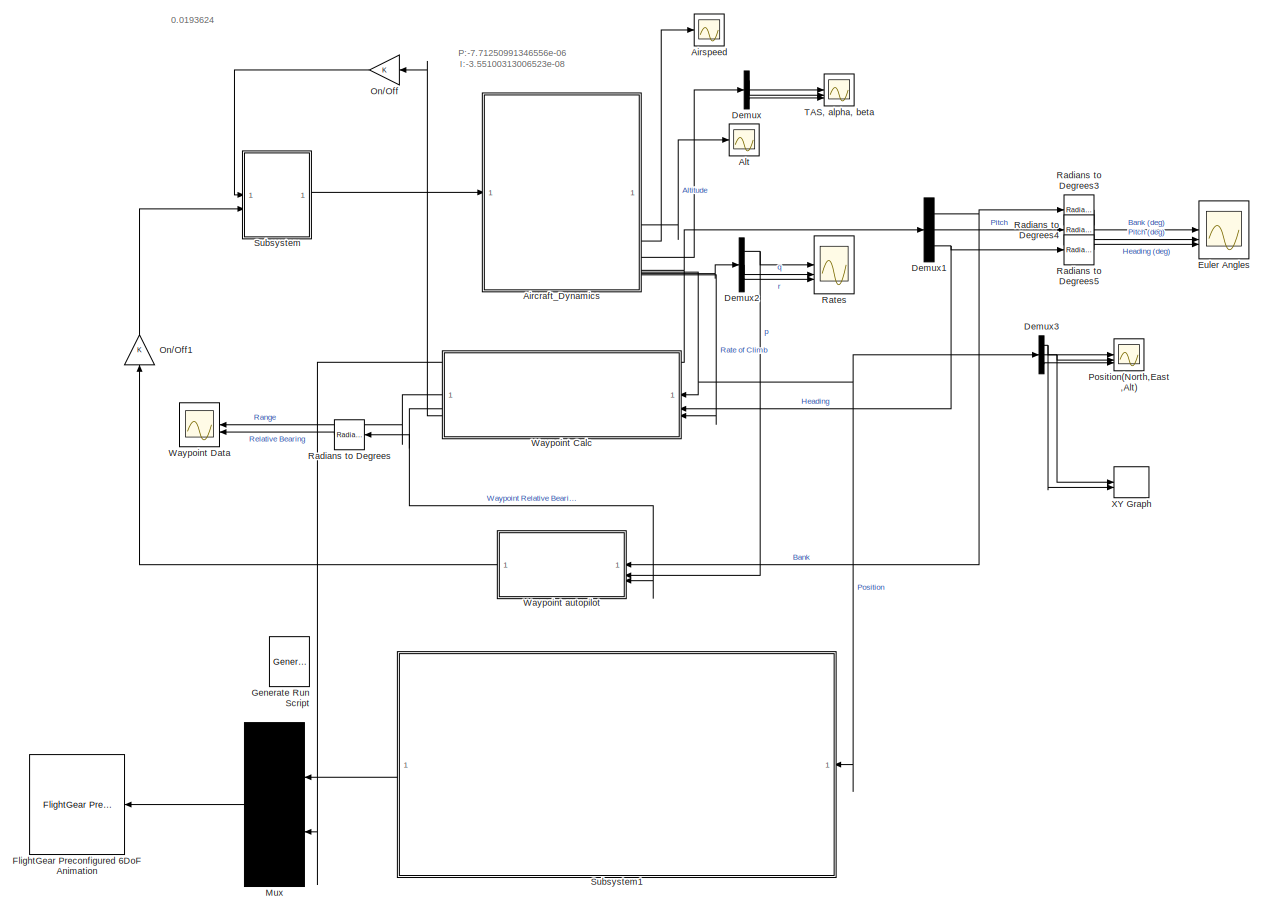
[diagram: root canvas - part 1/1, most of the canvas]
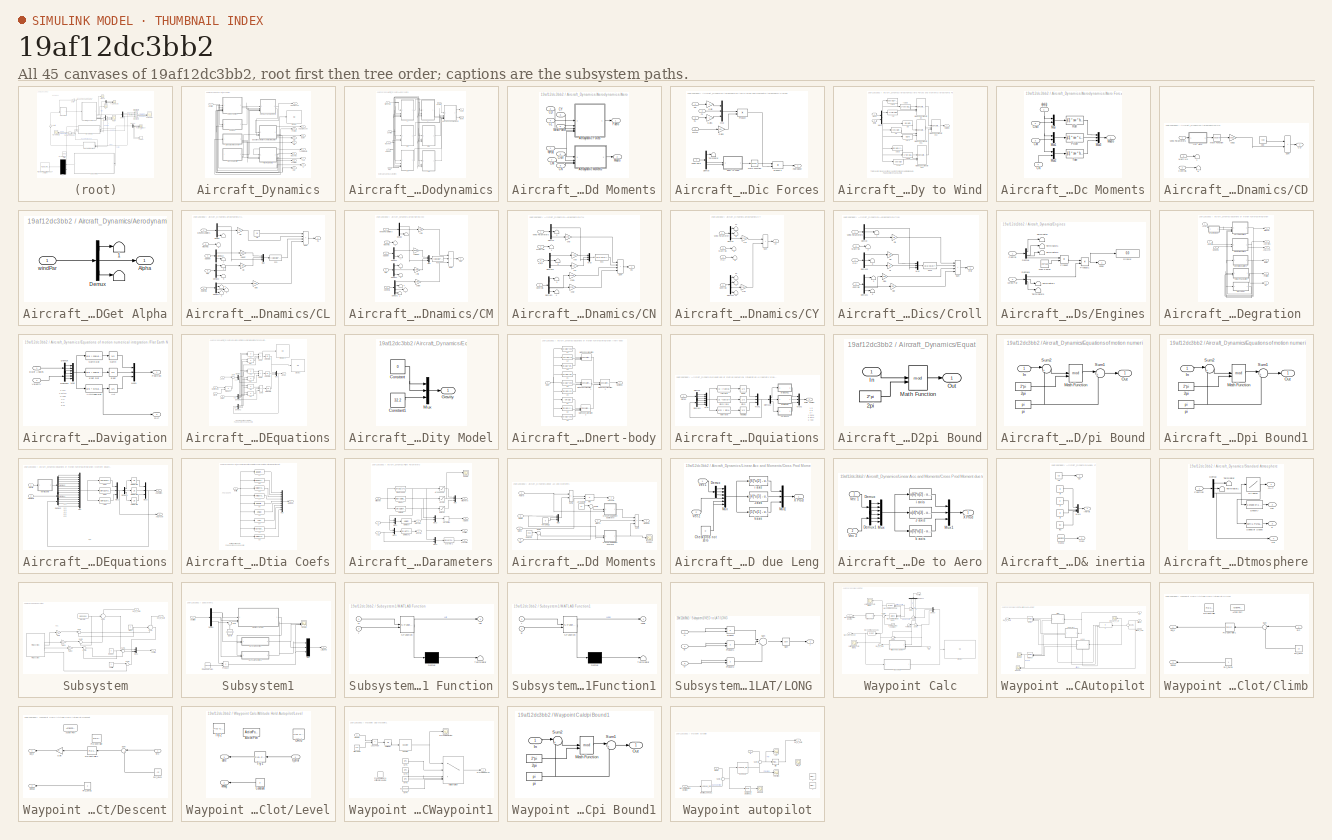
[diagram: thumbnail index - all 45 canvases of the model, root first then tree order]
MODEL slx_19af12dc3bb2
KIND model
CONFIG AbsTol = auto
CONFIG EnableMultiTasking = on
CONFIG FixedStep = .01
CONFIG MaxStep = .004
CONFIG MinStep = auto
CONFIG RelTol = 1e-5
CONFIG SampleTimeConstraint = Unconstrained
CONFIG SolverName = ode45
CONFIG StartTime = 0.0
CONFIG StopTime = 500
BLOCK [SubSystem] Aircraft_Dynamics
BLOCK [SubSystem] Aircraft_Dynamics/Aerodynamics
BLOCK [SubSystem] Aircraft_Dynamics/Aerodynamics/Aero Forces and Moments
BLOCK [SubSystem] Aircraft_Dynamics/Aerodynamics/Aero Forces and Moments/Aerodynamic Forces
BLOCK [SubSystem] Aircraft_Dynamics/Aerodynamics/Aero Forces and Moments/Aerodynamic Forces/Body to Wind
BLOCK [Fcn] Aircraft_Dynamics/Aerodynamics/Aero Forces and Moments/Aerodynamic Forces/Body to Wind/-ca sb
  Expr = -1 * cos(u[1]) * sin(u[2])
BLOCK [Fcn] Aircraft_Dynamics/Aerodynamics/Aero Forces and Moments/Aerodynamic Forces/Body to Wind/-sa
  Expr = -1 * sin(u[1])
BLOCK [Fcn] Aircraft_Dynamics/Aerodynamics/Aero Forces and Moments/Aerodynamic Forces/Body to Wind/-sa sb
  Expr = -1 * sin(u[1])  * sin(u[2])
BLOCK [Inport] Aircraft_Dynamics/Aerodynamics/Aero Forces and Moments/Aerodynamic Forces/Body to Wind/Alpha
BLOCK [Inport] Aircraft_Dynamics/Aerodynamics/Aero Forces and Moments/Aerodynamic Forces/Body to Wind/Beta
  Port = 2
BLOCK [Fcn] Aircraft_Dynamics/Aerodynamics/Aero Forces and Moments/Aerodynamic Forces/Body to Wind/Fcn8
  Expr = cos(u[1])
BLOCK [Concatenate] Aircraft_Dynamics/Aerodynamics/Aero Forces and Moments/Aerodynamic Forces/Body to Wind/Matrix Concatenation
  Mode = Multidimensional array
  NumInputs = 3
BLOCK [Concatenate] Aircraft_Dynamics/Aerodynamics/Aero Forces and Moments/Aerodynamic Forces/Body to Wind/Matrix Concatenation1
  Mode = Multidimensional array
  NumInputs = 3
BLOCK [Concatenate] Aircraft_Dynamics/Aerodynamics/Aero Forces and Moments/Aerodynamic Forces/Body to Wind/Matrix Concatenation2
  ConcatenateDimension = 2
  Mode = Multidimensional array
  NumInputs = 3
BLOCK [Concatenate] Aircraft_Dynamics/Aerodynamics/Aero Forces and Moments/Aerodynamic Forces/Body to Wind/Matrix Concatenation3
  Mode = Multidimensional array
  NumInputs = 3
BLOCK [Mux] Aircraft_Dynamics/Aerodynamics/Aero Forces and Moments/Aerodynamic Forces/Body to Wind/Mux1
  DisplayOption = bar
  Inputs = 2
BLOCK [Outport] Aircraft_Dynamics/Aerodynamics/Aero Forces and Moments/Aerodynamic Forces/Body to Wind/Smatrix
BLOCK [Fcn] Aircraft_Dynamics/Aerodynamics/Aero Forces and Moments/Aerodynamic Forces/Body to Wind/ca cb
  Expr = cos(u[1]) *  cos(u[2])
BLOCK [Fcn] Aircraft_Dynamics/Aerodynamics/Aero Forces and Moments/Aerodynamic Forces/Body to Wind/cb
  Expr = cos(u[2])
BLOCK [Fcn] Aircraft_Dynamics/Aerodynamics/Aero Forces and Moments/Aerodynamic Forces/Body to Wind/sa cb
  Expr = sin(u[1]) * cos(u[2])
BLOCK [Fcn] Aircraft_Dynamics/Aerodynamics/Aero Forces and Moments/Aerodynamic Forces/Body to Wind/sb
  Expr = sin(u[2])
BLOCK [Fcn] Aircraft_Dynamics/Aerodynamics/Aero Forces and Moments/Aerodynamic Forces/Body to Wind/zero
  Expr = u[1] * 0
BLOCK [Inport] Aircraft_Dynamics/Aerodynamics/Aero Forces and Moments/Aerodynamic Forces/CD
BLOCK [Inport] Aircraft_Dynamics/Aerodynamics/Aero Forces and Moments/Aerodynamic Forces/CL
  Port = 3
BLOCK [Inport] Aircraft_Dynamics/Aerodynamics/Aero Forces and Moments/Aerodynamic Forces/CY
  Port = 2
BLOCK [Demux] Aircraft_Dynamics/Aerodynamics/Aero Forces and Moments/Aerodynamic Forces/Demux
  DisplayOption = none
  Outputs = 3
BLOCK [Outport] Aircraft_Dynamics/Aerodynamics/Aero Forces and Moments/Aerodynamic Forces/FaeroBody
BLOCK [Gain] Aircraft_Dynamics/Aerodynamics/Aero Forces and Moments/Aerodynamic Forces/Gain
  Gain = -1
  OutDataTypeStr = Inherit: Same as input
  ParamDataTypeStr = Inherit: Same as input
  SaturateOnIntegerOverflow = on
BLOCK [Gain] Aircraft_Dynamics/Aerodynamics/Aero Forces and Moments/Aerodynamic Forces/Gain1
  Gain = -1
  OutDataTypeStr = Inherit: Same as input
  ParamDataTypeStr = Inherit: Same as input
  SaturateOnIntegerOverflow = on
BLOCK [Gain] Aircraft_Dynamics/Aerodynamics/Aero Forces and Moments/Aerodynamic Forces/Gain2
  Gain = sw
  OutDataTypeStr = Inherit: Same as input
  ParamDataTypeStr = Inherit: Same as input
  SaturateOnIntegerOverflow = on
BLOCK [Math] Aircraft_Dynamics/Aerodynamics/Aero Forces and Moments/Aerodynamic Forces/Math Function
  Operator = transpose
  SignedPower = on
BLOCK [Mux] Aircraft_Dynamics/Aerodynamics/Aero Forces and Moments/Aerodynamic Forces/Mux
  DisplayOption = bar
  Inputs = 3
BLOCK [Product] Aircraft_Dynamics/Aerodynamics/Aero Forces and Moments/Aerodynamic Forces/Product
  OutDataTypeStr = Inherit: Same as first input
  SaturateOnIntegerOverflow = on
BLOCK [Product] Aircraft_Dynamics/Aerodynamics/Aero Forces and Moments/Aerodynamic Forces/Product1
  Multiplication = Matrix(*)
  OutDataTypeStr = Inherit: Same as first input
  SaturateOnIntegerOverflow = on
BLOCK [Terminator] Aircraft_Dynamics/Aerodynamics/Aero Forces and Moments/Aerodynamic Forces/Terminator
BLOCK [Inport] Aircraft_Dynamics/Aerodynamics/Aero Forces and Moments/Aerodynamic Forces/Wind Para
  Port = 4
BLOCK [Inport] Aircraft_Dynamics/Aerodynamics/Aero Forces and Moments/Aerodynamic Forces/dyn(q)
  Port = 5
BLOCK [SubSystem] Aircraft_Dynamics/Aerodynamics/Aero Forces and Moments/Aerodynamic Moments
BLOCK [Inport] Aircraft_Dynamics/Aerodynamics/Aero Forces and Moments/Aerodynamic Moments/CM
  Port = 3
BLOCK [Inport] Aircraft_Dynamics/Aerodynamics/Aero Forces and Moments/Aerodynamic Moments/CN
  NameLocation = right
  Port = 4
BLOCK [Inport] Aircraft_Dynamics/Aerodynamics/Aero Forces and Moments/Aerodynamic Moments/Croll
  Port = 2
BLOCK [Outport] Aircraft_Dynamics/Aerodynamics/Aero Forces and Moments/Aerodynamic Moments/Maero
BLOCK [Mux] Aircraft_Dynamics/Aerodynamics/Aero Forces and Moments/Aerodynamic Moments/Mux
  DisplayOption = bar
  Inputs = 2
BLOCK [Mux] Aircraft_Dynamics/Aerodynamics/Aero Forces and Moments/Aerodynamic Moments/Mux1
  DisplayOption = bar
  Inputs = 2
BLOCK [Mux] Aircraft_Dynamics/Aerodynamics/Aero Forces and Moments/Aerodynamic Moments/Mux2
  DisplayOption = bar
  Inputs = 2
BLOCK [Mux] Aircraft_Dynamics/Aerodynamics/Aero Forces and Moments/Aerodynamic Moments/Mux3
  DisplayOption = bar
  Inputs = 3
BLOCK [Fcn] Aircraft_Dynamics/Aerodynamics/Aero Forces and Moments/Aerodynamic Moments/Pitch
  Expr = u[1] * sw * cbar * u[2]
BLOCK [Fcn] Aircraft_Dynamics/Aerodynamics/Aero Forces and Moments/Aerodynamic Moments/Roll
  Expr = u[1] * sw * b * u[2]
BLOCK [Fcn] Aircraft_Dynamics/Aerodynamics/Aero Forces and Moments/Aerodynamic Moments/Yaw
  Expr = u[1] * sw * b * u[2]
BLOCK [Inport] Aircraft_Dynamics/Aerodynamics/Aero Forces and Moments/Aerodynamic Moments/dyn(q)
  NameLocation = right
BLOCK [Inport] Aircraft_Dynamics/Aerodynamics/Aero Forces and Moments/CD
  Port = 2
BLOCK [Inport] Aircraft_Dynamics/Aerodynamics/Aero Forces and Moments/CL
  Port = 4
BLOCK [Inport] Aircraft_Dynamics/Aerodynamics/Aero Forces and Moments/CM
  Port = 7
BLOCK [Inport] Aircraft_Dynamics/Aerodynamics/Aero Forces and Moments/CN
  Port = 8
BLOCK [Inport] Aircraft_Dynamics/Aerodynamics/Aero Forces and Moments/CY
  Port = 3
BLOCK [Inport] Aircraft_Dynamics/Aerodynamics/Aero Forces and Moments/Croll
  Port = 6
BLOCK [Outport] Aircraft_Dynamics/Aerodynamics/Aero Forces and Moments/Faero
BLOCK [Outport] Aircraft_Dynamics/Aerodynamics/Aero Forces and Moments/Maero
  Port = 2
BLOCK [Inport] Aircraft_Dynamics/Aerodynamics/Aero Forces and Moments/Wind Para
  Port = 5
BLOCK [Inport] Aircraft_Dynamics/Aerodynamics/Aero Forces and Moments/dyn(q)
BLOCK [SubSystem] Aircraft_Dynamics/Aerodynamics/CD
BLOCK [Terminator] Aircraft_Dynamics/Aerodynamics/CD/   1
BLOCK [Terminator] Aircraft_Dynamics/Aerodynamics/CD/   6
BLOCK [Outport] Aircraft_Dynamics/Aerodynamics/CD/CD
BLOCK [Inport] Aircraft_Dynamics/Aerodynamics/CD/Controls
  Port = 2
BLOCK [SubSystem] Aircraft_Dynamics/Aerodynamics/CD/Get Alpha
BLOCK [Terminator] Aircraft_Dynamics/Aerodynamics/CD/Get Alpha/   
BLOCK [Terminator] Aircraft_Dynamics/Aerodynamics/CD/Get Alpha/   1
BLOCK [Outport] Aircraft_Dynamics/Aerodynamics/CD/Get Alpha/Alpha
BLOCK [Demux] Aircraft_Dynamics/Aerodynamics/CD/Get Alpha/Demux
  DisplayOption = none
  Outputs = 3
BLOCK [Inport] Aircraft_Dynamics/Aerodynamics/CD/Get Alpha/windPar
BLOCK [Inport] Aircraft_Dynamics/Aerodynamics/CD/Mach No.
  Port = 3
BLOCK [Math] Aircraft_Dynamics/Aerodynamics/CD/Math Function
  Operator = square
  SignedPower = on
BLOCK [Sum] Aircraft_Dynamics/Aerodynamics/CD/Sum
  IconShape = rectangular
  SaturateOnIntegerOverflow = on
BLOCK [Inport] Aircraft_Dynamics/Aerodynamics/CD/Wind Parameters
BLOCK [Gain] Aircraft_Dynamics/Aerodynamics/CD/cda2
  Gain = cda2
  OutDataTypeStr = Inherit: Same as input
  ParamDataTypeStr = Inherit: Same as input
  SaturateOnIntegerOverflow = on
BLOCK [Constant] Aircraft_Dynamics/Aerodynamics/CD/cdo
  Value = cdo
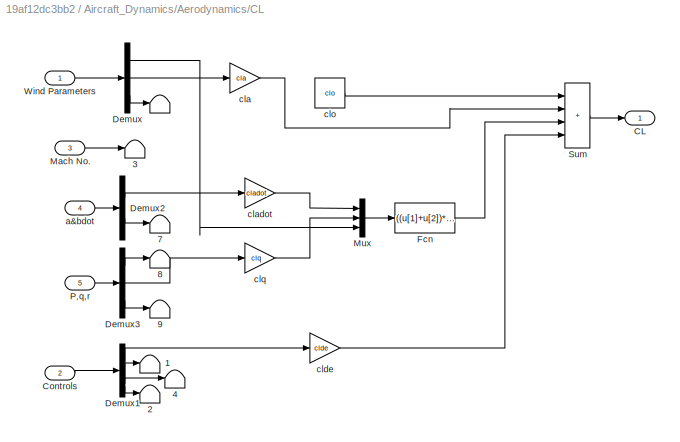
BLOCK [SubSystem] Aircraft_Dynamics/Aerodynamics/CL
BLOCK [Terminator] Aircraft_Dynamics/Aerodynamics/CL/   
BLOCK [Terminator] Aircraft_Dynamics/Aerodynamics/CL/   1
BLOCK [Terminator] Aircraft_Dynamics/Aerodynamics/CL/   2
BLOCK [Terminator] Aircraft_Dynamics/Aerodynamics/CL/   3
BLOCK [Terminator] Aircraft_Dynamics/Aerodynamics/CL/   4
BLOCK [Terminator] Aircraft_Dynamics/Aerodynamics/CL/   7
BLOCK [Terminator] Aircraft_Dynamics/Aerodynamics/CL/   8
BLOCK [Terminator] Aircraft_Dynamics/Aerodynamics/CL/   9
BLOCK [Outport] Aircraft_Dynamics/Aerodynamics/CL/CL
BLOCK [Inport] Aircraft_Dynamics/Aerodynamics/CL/Controls
  Port = 2
BLOCK [Demux] Aircraft_Dynamics/Aerodynamics/CL/Demux
  DisplayOption = none
  Outputs = 3
BLOCK [Demux] Aircraft_Dynamics/Aerodynamics/CL/Demux1
  DisplayOption = none
BLOCK [Demux] Aircraft_Dynamics/Aerodynamics/CL/Demux2
  DisplayOption = none
  Outputs = 2
BLOCK [Demux] Aircraft_Dynamics/Aerodynamics/CL/Demux3
  DisplayOption = none
  Outputs = 3
BLOCK [Fcn] Aircraft_Dynamics/Aerodynamics/CL/Fcn
  Expr = ((u[1]+u[2])*cbar)/(2*u[3])
BLOCK [Inport] Aircraft_Dynamics/Aerodynamics/CL/Mach No.
  Port = 3
BLOCK [Mux] Aircraft_Dynamics/Aerodynamics/CL/Mux
  DisplayOption = bar
  Inputs = 3
BLOCK [Inport] Aircraft_Dynamics/Aerodynamics/CL/P,q,r
  Port = 5
BLOCK [Sum] Aircraft_Dynamics/Aerodynamics/CL/Sum
  IconShape = rectangular
  Inputs = ++++
  SaturateOnIntegerOverflow = on
BLOCK [Inport] Aircraft_Dynamics/Aerodynamics/CL/Wind Parameters
BLOCK [Inport] Aircraft_Dynamics/Aerodynamics/CL/a&bdot
  Port = 4
BLOCK [Gain] Aircraft_Dynamics/Aerodynamics/CL/cla
  Gain = cla
  OutDataTypeStr = Inherit: Same as input
  ParamDataTypeStr = Inherit: Same as input
  SaturateOnIntegerOverflow = on
BLOCK [Gain] Aircraft_Dynamics/Aerodynamics/CL/cladot
  Gain = cladot
  OutDataTypeStr = Inherit: Same as input
  ParamDataTypeStr = Inherit: Same as input
  SaturateOnIntegerOverflow = on
BLOCK [Gain] Aircraft_Dynamics/Aerodynamics/CL/clde
  Gain = clde
  OutDataTypeStr = Inherit: Same as input
  ParamDataTypeStr = Inherit: Same as input
  SaturateOnIntegerOverflow = on
BLOCK [Constant] Aircraft_Dynamics/Aerodynamics/CL/clo
  Value = clo
BLOCK [Gain] Aircraft_Dynamics/Aerodynamics/CL/clq
  Gain = clq
  OutDataTypeStr = Inherit: Same as input
  ParamDataTypeStr = Inherit: Same as input
  SaturateOnIntegerOverflow = on
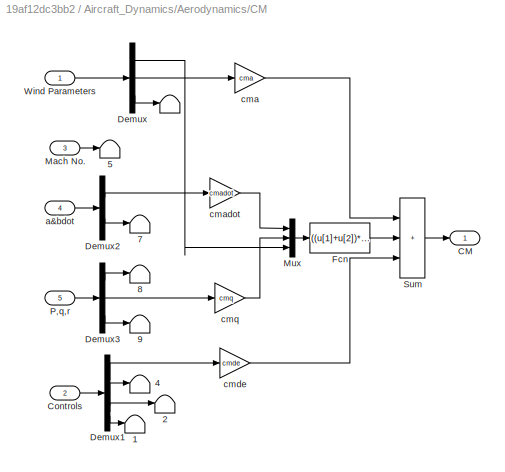
BLOCK [SubSystem] Aircraft_Dynamics/Aerodynamics/CM
BLOCK [Terminator] Aircraft_Dynamics/Aerodynamics/CM/   
BLOCK [Terminator] Aircraft_Dynamics/Aerodynamics/CM/   1
BLOCK [Terminator] Aircraft_Dynamics/Aerodynamics/CM/   2
BLOCK [Terminator] Aircraft_Dynamics/Aerodynamics/CM/   4
BLOCK [Terminator] Aircraft_Dynamics/Aerodynamics/CM/   5
BLOCK [Terminator] Aircraft_Dynamics/Aerodynamics/CM/   7
BLOCK [Terminator] Aircraft_Dynamics/Aerodynamics/CM/   8
BLOCK [Terminator] Aircraft_Dynamics/Aerodynamics/CM/   9
BLOCK [Outport] Aircraft_Dynamics/Aerodynamics/CM/CM
BLOCK [Inport] Aircraft_Dynamics/Aerodynamics/CM/Controls
  Port = 2
BLOCK [Demux] Aircraft_Dynamics/Aerodynamics/CM/Demux
  DisplayOption = none
  Outputs = 3
BLOCK [Demux] Aircraft_Dynamics/Aerodynamics/CM/Demux1
  DisplayOption = none
BLOCK [Demux] Aircraft_Dynamics/Aerodynamics/CM/Demux2
  DisplayOption = none
  Outputs = 2
BLOCK [Demux] Aircraft_Dynamics/Aerodynamics/CM/Demux3
  DisplayOption = none
  Outputs = 3
BLOCK [Fcn] Aircraft_Dynamics/Aerodynamics/CM/Fcn
  Expr = ((u[1]+u[2])*cbar)/(2*u[3])
BLOCK [Inport] Aircraft_Dynamics/Aerodynamics/CM/Mach No.
  Port = 3
BLOCK [Mux] Aircraft_Dynamics/Aerodynamics/CM/Mux
  DisplayOption = bar
  Inputs = 3
BLOCK [Inport] Aircraft_Dynamics/Aerodynamics/CM/P,q,r
  Port = 5
BLOCK [Sum] Aircraft_Dynamics/Aerodynamics/CM/Sum
  IconShape = rectangular
  Inputs = +++
  SaturateOnIntegerOverflow = on
BLOCK [Inport] Aircraft_Dynamics/Aerodynamics/CM/Wind Parameters
BLOCK [Inport] Aircraft_Dynamics/Aerodynamics/CM/a&bdot
  Port = 4
BLOCK [Gain] Aircraft_Dynamics/Aerodynamics/CM/cma
  Gain = cma
  OutDataTypeStr = Inherit: Same as input
  ParamDataTypeStr = Inherit: Same as input
  SaturateOnIntegerOverflow = on
BLOCK [Gain] Aircraft_Dynamics/Aerodynamics/CM/cmadot
  Gain = cmadot
  OutDataTypeStr = Inherit: Same as input
  ParamDataTypeStr = Inherit: Same as input
  SaturateOnIntegerOverflow = on
BLOCK [Gain] Aircraft_Dynamics/Aerodynamics/CM/cmde
  Gain = cmde
  OutDataTypeStr = Inherit: Same as input
  ParamDataTypeStr = Inherit: Same as input
  SaturateOnIntegerOverflow = on
BLOCK [Gain] Aircraft_Dynamics/Aerodynamics/CM/cmq
  Gain = cmq
  OutDataTypeStr = Inherit: Same as input
  ParamDataTypeStr = Inherit: Same as input
  SaturateOnIntegerOverflow = on
BLOCK [SubSystem] Aircraft_Dynamics/Aerodynamics/CN
BLOCK [Terminator] Aircraft_Dynamics/Aerodynamics/CN/   1
BLOCK [Terminator] Aircraft_Dynamics/Aerodynamics/CN/   2
BLOCK [Terminator] Aircraft_Dynamics/Aerodynamics/CN/   3
BLOCK [Terminator] Aircraft_Dynamics/Aerodynamics/CN/   4
BLOCK [Terminator] Aircraft_Dynamics/Aerodynamics/CN/   8
BLOCK [Outport] Aircraft_Dynamics/Aerodynamics/CN/CN
BLOCK [Inport] Aircraft_Dynamics/Aerodynamics/CN/Controls
  Port = 2
BLOCK [Demux] Aircraft_Dynamics/Aerodynamics/CN/Demux
  DisplayOption = none
  Outputs = 3
BLOCK [Demux] Aircraft_Dynamics/Aerodynamics/CN/Demux1
  DisplayOption = none
BLOCK [Demux] Aircraft_Dynamics/Aerodynamics/CN/Demux3
  DisplayOption = none
  Outputs = 3
BLOCK [Fcn] Aircraft_Dynamics/Aerodynamics/CN/Fcn
  Expr = ((u[1]+u[2])*b)/(2*u[3])
BLOCK [Inport] Aircraft_Dynamics/Aerodynamics/CN/Mach No.
  Port = 3
BLOCK [Mux] Aircraft_Dynamics/Aerodynamics/CN/Mux
  DisplayOption = bar
  Inputs = 3
BLOCK [Inport] Aircraft_Dynamics/Aerodynamics/CN/P,q,r
  Port = 4
BLOCK [Sum] Aircraft_Dynamics/Aerodynamics/CN/Sum
  IconShape = rectangular
  Inputs = ++++
  SaturateOnIntegerOverflow = on
BLOCK [Inport] Aircraft_Dynamics/Aerodynamics/CN/Wind Parameters
BLOCK [Gain] Aircraft_Dynamics/Aerodynamics/CN/cnb
  Gain = cnb
  OutDataTypeStr = Inherit: Same as input
  ParamDataTypeStr = Inherit: Same as input
  SaturateOnIntegerOverflow = on
BLOCK [Gain] Aircraft_Dynamics/Aerodynamics/CN/cnda
  Gain = cnda
  OutDataTypeStr = Inherit: Same as input
  ParamDataTypeStr = Inherit: Same as input
  SaturateOnIntegerOverflow = on
BLOCK [Gain] Aircraft_Dynamics/Aerodynamics/CN/cndr
  Gain = cndr
  OutDataTypeStr = Inherit: Same as input
  ParamDataTypeStr = Inherit: Same as input
  SaturateOnIntegerOverflow = on
BLOCK [Gain] Aircraft_Dynamics/Aerodynamics/CN/cnp
  Gain = cnp
  OutDataTypeStr = Inherit: Same as input
  ParamDataTypeStr = Inherit: Same as input
  SaturateOnIntegerOverflow = on
BLOCK [Gain] Aircraft_Dynamics/Aerodynamics/CN/cnr
  Gain = cnr
  OutDataTypeStr = Inherit: Same as input
  ParamDataTypeStr = Inherit: Same as input
  SaturateOnIntegerOverflow = on
BLOCK [SubSystem] Aircraft_Dynamics/Aerodynamics/CY
BLOCK [Terminator] Aircraft_Dynamics/Aerodynamics/CY/   10
BLOCK [Terminator] Aircraft_Dynamics/Aerodynamics/CY/   11
BLOCK [Terminator] Aircraft_Dynamics/Aerodynamics/CY/   12
BLOCK [Terminator] Aircraft_Dynamics/Aerodynamics/CY/   2
BLOCK [Terminator] Aircraft_Dynamics/Aerodynamics/CY/   7
BLOCK [Terminator] Aircraft_Dynamics/Aerodynamics/CY/   8
BLOCK [Terminator] Aircraft_Dynamics/Aerodynamics/CY/   9
BLOCK [Outport] Aircraft_Dynamics/Aerodynamics/CY/CY
BLOCK [Inport] Aircraft_Dynamics/Aerodynamics/CY/Controls
  Port = 2
BLOCK [Demux] Aircraft_Dynamics/Aerodynamics/CY/Demux
  DisplayOption = none
  Outputs = 3
BLOCK [Demux] Aircraft_Dynamics/Aerodynamics/CY/Demux1
  DisplayOption = none
BLOCK [Inport] Aircraft_Dynamics/Aerodynamics/CY/Mach No.
  Port = 3
BLOCK [Inport] Aircraft_Dynamics/Aerodynamics/CY/P,q,r
  Port = 4
BLOCK [Sum] Aircraft_Dynamics/Aerodynamics/CY/Sum
  IconShape = rectangular
  SaturateOnIntegerOverflow = on
BLOCK [Inport] Aircraft_Dynamics/Aerodynamics/CY/Wind Parameters
BLOCK [Gain] Aircraft_Dynamics/Aerodynamics/CY/cyb
  Gain = cyb
  OutDataTypeStr = Inherit: Same as input
  ParamDataTypeStr = Inherit: Same as input
  SaturateOnIntegerOverflow = on
BLOCK [Gain] Aircraft_Dynamics/Aerodynamics/CY/cydr
  Gain = cydr
  OutDataTypeStr = Inherit: Same as input
  ParamDataTypeStr = Inherit: Same as input
  SaturateOnIntegerOverflow = on
BLOCK [Inport] Aircraft_Dynamics/Aerodynamics/Controls
  NameLocation = top
  Port = 3
BLOCK [SubSystem] Aircraft_Dynamics/Aerodynamics/Croll
BLOCK [Terminator] Aircraft_Dynamics/Aerodynamics/Croll/   1
BLOCK [Terminator] Aircraft_Dynamics/Aerodynamics/Croll/   2
BLOCK [Terminator] Aircraft_Dynamics/Aerodynamics/Croll/   3
BLOCK [Terminator] Aircraft_Dynamics/Aerodynamics/Croll/   6
BLOCK [Terminator] Aircraft_Dynamics/Aerodynamics/Croll/   8
BLOCK [Inport] Aircraft_Dynamics/Aerodynamics/Croll/Controls
  Port = 2
BLOCK [Outport] Aircraft_Dynamics/Aerodynamics/Croll/Croll
BLOCK [Demux] Aircraft_Dynamics/Aerodynamics/Croll/Demux
  DisplayOption = none
  Outputs = 3
BLOCK [Demux] Aircraft_Dynamics/Aerodynamics/Croll/Demux1
  DisplayOption = none
BLOCK [Demux] Aircraft_Dynamics/Aerodynamics/Croll/Demux3
  DisplayOption = none
  Outputs = 3
BLOCK [Fcn] Aircraft_Dynamics/Aerodynamics/Croll/Fcn1
  Expr = ((u[1]+u[2])*b)/(2*u[3])
BLOCK [Inport] Aircraft_Dynamics/Aerodynamics/Croll/Mach No.
  Port = 3
BLOCK [Mux] Aircraft_Dynamics/Aerodynamics/Croll/Mux
  DisplayOption = bar
  Inputs = 3
BLOCK [Inport] Aircraft_Dynamics/Aerodynamics/Croll/P,q,r
  Port = 4
BLOCK [Sum] Aircraft_Dynamics/Aerodynamics/Croll/Sum
  IconShape = rectangular
  Inputs = ++++
  SaturateOnIntegerOverflow = on
BLOCK [Inport] Aircraft_Dynamics/Aerodynamics/Croll/Wind Parameters
BLOCK [Gain] Aircraft_Dynamics/Aerodynamics/Croll/clb
  Gain = clb
  OutDataTypeStr = Inherit: Same as input
  ParamDataTypeStr = Inherit: Same as input
  SaturateOnIntegerOverflow = on
BLOCK [Gain] Aircraft_Dynamics/Aerodynamics/Croll/clda
  Gain = clda
  OutDataTypeStr = Inherit: Same as input
  ParamDataTypeStr = Inherit: Same as input
  SaturateOnIntegerOverflow = on
BLOCK [Gain] Aircraft_Dynamics/Aerodynamics/Croll/cldr
  Gain = cldr
  OutDataTypeStr = Inherit: Same as input
  ParamDataTypeStr = Inherit: Same as input
  SaturateOnIntegerOverflow = on
BLOCK [Gain] Aircraft_Dynamics/Aerodynamics/Croll/clp
  Gain = clp
  OutDataTypeStr = Inherit: Same as input
  ParamDataTypeStr = Inherit: Same as input
  SaturateOnIntegerOverflow = on
BLOCK [Gain] Aircraft_Dynamics/Aerodynamics/Croll/clr
  Gain = clr
  OutDataTypeStr = Inherit: Same as input
  ParamDataTypeStr = Inherit: Same as input
  SaturateOnIntegerOverflow = on
BLOCK [Outport] Aircraft_Dynamics/Aerodynamics/Faero
BLOCK [Inport] Aircraft_Dynamics/Aerodynamics/Mach No.
  Port = 4
BLOCK [Outport] Aircraft_Dynamics/Aerodynamics/Maero
  Port = 2
BLOCK [Inport] Aircraft_Dynamics/Aerodynamics/Wind Para
BLOCK [Inport] Aircraft_Dynamics/Aerodynamics/a&bdot
  Port = 5
BLOCK [Inport] Aircraft_Dynamics/Aerodynamics/dyn(q)
  Port = 2
BLOCK [Inport] Aircraft_Dynamics/Aerodynamics/p,q,r
  Port = 6
BLOCK [Outport] Aircraft_Dynamics/Angular Accel
BLOCK [Outport] Aircraft_Dynamics/CAS (Kts)
  Port = 8
BLOCK [Inport] Aircraft_Dynamics/Control
BLOCK [Display] Aircraft_Dynamics/Display
  Decimation = 1
BLOCK [SubSystem] Aircraft_Dynamics/Engines
BLOCK [Inport] Aircraft_Dynamics/Engines/Control
BLOCK [Demux] Aircraft_Dynamics/Engines/Demux
BLOCK [Demux] Aircraft_Dynamics/Engines/Demux1
  Outputs = 3
BLOCK [Display] Aircraft_Dynamics/Engines/Display
  Decimation = 1
BLOCK [Outport] Aircraft_Dynamics/Engines/Feng
BLOCK [Constant] Aircraft_Dynamics/Engines/Max Power
  Value = 200*550
BLOCK [Product] Aircraft_Dynamics/Engines/Product
  RndMeth = Zero
BLOCK [Product] Aircraft_Dynamics/Engines/Product1
  Inputs = */
  RndMeth = Zero
BLOCK [Terminator] Aircraft_Dynamics/Engines/Terminator
BLOCK [Terminator] Aircraft_Dynamics/Engines/Terminator1
BLOCK [Terminator] Aircraft_Dynamics/Engines/Terminator2
BLOCK [Terminator] Aircraft_Dynamics/Engines/Terminator3
BLOCK [Terminator] Aircraft_Dynamics/Engines/Terminator4
BLOCK [Inport] Aircraft_Dynamics/Engines/Wind Par
  Port = 2
BLOCK [SubSystem] Aircraft_Dynamics/Equations of motion numerical integration 
BLOCK [Inport] Aircraft_Dynamics/Equations of motion numerical integration /Accel
BLOCK [Outport] Aircraft_Dynamics/Equations of motion numerical integration /Ang Accel
BLOCK [Outport] Aircraft_Dynamics/Equations of motion numerical integration /Ang rates
  Port = 3
BLOCK [Outport] Aircraft_Dynamics/Equations of motion numerical integration /Euler
  Port = 5
BLOCK [SubSystem] Aircraft_Dynamics/Equations of motion numerical integration /Flat Earth Navigation
BLOCK [Integrator] Aircraft_Dynamics/Equations of motion numerical integration /Flat Earth Navigation/Alt
  InitialCondition = initalt
BLOCK [Fcn] Aircraft_Dynamics/Equations of motion numerical integration /Flat Earth Navigation/Alttitude Dot
  Expr = u[4] * sin(u[2]) - u[5] * sin(u[1]) * cos(u[2]) - u[6] * cos(u[1]) * cos(u[2])
BLOCK [Demux] Aircraft_Dynamics/Equations of motion numerical integration /Flat Earth Navigation/Demux
  DisplayOption = none
  Outputs = 3
BLOCK [Demux] Aircraft_Dynamics/Equations of motion numerical integration /Flat Earth Navigation/Demux1
  DisplayOption = none
  Outputs = 3
BLOCK [Integrator] Aircraft_Dynamics/Equations of motion numerical integration /Flat Earth Navigation/East
  InitialCondition = initeast
BLOCK [Fcn] Aircraft_Dynamics/Equations of motion numerical integration /Flat Earth Navigation/East Dot
  Expr = u[4] * cos(u[2])* sin(u[3]) + u[5] * (cos(u[1])*cos(u[3]) + sin(u[1])*sin(u[2])*sin(u[3])) + u[6] * (-sin(u[1])*cos(u[3])+cos(u[1])*sin(u[2])*sin(u[3]))
BLOCK [Inport] Aircraft_Dynamics/Equations of motion numerical integration /Flat Earth Navigation/Euler Angles
BLOCK [Mux] Aircraft_Dynamics/Equations of motion numerical integration /Flat Earth Navigation/Mux
  DisplayOption = bar
  Inputs = 6
BLOCK [Mux] Aircraft_Dynamics/Equations of motion numerical integration /Flat Earth Navigation/Mux1
  DisplayOption = bar
  Inputs = 3
BLOCK [Integrator] Aircraft_Dynamics/Equations of motion numerical integration /Flat Earth Navigation/North
  InitialCondition = initnorth
BLOCK [Fcn] Aircraft_Dynamics/Equations of motion numerical integration /Flat Earth Navigation/North Dot
  Expr = u[4] * cos(u[2]) * cos(u[3]) + u[5]*(-cos(u[1])*sin(u[3])+sin(u[1])*sin(u[2])*sin(u[3]))+u[6]*(sin(u[1])*sin(u[3])+cos(u[1])*sin(u[2])*cos(u[3]))
BLOCK [Outport] Aircraft_Dynamics/Equations of motion numerical integration /Flat Earth Navigation/Position
BLOCK [Outport] Aircraft_Dynamics/Equations of motion numerical integration /Flat Earth Navigation/R//C
  Port = 2
BLOCK [Inport] Aircraft_Dynamics/Equations of motion numerical integration /Flat Earth Navigation/Velocity
  Port = 2
BLOCK [SubSystem] Aircraft_Dynamics/Equations of motion numerical integration /Force Equations
BLOCK [Inport] Aircraft_Dynamics/Equations of motion numerical integration /Force Equations/Accel
BLOCK [Demux] Aircraft_Dynamics/Equations of motion numerical integration /Force Equations/Demux
  DisplayOption = none
  Outputs = 3
BLOCK [Demux] Aircraft_Dynamics/Equations of motion numerical integration /Force Equations/Demux1
  DisplayOption = none
  Outputs = 3
BLOCK [Demux] Aircraft_Dynamics/Equations of motion numerical integration /Force Equations/Demux2
  DisplayOption = none
  Outputs = 3
BLOCK [Display] Aircraft_Dynamics/Equations of motion numerical integration /Force Equations/Display
  Decimation = 1
BLOCK [Display] Aircraft_Dynamics/Equations of motion numerical integration /Force Equations/Display1
  Decimation = 1
BLOCK [Inport] Aircraft_Dynamics/Equations of motion numerical integration /Force Equations/Gravity
  Port = 2
BLOCK [Outport] Aircraft_Dynamics/Equations of motion numerical integration /Force Equations/Lin Vel
BLOCK [Mux] Aircraft_Dynamics/Equations of motion numerical integration /Force Equations/Mux
  DisplayOption = bar
  Inputs = 3
BLOCK [Inport] Aircraft_Dynamics/Equations of motion numerical integration /Force Equations/NEDtoABC
  Port = 4
BLOCK [Product] Aircraft_Dynamics/Equations of motion numerical integration /Force Equations/PV
  OutDataTypeStr = Inherit: Same as first input
  SaturateOnIntegerOverflow = on
BLOCK [Product] Aircraft_Dynamics/Equations of motion numerical integration /Force Equations/PW
  OutDataTypeStr = Inherit: Same as first input
  SaturateOnIntegerOverflow = on
BLOCK [Product] Aircraft_Dynamics/Equations of motion numerical integration /Force Equations/Product
  Multiplication = Matrix(*)
  OutDataTypeStr = Inherit: Same as first input
  SaturateOnIntegerOverflow = on
BLOCK [Product] Aircraft_Dynamics/Equations of motion numerical integration /Force Equations/QU
  OutDataTypeStr = Inherit: Same as first input
  SaturateOnIntegerOverflow = on
BLOCK [Product] Aircraft_Dynamics/Equations of motion numerical integration /Force Equations/QW
  OutDataTypeStr = Inherit: Same as first input
  SaturateOnIntegerOverflow = on
BLOCK [Product] Aircraft_Dynamics/Equations of motion numerical integration /Force Equations/RU
  OutDataTypeStr = Inherit: Same as first input
  SaturateOnIntegerOverflow = on
BLOCK [Product] Aircraft_Dynamics/Equations of motion numerical integration /Force Equations/RV
  OutDataTypeStr = Inherit: Same as first input
  SaturateOnIntegerOverflow = on
BLOCK [Inport] Aircraft_Dynamics/Equations of motion numerical integration /Force Equations/Rates
  Port = 3
BLOCK [Sum] Aircraft_Dynamics/Equations of motion numerical integration /Force Equations/Sum
  Inputs = |++
  SaturateOnIntegerOverflow = on
BLOCK [Sum] Aircraft_Dynamics/Equations of motion numerical integration /Force Equations/Sum1
  IconShape = rectangular
  Inputs = +-+
  SaturateOnIntegerOverflow = on
BLOCK [Sum] Aircraft_Dynamics/Equations of motion numerical integration /Force Equations/Sum2
  IconShape = rectangular
  Inputs = -++
  SaturateOnIntegerOverflow = on
BLOCK [Sum] Aircraft_Dynamics/Equations of motion numerical integration /Force Equations/Sum3
  IconShape = rectangular
  Inputs = +-+
  SaturateOnIntegerOverflow = on
BLOCK [Integrator] Aircraft_Dynamics/Equations of motion numerical integration /Force Equations/u integrate
  InitialCondition = initu
BLOCK [Integrator] Aircraft_Dynamics/Equations of motion numerical integration /Force Equations/v integrate
  InitialCondition = initv
BLOCK [Integrator] Aircraft_Dynamics/Equations of motion numerical integration /Force Equations/w integrate
  InitialCondition = initw
BLOCK [SubSystem] Aircraft_Dynamics/Equations of motion numerical integration /Gravity Model
BLOCK [Constant] Aircraft_Dynamics/Equations of motion numerical integration /Gravity Model/Constant
  Value = 0
BLOCK [Constant] Aircraft_Dynamics/Equations of motion numerical integration /Gravity Model/Constant1
  Value = 32.2
BLOCK [Outport] Aircraft_Dynamics/Equations of motion numerical integration /Gravity Model/Gravity
BLOCK [Mux] Aircraft_Dynamics/Equations of motion numerical integration /Gravity Model/Mux
  DisplayOption = bar
  Inputs = 3
BLOCK [SubSystem] Aircraft_Dynamics/Equations of motion numerical integration /Inert-body
BLOCK [Fcn] Aircraft_Dynamics/Equations of motion numerical integration /Inert-body/11
  Expr = cos(u[2])*cos(u[3])
BLOCK [Fcn] Aircraft_Dynamics/Equations of motion numerical integration /Inert-body/12
  Expr = -cos(u[1])*sin(u[3])+sin(u[1])*sin(u[2])*cos(u[3])
BLOCK [Fcn] Aircraft_Dynamics/Equations of motion numerical integration /Inert-body/13
  Expr = sin(u[1])*sin(u[3])+cos(u[1])*sin(u[2])*cos(u[3])
BLOCK [Fcn] Aircraft_Dynamics/Equations of motion numerical integration /Inert-body/21
  Expr = cos(u[2])*sin(u[3])
BLOCK [Fcn] Aircraft_Dynamics/Equations of motion numerical integration /Inert-body/22
  Expr = cos(u[1])*cos(u[3]) + sin(u[1])*sin(u[2])*sin(u[3])
BLOCK [Fcn] Aircraft_Dynamics/Equations of motion numerical integration /Inert-body/23
  Expr = -sin(u[1])*cos(u[3])+cos(u[1])*sin(u[2])*sin(u[3])
BLOCK [Fcn] Aircraft_Dynamics/Equations of motion numerical integration /Inert-body/31
  Expr = -sin(u[2])
BLOCK [Fcn] Aircraft_Dynamics/Equations of motion numerical integration /Inert-body/32
  Expr = sin(u[1]) * cos(u[2])
BLOCK [Fcn] Aircraft_Dynamics/Equations of motion numerical integration /Inert-body/33
  Expr = cos(u[1])*cos(u[2])
BLOCK [Inport] Aircraft_Dynamics/Equations of motion numerical integration /Inert-body/Euler
BLOCK [Concatenate] Aircraft_Dynamics/Equations of motion numerical integration /Inert-body/Matrix Concatenation
  Mode = Multidimensional array
  NumInputs = 3
BLOCK [Concatenate] Aircraft_Dynamics/Equations of motion numerical integration /Inert-body/Matrix Concatenation1
  Mode = Multidimensional array
  NumInputs = 3
BLOCK [Concatenate] Aircraft_Dynamics/Equations of motion numerical integration /Inert-body/Matrix Concatenation2
  Mode = Multidimensional array
  NumInputs = 3
BLOCK [Concatenate] Aircraft_Dynamics/Equations of motion numerical integration /Inert-body/Matrix Concatenation3
  ConcatenateDimension = 2
  Mode = Multidimensional array
  NumInputs = 3
BLOCK [Outport] Aircraft_Dynamics/Equations of motion numerical integration /Inert-body/NEDtoBC
BLOCK [Inport] Aircraft_Dynamics/Equations of motion numerical integration /Inertia
  Port = 2
BLOCK [SubSystem] Aircraft_Dynamics/Equations of motion numerical integration /Kinematic Equiations
BLOCK [SubSystem] Aircraft_Dynamics/Equations of motion numerical integration /Kinematic Equiations/2pi Bound
BLOCK [Constant] Aircraft_Dynamics/Equations of motion numerical integration /Kinematic Equiations/2pi Bound/2pi
  Value = 2*pi
BLOCK [Inport] Aircraft_Dynamics/Equations of motion numerical integration /Kinematic Equiations/2pi Bound/In
BLOCK [Math] Aircraft_Dynamics/Equations of motion numerical integration /Kinematic Equiations/2pi Bound/Math Function
  Operator = mod
  SignedPower = on
BLOCK [Outport] Aircraft_Dynamics/Equations of motion numerical integration /Kinematic Equiations/2pi Bound/Out
BLOCK [Demux] Aircraft_Dynamics/Equations of motion numerical integration /Kinematic Equiations/Demux
  DisplayOption = none
  Outputs = 3
BLOCK [Demux] Aircraft_Dynamics/Equations of motion numerical integration /Kinematic Equiations/Demux1
  DisplayOption = none
  Outputs = 3
BLOCK [Demux] Aircraft_Dynamics/Equations of motion numerical integration /Kinematic Equiations/Demux2
  DisplayOption = none
  Outputs = 3
BLOCK [Outport] Aircraft_Dynamics/Equations of motion numerical integration /Kinematic Equiations/Euler angles
BLOCK [Mux] Aircraft_Dynamics/Equations of motion numerical integration /Kinematic Equiations/Mux
  DisplayOption = bar
  Inputs = 6
BLOCK [Mux] Aircraft_Dynamics/Equations of motion numerical integration /Kinematic Equiations/Mux1
  DisplayOption = bar
  Inputs = 3
BLOCK [Mux] Aircraft_Dynamics/Equations of motion numerical integration /Kinematic Equiations/Mux2
  DisplayOption = bar
  Inputs = 3
BLOCK [Inport] Aircraft_Dynamics/Equations of motion numerical integration /Kinematic Equiations/Rates
BLOCK [Fcn] Aircraft_Dynamics/Equations of motion numerical integration /Kinematic Equiations/Yaw rate
  Expr = (u[2] * sin(u[4]) + u[3] * cos(u[4]))/cos(u[5])
BLOCK [Integrator] Aircraft_Dynamics/Equations of motion numerical integration /Kinematic Equiations/bank
  InitialCondition = initbank
BLOCK [Integrator] Aircraft_Dynamics/Equations of motion numerical integration /Kinematic Equiations/heading
  InitialCondition = inithead
BLOCK [SubSystem] Aircraft_Dynamics/Equations of motion numerical integration /Kinematic Equiations/pi Bound
BLOCK [Constant] Aircraft_Dynamics/Equations of motion numerical integration /Kinematic Equiations/pi Bound/2pi
  Value = 2*pi
BLOCK [Inport] Aircraft_Dynamics/Equations of motion numerical integration /Kinematic Equiations/pi Bound/In
BLOCK [Math] Aircraft_Dynamics/Equations of motion numerical integration /Kinematic Equiations/pi Bound/Math Function
  Operator = mod
  SignedPower = on
BLOCK [Outport] Aircraft_Dynamics/Equations of motion numerical integration /Kinematic Equiations/pi Bound/Out
BLOCK [Sum] Aircraft_Dynamics/Equations of motion numerical integration /Kinematic Equiations/pi Bound/Sum1
  InputSameDT = on
  Inputs = |+-
  OutDataTypeStr = Inherit: Same as first input
  SaturateOnIntegerOverflow = on
BLOCK [Sum] Aircraft_Dynamics/Equations of motion numerical integration /Kinematic Equiations/pi Bound/Sum2
  InputSameDT = on
  Inputs = |++
  OutDataTypeStr = Inherit: Same as first input
  SaturateOnIntegerOverflow = on
BLOCK [Constant] Aircraft_Dynamics/Equations of motion numerical integration /Kinematic Equiations/pi Bound/pi
  Value = pi
BLOCK [SubSystem] Aircraft_Dynamics/Equations of motion numerical integration /Kinematic Equiations/pi Bound1
BLOCK [Constant] Aircraft_Dynamics/Equations of motion numerical integration /Kinematic Equiations/pi Bound1/2pi
  Value = 2*pi
BLOCK [Inport] Aircraft_Dynamics/Equations of motion numerical integration /Kinematic Equiations/pi Bound1/In
BLOCK [Math] Aircraft_Dynamics/Equations of motion numerical integration /Kinematic Equiations/pi Bound1/Math Function
  Operator = mod
  SignedPower = on
BLOCK [Outport] Aircraft_Dynamics/Equations of motion numerical integration /Kinematic Equiations/pi Bound1/Out
BLOCK [Sum] Aircraft_Dynamics/Equations of motion numerical integration /Kinematic Equiations/pi Bound1/Sum1
  InputSameDT = on
  Inputs = |+-
  OutDataTypeStr = Inherit: Same as first input
  SaturateOnIntegerOverflow = on
BLOCK [Sum] Aircraft_Dynamics/Equations of motion numerical integration /Kinematic Equiations/pi Bound1/Sum2
  InputSameDT = on
  Inputs = |++
  OutDataTypeStr = Inherit: Same as first input
  SaturateOnIntegerOverflow = on
BLOCK [Constant] Aircraft_Dynamics/Equations of motion numerical integration /Kinematic Equiations/pi Bound1/pi
  Value = pi
BLOCK [Integrator] Aircraft_Dynamics/Equations of motion numerical integration /Kinematic Equiations/pitch
  InitialCondition = initpitch
BLOCK [Fcn] Aircraft_Dynamics/Equations of motion numerical integration /Kinematic Equiations/pitch rate
  Expr = u[2] *cos(u[4]) - u[3] * sin(u[4])
BLOCK [Fcn] Aircraft_Dynamics/Equations of motion numerical integration /Kinematic Equiations/roll rate
  Expr = u[1] + tan(u[5])*(u[2]*sin(u[4])+u[3]*cos(u[4]))
BLOCK [SubSystem] Aircraft_Dynamics/Equations of motion numerical integration /Moment Equations
BLOCK [Outport] Aircraft_Dynamics/Equations of motion numerical integration /Moment Equations/Ang Accel
  Port = 2
BLOCK [Outport] Aircraft_Dynamics/Equations of motion numerical integration /Moment Equations/Ang Rates
BLOCK [Demux] Aircraft_Dynamics/Equations of motion numerical integration /Moment Equations/Demux1
  DisplayOption = none
  Outputs = 3
BLOCK [Demux] Aircraft_Dynamics/Equations of motion numerical integration /Moment Equations/Demux2
  DisplayOption = none
  Outputs = 9
BLOCK [Demux] Aircraft_Dynamics/Equations of motion numerical integration /Moment Equations/Demux3
  DisplayOption = none
  Outputs = 3
BLOCK [Demux] Aircraft_Dynamics/Equations of motion numerical integration /Moment Equations/Demux4
  DisplayOption = none
  Outputs = 3
BLOCK [Inport] Aircraft_Dynamics/Equations of motion numerical integration /Moment Equations/Inertia
BLOCK [SubSystem] Aircraft_Dynamics/Equations of motion numerical integration /Moment Equations/Inertia Coefs
BLOCK [Outport] Aircraft_Dynamics/Equations of motion numerical integration /Moment Equations/Inertia Coefs/Iner Coef
BLOCK [Inport] Aircraft_Dynamics/Equations of motion numerical integration /Moment Equations/Inertia Coefs/Inertia
BLOCK [Mux] Aircraft_Dynamics/Equations of motion numerical integration /Moment Equations/Inertia Coefs/Mux
  DisplayOption = bar
  Inputs = 9
BLOCK [Fcn] Aircraft_Dynamics/Equations of motion numerical integration /Moment Equations/Inertia Coefs/c1
  Expr = ((u[2]-u[3])*u[3] - u[4]^2)/(u[1]*u[3]-u[4]^2)
BLOCK [Fcn] Aircraft_Dynamics/Equations of motion numerical integration /Moment Equations/Inertia Coefs/c2
  Expr = ((u[1]-u[2]+u[3])*u[4])/(u[1]*u[3]-u[4]^2)
BLOCK [Fcn] Aircraft_Dynamics/Equations of motion numerical integration /Moment Equations/Inertia Coefs/c3
  Expr = u[3]/(u[1]*u[3]-u[4]^2)
BLOCK [Fcn] Aircraft_Dynamics/Equations of motion numerical integration /Moment Equations/Inertia Coefs/c4
  Expr = u[4]/(u[1]*u[3]-u[4]^2)
BLOCK [Fcn] Aircraft_Dynamics/Equations of motion numerical integration /Moment Equations/Inertia Coefs/c5
  Expr = (u[3]-u[1])/u[2]
BLOCK [Fcn] Aircraft_Dynamics/Equations of motion numerical integration /Moment Equations/Inertia Coefs/c6
  Expr = u[4]/u[2]
BLOCK [Fcn] Aircraft_Dynamics/Equations of motion numerical integration /Moment Equations/Inertia Coefs/c7
  Expr = 1/u[2]
BLOCK [Fcn] Aircraft_Dynamics/Equations of motion numerical integration /Moment Equations/Inertia Coefs/c8
  Expr = (u[1]*(u[1]-u[2])+u[4]^2)/(u[1]*u[3]-u[4]^2)
BLOCK [Fcn] Aircraft_Dynamics/Equations of motion numerical integration /Moment Equations/Inertia Coefs/c9
  Expr = u[1]/(u[1]*u[3]-u[4]^2)
BLOCK [Inport] Aircraft_Dynamics/Equations of motion numerical integration /Moment Equations/Moments
  Port = 2
BLOCK [Mux] Aircraft_Dynamics/Equations of motion numerical integration /Moment Equations/Mux
  DisplayOption = bar
  Inputs = 15
BLOCK [Mux] Aircraft_Dynamics/Equations of motion numerical integration /Moment Equations/Mux1
  DisplayOption = bar
  Inputs = 3
BLOCK [Mux] Aircraft_Dynamics/Equations of motion numerical integration /Moment Equations/Mux2
  DisplayOption = bar
  Inputs = 3
BLOCK [Integrator] Aircraft_Dynamics/Equations of motion numerical integration /Moment Equations/p integrate
  InitialCondition = initp
BLOCK [Fcn] Aircraft_Dynamics/Equations of motion numerical integration /Moment Equations/pdot
  Expr = (u[1]*u[15]+u[2]*u[13])*u[14] + u[3]*u[10] + u[4]*u[12]
BLOCK [Integrator] Aircraft_Dynamics/Equations of motion numerical integration /Moment Equations/q integrate
  InitialCondition = initq
BLOCK [Fcn] Aircraft_Dynamics/Equations of motion numerical integration /Moment Equations/qdot
  Expr = u[5]*u[13]*u[15] - u[6]*(u[13]^2-u[15]^2) + u[7] * u[11]
BLOCK [Integrator] Aircraft_Dynamics/Equations of motion numerical integration /Moment Equations/r integrate
  InitialCondition = initr
BLOCK [Fcn] Aircraft_Dynamics/Equations of motion numerical integration /Moment Equations/rdot
  Expr = (u[8]*u[13]-u[2]*u[15]) * u[14] + u[4] * u[10] + u[9] * u[12]
BLOCK [Inport] Aircraft_Dynamics/Equations of motion numerical integration /Moments
  Port = 3
BLOCK [Outport] Aircraft_Dynamics/Equations of motion numerical integration /Position
  Port = 2
BLOCK [Outport] Aircraft_Dynamics/Equations of motion numerical integration /R//C
  Port = 6
BLOCK [Outport] Aircraft_Dynamics/Equations of motion numerical integration /Wind Vel
  Port = 4
BLOCK [Outport] Aircraft_Dynamics/Euler
  Port = 9
BLOCK [SubSystem] Aircraft_Dynamics/Flight Parameters
BLOCK [Outport] Aircraft_Dynamics/Flight Parameters/A&Bdot
  Port = 2
BLOCK [Saturate] Aircraft_Dynamics/Flight Parameters/Airspeed Sat
  LowerLimit = 0
  UpperLimit = 1100
BLOCK [Saturate] Aircraft_Dynamics/Flight Parameters/AoA Sat
  LowerLimit = -0.2
  UpperLimit = 0.3
BLOCK [Saturate] Aircraft_Dynamics/Flight Parameters/Beta Sat
  LowerLimit = -0.4
  UpperLimit = 0.4
BLOCK [Outport] Aircraft_Dynamics/Flight Parameters/CAS(kts)
  Port = 6
BLOCK [Fcn] Aircraft_Dynamics/Flight Parameters/CAS(kts)1
  Expr = u[1] * sqrt(u[2]/2.3769e-3) /1.69
BLOCK [Derivative] Aircraft_Dynamics/Flight Parameters/Derivative
BLOCK [Outport] Aircraft_Dynamics/Flight Parameters/Dyn (q)
  Port = 4
BLOCK [Fcn] Aircraft_Dynamics/Flight Parameters/Get Airspeed
  Expr = sqrt(u[1]^2+u[2]^2+u[3]^2)
BLOCK [Fcn] Aircraft_Dynamics/Flight Parameters/Get AoA
  Expr = atan(u[3]/u[1])
BLOCK [Fcn] Aircraft_Dynamics/Flight Parameters/Get Beta
  Expr = asin(u[2]/sqrt(u[1]^2+u[2]^2+u[3]^2))
BLOCK [Fcn] Aircraft_Dynamics/Flight Parameters/Get Mach
  Expr = u[1]/u[2]
BLOCK [Fcn] Aircraft_Dynamics/Flight Parameters/Get Mach1
  Expr = 0.5 * u[1]^2* u[2]
BLOCK [Outport] Aircraft_Dynamics/Flight Parameters/Mach No.
  Port = 3
BLOCK [Mux] Aircraft_Dynamics/Flight Parameters/Mux
  DisplayOption = bar
  Inputs = 3
BLOCK [Mux] Aircraft_Dynamics/Flight Parameters/Mux1
  DisplayOption = bar
  Inputs = 2
BLOCK [Mux] Aircraft_Dynamics/Flight Parameters/Mux2
  DisplayOption = bar
  Inputs = 2
BLOCK [Mux] Aircraft_Dynamics/Flight Parameters/Mux3
  DisplayOption = bar
  Inputs = 2
BLOCK [Mux] Aircraft_Dynamics/Flight Parameters/Mux4
  DisplayOption = bar
  Inputs = 2
BLOCK [Scope] Aircraft_Dynamics/Flight Parameters/Scope
  Floating = off
  NumInputPorts = 1
  ScopeSpecificationString = Simulink.scopes.TimeScopeBlockCfg('CurrentConfiguration', extmgr.ConfigurationSet(extmgr.Configuration('Core','General UI',true),extmgr.Configuration('Core','Source UI',true),extmgr.Configuration('Sources','WiredSimulink',true,'DataLoggingVariableName','ScopeData4','DataLoggingSaveFormat','StructureWithTime','DataLoggingDecimation','1','DataLoggingDecimateData',true),extmgr.Configuration('Visuals'...<+1608ch>
BLOCK [Outport] Aircraft_Dynamics/Flight Parameters/TAS fps
  Port = 5
BLOCK [Inport] Aircraft_Dynamics/Flight Parameters/Wind Vel
BLOCK [Outport] Aircraft_Dynamics/Flight Parameters/Wing Para
BLOCK [Inport] Aircraft_Dynamics/Flight Parameters/a
  Port = 2
BLOCK [Inport] Aircraft_Dynamics/Flight Parameters/rho
  Port = 3
BLOCK [Outport] Aircraft_Dynamics/Hp
  Port = 2
BLOCK [SubSystem] Aircraft_Dynamics/Linear Acc and Moments
BLOCK [Constant] Aircraft_Dynamics/Linear Acc and Moments/Aero Center
  Value = ac
BLOCK [Inport] Aircraft_Dynamics/Linear Acc and Moments/CG
  Port = 5
BLOCK [SubSystem] Aircraft_Dynamics/Linear Acc and Moments/Cross Prod Moment due Leng
BLOCK [Constant] Aircraft_Dynamics/Linear Acc and Moments/Cross Prod Moment due Leng/Check prob not zero
  Value = 0
BLOCK [Demux] Aircraft_Dynamics/Linear Acc and Moments/Cross Prod Moment due Leng/Demux
  DisplayOption = none
  Outputs = 3
BLOCK [Fcn] Aircraft_Dynamics/Linear Acc and Moments/Cross Prod Moment due Leng/J axis
  Expr = u[4]*u[3] - u[6]*u[1]
BLOCK [Mux] Aircraft_Dynamics/Linear Acc and Moments/Cross Prod Moment due Leng/Mux
  DisplayOption = bar
  Inputs = 6
BLOCK [Mux] Aircraft_Dynamics/Linear Acc and Moments/Cross Prod Moment due Leng/Mux1
  DisplayOption = bar
  Inputs = 3
BLOCK [Inport] Aircraft_Dynamics/Linear Acc and Moments/Cross Prod Moment due Leng/Vec 1
BLOCK [Inport] Aircraft_Dynamics/Linear Acc and Moments/Cross Prod Moment due Leng/Vec 2
  Port = 2
BLOCK [Outport] Aircraft_Dynamics/Linear Acc and Moments/Cross Prod Moment due Leng/X Prod
BLOCK [Fcn] Aircraft_Dynamics/Linear Acc and Moments/Cross Prod Moment due Leng/i axis
  Expr = u[6]*u[2] - u[5]*u[3]
BLOCK [Fcn] Aircraft_Dynamics/Linear Acc and Moments/Cross Prod Moment due Leng/k axis
  Expr = u[5]*u[1] - u[4]*u[2]
BLOCK [SubSystem] Aircraft_Dynamics/Linear Acc and Moments/Cross Prod Moment due to Aero
BLOCK [Demux] Aircraft_Dynamics/Linear Acc and Moments/Cross Prod Moment due to Aero/Demux
  DisplayOption = none
  Outputs = 3
BLOCK [Demux] Aircraft_Dynamics/Linear Acc and Moments/Cross Prod Moment due to Aero/Demux1
  DisplayOption = none
  Outputs = 3
BLOCK [Fcn] Aircraft_Dynamics/Linear Acc and Moments/Cross Prod Moment due to Aero/J axis
  Expr = u[4]*u[3] - u[6]*u[1]
BLOCK [Mux] Aircraft_Dynamics/Linear Acc and Moments/Cross Prod Moment due to Aero/Mux
  DisplayOption = bar
  Inputs = 6
BLOCK [Mux] Aircraft_Dynamics/Linear Acc and Moments/Cross Prod Moment due to Aero/Mux1
  DisplayOption = bar
  Inputs = 3
BLOCK [Inport] Aircraft_Dynamics/Linear Acc and Moments/Cross Prod Moment due to Aero/Vec 1
BLOCK [Inport] Aircraft_Dynamics/Linear Acc and Moments/Cross Prod Moment due to Aero/Vec 2
  Port = 2
BLOCK [Outport] Aircraft_Dynamics/Linear Acc and Moments/Cross Prod Moment due to Aero/X Prod
BLOCK [Fcn] Aircraft_Dynamics/Linear Acc and Moments/Cross Prod Moment due to Aero/i axis
  Expr = u[6]*u[2] - u[5]*u[3]
BLOCK [Fcn] Aircraft_Dynamics/Linear Acc and Moments/Cross Prod Moment due to Aero/k axis
  Expr = u[5]*u[1] - u[4]*u[2]
BLOCK [Constant] Aircraft_Dynamics/Linear Acc and Moments/DngPOS
  Value = eng
BLOCK [Product] Aircraft_Dynamics/Linear Acc and Moments/F//m
  Inputs = */
  OutDataTypeStr = Inherit: Same as first input
  SaturateOnIntegerOverflow = on
BLOCK [Inport] Aircraft_Dynamics/Linear Acc and Moments/Faero
BLOCK [Inport] Aircraft_Dynamics/Linear Acc and Moments/Feng
  Port = 3
BLOCK [Outport] Aircraft_Dynamics/Linear Acc and Moments/Lin Accel
BLOCK [Inport] Aircraft_Dynamics/Linear Acc and Moments/Maero
  Port = 2
BLOCK [Inport] Aircraft_Dynamics/Linear Acc and Moments/Mass
  Port = 4
BLOCK [Outport] Aircraft_Dynamics/Linear Acc and Moments/Moments
  Port = 2
BLOCK [Mux] Aircraft_Dynamics/Linear Acc and Moments/Mux
  DisplayOption = bar
  Inputs = 3
BLOCK [Scope] Aircraft_Dynamics/Linear Acc and Moments/Scope1
  Floating = off
  NumInputPorts = 1
  ScopeSpecificationString = Simulink.scopes.TimeScopeBlockCfg('CurrentConfiguration', extmgr.ConfigurationSet(extmgr.Configuration('Core','General UI',true),extmgr.Configuration('Core','Source UI',true),extmgr.Configuration('Sources','WiredSimulink',true,'DataLoggingVariableName','ScopeData3','DataLoggingSaveFormat','StructureWithTime','DataLoggingDecimation','1','DataLoggingDecimateData',true),extmgr.Configuration('Visuals'...<+1602ch>
BLOCK [Sum] Aircraft_Dynamics/Linear Acc and Moments/Sum1
  IconShape = rectangular
  SaturateOnIntegerOverflow = on
BLOCK [Sum] Aircraft_Dynamics/Linear Acc and Moments/Sum2
  Inputs = |+-
  SaturateOnIntegerOverflow = on
BLOCK [Sum] Aircraft_Dynamics/Linear Acc and Moments/Sum4
  IconShape = rectangular
  Inputs = +++
  SaturateOnIntegerOverflow = on
BLOCK [Sum] Aircraft_Dynamics/Linear Acc and Moments/Sum5
  Inputs = |+-
  SaturateOnIntegerOverflow = on
BLOCK [Constant] Aircraft_Dynamics/Linear Acc and Moments/Thrust Y&Z
  Value = 0
BLOCK [Outport] Aircraft_Dynamics/Linear Accel
  Port = 4
BLOCK [Outport] Aircraft_Dynamics/Mach No.
  Port = 6
BLOCK [SubSystem] Aircraft_Dynamics/Mass, CG & inertia
BLOCK [Outport] Aircraft_Dynamics/Mass, CG & inertia/CG
BLOCK [Outport] Aircraft_Dynamics/Mass, CG & inertia/Inertia
  Port = 2
BLOCK [Mux] Aircraft_Dynamics/Mass, CG & inertia/Mux1
  DisplayOption = bar
BLOCK [Constant] Aircraft_Dynamics/Mass, CG & inertia/cg
  Value = cg
BLOCK [Constant] Aircraft_Dynamics/Mass, CG & inertia/jx
  Value = jx
BLOCK [Constant] Aircraft_Dynamics/Mass, CG & inertia/jxz
  Value = jxz
BLOCK [Constant] Aircraft_Dynamics/Mass, CG & inertia/jy
  Value = jy
BLOCK [Constant] Aircraft_Dynamics/Mass, CG & inertia/jz
  Value = jz
BLOCK [Outport] Aircraft_Dynamics/Mass, CG & inertia/mass
  Port = 3
BLOCK [Constant] Aircraft_Dynamics/Mass, CG & inertia/mass2
  Value = weight/32.2
BLOCK [Outport] Aircraft_Dynamics/Postion
  Port = 10
BLOCK [Outport] Aircraft_Dynamics/R//C
  Port = 12
BLOCK [SubSystem] Aircraft_Dynamics/Standard Atmosphere
BLOCK [Demux] Aircraft_Dynamics/Standard Atmosphere/Demux
  DisplayOption = none
  Outputs = 3
BLOCK [Fcn] Aircraft_Dynamics/Standard Atmosphere/Density
  Expr = 2.3769e-3*(1 - 0.703e-5 * u[1])^4.14
BLOCK [Outport] Aircraft_Dynamics/Standard Atmosphere/Hp
  Port = 4
BLOCK [Outport] Aircraft_Dynamics/Standard Atmosphere/OAT
BLOCK [Lookup] Aircraft_Dynamics/Standard Atmosphere/OATemp
  InputValues = [0 35000 60000]
  Table = [519 390 390]
BLOCK [Inport] Aircraft_Dynamics/Standard Atmosphere/Position
BLOCK [Fcn] Aircraft_Dynamics/Standard Atmosphere/Speed of Sound
  Expr = sqrt(1.4*1716.3*u[1])
BLOCK [Terminator] Aircraft_Dynamics/Standard Atmosphere/Terminator
BLOCK [Terminator] Aircraft_Dynamics/Standard Atmosphere/Terminator1
BLOCK [Outport] Aircraft_Dynamics/Standard Atmosphere/a
  Port = 3
BLOCK [Outport] Aircraft_Dynamics/Standard Atmosphere/rho
  Port = 2
BLOCK [Outport] Aircraft_Dynamics/TAS
  Port = 3
BLOCK [Outport] Aircraft_Dynamics/TAS,alp,beta
  Port = 5
BLOCK [Outport] Aircraft_Dynamics/p,q,r
  Port = 11
BLOCK [Outport] Aircraft_Dynamics/q
  Port = 7
BLOCK [Scope] Airspeed
  Floating = off
  NumInputPorts = 1
  ScopeSpecificationString = Simulink.scopes.TimeScopeBlockCfg('CurrentConfiguration', extmgr.ConfigurationSet(extmgr.Configuration('Core','General UI',true),extmgr.Configuration('Core','Source UI',true),extmgr.Configuration('Sources','WiredSimulink',true,'DataLoggingVariableName','ScopeData2','DataLoggingSaveFormat','StructureWithTime','DataLoggingDecimation','1','DataLoggingDecimateData',true),extmgr.Configuration('Visuals'...<+1806ch>
BLOCK [Scope] Alt
  Floating = off
  NumInputPorts = 1
  ScopeSpecificationString = Simulink.scopes.TimeScopeBlockCfg('CurrentConfiguration', extmgr.ConfigurationSet(extmgr.Configuration('Core','General UI',true),extmgr.Configuration('Core','Source UI',true),extmgr.Configuration('Sources','WiredSimulink',true,'DataLoggingVariableName','ScopeData1','DataLoggingSaveFormat','StructureWithTime','DataLoggingDecimation','1','DataLoggingDecimateData',true),extmgr.Configuration('Visuals'...<+1795ch>
BLOCK [Demux] Demux
  Outputs = 3
BLOCK [Demux] Demux1
  Outputs = 3
BLOCK [Demux] Demux2
  Outputs = 3
BLOCK [Demux] Demux3
  Outputs = 3
BLOCK [Scope] Euler Angles
  Floating = off
  NumInputPorts = 3
  ScopeSpecificationString = Simulink.scopes.TimeScopeBlockCfg('CurrentConfiguration', extmgr.ConfigurationSet(extmgr.Configuration('Core','General UI',true),extmgr.Configuration('Core','Source UI',true),extmgr.Configuration('Sources','WiredSimulink',true,'DataLoggingVariableName','ScopeData9','DataLoggingSaveFormat','StructureWithTime','DataLoggingDecimation','1','DataLoggingDecimateData',true),extmgr.Configuration('Visuals'...<+3231ch>
BLOCK [Reference] FlightGear Preconfigured 6DoF Animation  REF=aerolibfltsims/FlightGear
Preconfigured
6DoF Animation
  SourceBlock = aerolibfltsims/FlightGear\nPreconfigured\n6DoF Animation
  SourceType = FlightGearQuick6DoFAnimation
BLOCK [Reference] Generate Run Script  REF=aerolibfltsims/Generate
Run Script
  SourceBlock = aerolibfltsims/Generate\nRun Script
  SourceType = Generate FlightGear Run Script
BLOCK [Mux] Mux
  DisplayOption = bar
  Inputs = 2
BLOCK [Gain] On//Off
BLOCK [Gain] On//Off1
  NameLocation = left
BLOCK [Scope] Position(North,East,Alt)
  Floating = off
  NumInputPorts = 3
  ScopeSpecificationString = Simulink.scopes.TimeScopeBlockCfg('CurrentConfiguration', extmgr.ConfigurationSet(extmgr.Configuration('Core','General UI',true),extmgr.Configuration('Core','Source UI',true),extmgr.Configuration('Sources','WiredSimulink',true,'DataLoggingVariableName','ScopeData1','DataLoggingSaveFormat','StructureWithTime','DataLoggingDecimation','1','DataLoggingDecimateData',true),extmgr.Configuration('Visuals'...<+3240ch>
BLOCK [Reference] Radians to Degrees  REF=simulink_extras/Transformations/Radians
to Degrees
  SourceBlock = simulink_extras/Transformations/Radians\nto Degrees
  SourceType = RadiansToDegrees
BLOCK [Reference] Radians to Degrees3  REF=simulink_extras/Transformations/Radians
to Degrees
  SourceBlock = simulink_extras/Transformations/Radians\nto Degrees
  SourceType = RadiansToDegrees
BLOCK [Reference] Radians to Degrees4  REF=simulink_extras/Transformations/Radians
to Degrees
  SourceBlock = simulink_extras/Transformations/Radians\nto Degrees
  SourceType = RadiansToDegrees
BLOCK [Reference] Radians to Degrees5  REF=simulink_extras/Transformations/Radians
to Degrees
  SourceBlock = simulink_extras/Transformations/Radians\nto Degrees
  SourceType = RadiansToDegrees
BLOCK [Scope] Rates
  Floating = off
  NumInputPorts = 3
  ScopeSpecificationString = Simulink.scopes.TimeScopeBlockCfg('CurrentConfiguration', extmgr.ConfigurationSet(extmgr.Configuration('Core','General UI',true),extmgr.Configuration('Core','Source UI',true),extmgr.Configuration('Sources','WiredSimulink',true,'DataLoggingVariableName','ScopeData1','DataLoggingSaveFormat','StructureWithTime','DataLoggingDecimation','1','DataLoggingDecimateData',true),extmgr.Configuration('Visuals'...<+3196ch>
BLOCK [SubSystem] Subsystem
BLOCK [Constant] Subsystem/Aileron
  Value = 0
BLOCK [Constant] Subsystem/Elevator
  NameLocation = top
  Value = 0.021934
BLOCK [Gain] Subsystem/Gain
  Gain = -0.1
BLOCK [Gain] Subsystem/Gain1
  Gain = -0.1
BLOCK [Gain] Subsystem/Gain2
  Gain = -0.1
BLOCK [Mux] Subsystem/Mux1
  DisplayOption = bar
BLOCK [Reference] Subsystem/Pilot Joystick  REF=aerolibanimutils/Pilot Joystick
  SourceBlock = aerolibanimutils/Pilot Joystick
  SourceType = PilotJoystick
BLOCK [Constant] Subsystem/Rudder
  Value = 0
BLOCK [Sum] Subsystem/Sum
  Inputs = |-+
BLOCK [Sum] Subsystem/Sum1
  Inputs = |++
BLOCK [Sum] Subsystem/Sum2
  Inputs = -|+|+
BLOCK [Sum] Subsystem/Sum3
  Inputs = |++
BLOCK [Sum] Subsystem/Sum4
  Inputs = -|+|+
BLOCK [Sum] Subsystem/Sum5
  Inputs = |-+
BLOCK [Sum] Subsystem/Sum6
  Inputs = |-+
BLOCK [Constant] Subsystem/Throttle
BLOCK [Outport] Subsystem/controls
BLOCK [Inport] Subsystem/del_a_auto
  Port = 2
BLOCK [Inport] Subsystem/del_e_auto
BLOCK [SubSystem] Subsystem1
BLOCK [Demux] Subsystem1/Demux
  Outputs = 3
BLOCK [Constant] Subsystem1/Earth
  NameLocation = right
  Value = 20925000
BLOCK [Outport] Subsystem1/Lat//Long
BLOCK [SubSystem] Subsystem1/MATLAB Function
  ErrorFcn = Stateflow.Translate.translate
  PermitHierarchicalResolution = ExplicitOnly
  SFBlockType = MATLAB Function
  TreatAsAtomicUnit = on
BLOCK [Demux] Subsystem1/MATLAB Function/ Demux 
  Outputs = 1
BLOCK [S-Function] Subsystem1/MATLAB Function/ SFunction 
  EnableBusSupport = on
  FunctionName = sf_sfun
  PortCounts = [2 2]
  SFcnIsStateOwnerBlock = off
  SFunctionDeploymentMode = off
  Tag = Stateflow S-Function 2
BLOCK [Terminator] Subsystem1/MATLAB Function/ Terminator 
BLOCK [Outport] Subsystem1/MATLAB Function/Lat
BLOCK [Inport] Subsystem1/MATLAB Function/N
BLOCK [Inport] Subsystem1/MATLAB Function/r
  Port = 2
BLOCK [SubSystem] Subsystem1/MATLAB Function1
  ErrorFcn = Stateflow.Translate.translate
  PermitHierarchicalResolution = ExplicitOnly
  SFBlockType = MATLAB Function
  TreatAsAtomicUnit = on
BLOCK [Demux] Subsystem1/MATLAB Function1/ Demux 
  Outputs = 1
BLOCK [S-Function] Subsystem1/MATLAB Function1/ SFunction 
  EnableBusSupport = on
  FunctionName = sf_sfun
  PortCounts = [2 2]
  SFcnIsStateOwnerBlock = off
  SFunctionDeploymentMode = off
  Tag = Stateflow S-Function 1
BLOCK [Terminator] Subsystem1/MATLAB Function1/ Terminator 
BLOCK [Inport] Subsystem1/MATLAB Function1/E
  Port = 2
BLOCK [Outport] Subsystem1/MATLAB Function1/Long
BLOCK [Inport] Subsystem1/MATLAB Function1/r
BLOCK [Mux] Subsystem1/Mux
  DisplayOption = bar
  Inputs = 3
BLOCK [SubSystem] Subsystem1/NED to LAT//LONG 
BLOCK [Inport] Subsystem1/NED to LAT//LONG /D
  Port = 3
BLOCK [Inport] Subsystem1/NED to LAT//LONG /E
  Port = 2
BLOCK [Inport] Subsystem1/NED to LAT//LONG /N
BLOCK [Product] Subsystem1/NED to LAT//LONG /Product
BLOCK [Product] Subsystem1/NED to LAT//LONG /Product1
BLOCK [Product] Subsystem1/NED to LAT//LONG /Product2
BLOCK [Sqrt] Subsystem1/NED to LAT//LONG /Sqrt
BLOCK [Sum] Subsystem1/NED to LAT//LONG /Sum
  Inputs = |+++
BLOCK [Outport] Subsystem1/NED to LAT//LONG /r
BLOCK [Product] Subsystem1/Product
BLOCK [Scope] Subsystem1/Scope
  Floating = off
  NumInputPorts = 3
  ScopeSpecificationString = Simulink.scopes.TimeScopeBlockCfg('CurrentConfiguration', extmgr.ConfigurationSet(extmgr.Configuration('Core','General UI',true),extmgr.Configuration('Core','Source UI',true),extmgr.Configuration('Sources','WiredSimulink',true),extmgr.Configuration('Visuals','Time Domain',true,'SerializedDisplays',{struct('MinYLimReal','-294.89071','MaxYLimReal','1726.10277','YLabelReal','','MinYLimMag',' 0.00000'...<+1501ch>
BLOCK [Sum] Subsystem1/Sum
  Inputs = |++
BLOCK [Constant] Subsystem1/ft - m conversion
  Value = 0.3048
BLOCK [Inport] Subsystem1/position
BLOCK [Scope] TAS, alpha, beta
  Floating = off
  NumInputPorts = 3
  ScopeSpecificationString = Simulink.scopes.TimeScopeBlockCfg('CurrentConfiguration', extmgr.ConfigurationSet(extmgr.Configuration('Core','General UI',true),extmgr.Configuration('Core','Source UI',true),extmgr.Configuration('Sources','WiredSimulink',true,'DataLoggingVariableName','ScopeData5','DataLoggingSaveFormat','StructureWithTime','DataLoggingDecimation','1','DataLoggingDecimateData',true),extmgr.Configuration('Visuals'...<+3224ch>
BLOCK [SubSystem] Waypoint Calc
  NameLocation = top
BLOCK [SubSystem] Waypoint Calc/Altitude Hold Autopilot
BLOCK [SubSystem] Waypoint Calc/Altitude Hold Autopilot/Climb
  NameLocation = top
  TreatAsAtomicUnit = on
BLOCK [ActionPort] Waypoint Calc/Altitude Hold Autopilot/Climb/Action Port
  ActionPortLabel = if(u1 < -100)
BLOCK [Outport] Waypoint Calc/Altitude Hold Autopilot/Climb/Debug
  Port = 2
BLOCK [Reference] Waypoint Calc/Altitude Hold Autopilot/Climb/PID Controller  REF=slpidlib/PID Controller
  SourceBlock = slpidlib/PID Controller
  SourceType = PID 1dof
BLOCK [Reference] Waypoint Calc/Altitude Hold Autopilot/Climb/PID Controller1  REF=slpidlib/PID Controller
  SourceBlock = slpidlib/PID Controller
  SourceType = PID 1dof
BLOCK [Inport] Waypoint Calc/Altitude Hold Autopilot/Climb/R//C
BLOCK [Constant] Waypoint Calc/Altitude Hold Autopilot/Climb/R//C_CMD
  Value = 12
BLOCK [Constant] Waypoint Calc/Altitude Hold Autopilot/Climb/R//C_CMD1
BLOCK [Sum] Waypoint Calc/Altitude Hold Autopilot/Climb/Sum
  Inputs = |+-
BLOCK [Outport] Waypoint Calc/Altitude Hold Autopilot/Climb/del_e
BLOCK [Scope] Waypoint Calc/Altitude Hold Autopilot/Debug
  Floating = off
  NumInputPorts = 1
  ScopeSpecificationString = Simulink.scopes.TimeScopeBlockCfg('CurrentConfiguration', extmgr.ConfigurationSet(extmgr.Configuration('Core','General UI',true),extmgr.Configuration('Core','Source UI',true),extmgr.Configuration('Sources','WiredSimulink',true,'DataLoggingVariableName','ScopeData1'),extmgr.Configuration('Visuals','Time Domain',true,'SerializedDisplays',{struct('MinYLimReal','0.75','MaxYLimReal','3.25','YLabelReal'...<+1456ch>
BLOCK [Scope] Waypoint Calc/Altitude Hold Autopilot/Debug1
  Floating = off
  NumInputPorts = 2
  ScopeSpecificationString = Simulink.scopes.TimeScopeBlockCfg('CurrentConfiguration', extmgr.ConfigurationSet(extmgr.Configuration('Core','General UI',true),extmgr.Configuration('Core','Source UI',true),extmgr.Configuration('Sources','WiredSimulink',true,'DataLoggingVariableName','ScopeData1'),extmgr.Configuration('Visuals','Time Domain',true,'SerializedDisplays',{struct('MinYLimReal','0.75','MaxYLimReal','3.25','YLabelReal'...<+2158ch>
BLOCK [Scope] Waypoint Calc/Altitude Hold Autopilot/Debug_h_err
  Floating = off
  NumInputPorts = 1
  ScopeSpecificationString = Simulink.scopes.TimeScopeBlockCfg('CurrentConfiguration', extmgr.ConfigurationSet(extmgr.Configuration('Core','General UI',true),extmgr.Configuration('Core','Source UI',true),extmgr.Configuration('Sources','WiredSimulink',true,'DataLoggingVariableName','ScopeData1'),extmgr.Configuration('Visuals','Time Domain',true,'SerializedDisplays',{struct('MinYLimReal','-108.10792','MaxYLimReal','13.49107','Y...<+1495ch>
BLOCK [SubSystem] Waypoint Calc/Altitude Hold Autopilot/Descent
  NameLocation = top
  TreatAsAtomicUnit = on
BLOCK [ActionPort] Waypoint Calc/Altitude Hold Autopilot/Descent/Action Port
  ActionPortLabel = elseif(u1 > 100)
BLOCK [Outport] Waypoint Calc/Altitude Hold Autopilot/Descent/Debug
  Port = 2
BLOCK [Gain] Waypoint Calc/Altitude Hold Autopilot/Descent/Gain
BLOCK [Reference] Waypoint Calc/Altitude Hold Autopilot/Descent/PID Controller  REF=slpidlib/PID Controller
  SourceBlock = slpidlib/PID Controller
  SourceType = PID 1dof
BLOCK [Reference] Waypoint Calc/Altitude Hold Autopilot/Descent/PID Controller1  REF=slpidlib/PID Controller
  SourceBlock = slpidlib/PID Controller
  SourceType = PID 1dof
BLOCK [Inport] Waypoint Calc/Altitude Hold Autopilot/Descent/R//C
BLOCK [Constant] Waypoint Calc/Altitude Hold Autopilot/Descent/R//C_CMD
  Value = -12
BLOCK [Constant] Waypoint Calc/Altitude Hold Autopilot/Descent/R//C_CMD1
  Value = 2
BLOCK [Sum] Waypoint Calc/Altitude Hold Autopilot/Descent/Sum
  Inputs = |+-
BLOCK [Outport] Waypoint Calc/Altitude Hold Autopilot/Descent/del_e
BLOCK [If] Waypoint Calc/Altitude Hold Autopilot/If
  ElseIfExpressions = u1 > 100
  IfExpression = u1 < -100
BLOCK [SubSystem] Waypoint Calc/Altitude Hold Autopilot/Level
  NameLocation = top
  TreatAsAtomicUnit = on
BLOCK [ActionPort] Waypoint Calc/Altitude Hold Autopilot/Level/Action Port
  ActionPortLabel = else
BLOCK [Constant] Waypoint Calc/Altitude Hold Autopilot/Level/Constant
  Value = 3
BLOCK [Reference] Waypoint Calc/Altitude Hold Autopilot/Level/ORIG  REF=slpidlib/PID Controller
  SourceBlock = slpidlib/PID Controller
  SourceType = PID 1dof
BLOCK [Reference] Waypoint Calc/Altitude Hold Autopilot/Level/Try 1  REF=slpidlib/PID Controller
  LibrarySourceBlock = simulink/Continuous/PID Controller
  SourceBlock = slpidlib/PID Controller
  SourceType = PID 1dof
BLOCK [Reference] Waypoint Calc/Altitude Hold Autopilot/Level/Try 2  REF=slpidlib/PID Controller
  LibrarySourceBlock = simulink/Continuous/PID Controller
  SourceBlock = slpidlib/PID Controller
  SourceType = PID 1dof
BLOCK [Outport] Waypoint Calc/Altitude Hold Autopilot/Level/debug
  Port = 2
BLOCK [Outport] Waypoint Calc/Altitude Hold Autopilot/Level/dele
BLOCK [Inport] Waypoint Calc/Altitude Hold Autopilot/Level/h_error
BLOCK [Merge] Waypoint Calc/Altitude Hold Autopilot/Merge
  Inputs = 3
BLOCK [Merge] Waypoint Calc/Altitude Hold Autopilot/Merge1
  Inputs = 3
BLOCK [Inport] Waypoint Calc/Altitude Hold Autopilot/R//C
  Port = 3
BLOCK [Sum] Waypoint Calc/Altitude Hold Autopilot/Sum1
  Inputs = +|-
BLOCK [Inport] Waypoint Calc/Altitude Hold Autopilot/altitude
BLOCK [Inport] Waypoint Calc/Altitude Hold Autopilot/altitude_cmd
  Port = 2
BLOCK [Outport] Waypoint Calc/Altitude Hold Autopilot/del_e_auto
BLOCK [Outport] Waypoint Calc/Del_E_auto
  Port = 3
BLOCK [Demux] Waypoint Calc/Demux
  Outputs = 3
BLOCK [Demux] Waypoint Calc/Demux4
  NameLocation = left
  Outputs = 3
BLOCK [Display] Waypoint Calc/Display
  Decimation = 1
  Format = long
BLOCK [Inport] Waypoint Calc/Euler Heading Angle (rad)
  Port = 2
BLOCK [Scope] Waypoint Calc/Lateral distance to target
  Floating = off
  NumInputPorts = 1
  ScopeSpecificationString = Simulink.scopes.TimeScopeBlockCfg('CurrentConfiguration', extmgr.ConfigurationSet(extmgr.Configuration('Core','General UI',true),extmgr.Configuration('Core','Source UI',true),extmgr.Configuration('Sources','WiredSimulink',true,'DataLoggingVariableName','ScopeData2'),extmgr.Configuration('Visuals','Time Domain',true,'SerializedDisplays',{struct('MinYLimReal','-2465.61407','MaxYLimReal','23144.04689...<+1568ch>
BLOCK [Inport] Waypoint Calc/Position
BLOCK [Inport] Waypoint Calc/R//C
  Port = 3
BLOCK [Sum] Waypoint Calc/Sum
  Inputs = -+|
  NameLocation = top
BLOCK [Sum] Waypoint Calc/Sum1
  Inputs = -+|
  NameLocation = top
BLOCK [Sum] Waypoint Calc/Sum2
  Inputs = |+-
  NameLocation = top
BLOCK [Sum] Waypoint Calc/Sum3
  Inputs = -+|
  NameLocation = top
BLOCK [Sum] Waypoint Calc/Sum4
  Inputs = -+|
  NameLocation = top
BLOCK [Terminator] Waypoint Calc/Terminator
BLOCK [Scope] Waypoint Calc/Vertical distance to target1
  Floating = off
  NumInputPorts = 1
  ScopeSpecificationString = Simulink.scopes.TimeScopeBlockCfg('CurrentConfiguration', extmgr.ConfigurationSet(extmgr.Configuration('Core','General UI',true),extmgr.Configuration('Core','Source UI',true),extmgr.Configuration('Sources','WiredSimulink',true,'DataLoggingVariableName','ScopeData3'),extmgr.Configuration('Visuals','Time Domain',true,'SerializedDisplays',{struct('MinYLimReal','-99.95296','MaxYLimReal','560.30837','Y...<+1537ch>
BLOCK [Trigonometry] Waypoint Calc/Waypoint Bearing in Rads
  Operator = atan2
BLOCK [Math] Waypoint Calc/Waypoint Range Calc
  NameLocation = top
  Operator = hypot
BLOCK [Math] Waypoint Calc/Waypoint Range Calc1
  NameLocation = top
  Operator = hypot
BLOCK [Outport] Waypoint Calc/Waypoint Relative Bearing
  Port = 2
BLOCK [SubSystem] Waypoint Calc/Waypoint1
BLOCK [Reference] Waypoint Calc/Waypoint1/Counter  REF=dspswit3/Counter
  SourceBlock = dspswit3/Counter
  SourceType = Counter
BLOCK [RelationalOperator] Waypoint Calc/Waypoint1/Less Than
  InputSameDT = off
  Operator = <
  OutDataTypeStr = boolean
  RndMeth = Simplest
BLOCK [Constant] Waypoint Calc/Waypoint1/Min range
  Value = 100
BLOCK [MultiPortSwitch] Waypoint Calc/Waypoint1/Multiport Switch
  InputSameDT = off
  Inputs = 4
  SaturateOnIntegerOverflow = off
BLOCK [Memory] Waypoint Calc/Waypoint1/Prevent Algebra shit from breaking
BLOCK [Inport] Waypoint Calc/Waypoint1/Range
BLOCK [UnitDelay] Waypoint Calc/Waypoint1/Unit Delay
  HasFrameUpgradeWarning = on
  SampleTime = -1
BLOCK [Constant] Waypoint Calc/Waypoint1/WP1
  Value = WP1
BLOCK [Constant] Waypoint Calc/Waypoint1/WP2
  Value = WP2
BLOCK [Constant] Waypoint Calc/Waypoint1/WP3
  Value = WP3
BLOCK [Constant] Waypoint Calc/Waypoint1/WP4
  Value = [0 100000 5000]
BLOCK [Outport] Waypoint Calc/Waypoint1/Waypoint Coords
BLOCK [Scope] Waypoint Calc/Waypoint1/Waypoint selected
  Floating = off
  NumInputPorts = 1
  ScopeSpecificationString = Simulink.scopes.TimeScopeBlockCfg('CurrentConfiguration', extmgr.ConfigurationSet(extmgr.Configuration('Core','General UI',true),extmgr.Configuration('Core','Source UI',true),extmgr.Configuration('Sources','WiredSimulink',true,'DataLoggingVariableName','ScopeData1'),extmgr.Configuration('Visuals','Time Domain',true,'SerializedDisplays',{struct('MinYLimReal','0.9','MaxYLimReal','1.1','YLabelReal','...<+1456ch>
BLOCK [Outport] Waypoint Calc/Waypoiny Range
BLOCK [SubSystem] Waypoint Calc/pi Bound1
  NameLocation = top
BLOCK [Constant] Waypoint Calc/pi Bound1/2pi
  Value = 2*pi
BLOCK [Inport] Waypoint Calc/pi Bound1/In
BLOCK [Math] Waypoint Calc/pi Bound1/Math Function
  Operator = mod
  SignedPower = on
BLOCK [Outport] Waypoint Calc/pi Bound1/Out
BLOCK [Sum] Waypoint Calc/pi Bound1/Sum1
  InputSameDT = on
  Inputs = |+-
  OutDataTypeStr = Inherit: Same as first input
  SaturateOnIntegerOverflow = on
BLOCK [Sum] Waypoint Calc/pi Bound1/Sum2
  InputSameDT = on
  Inputs = |++
  OutDataTypeStr = Inherit: Same as first input
  SaturateOnIntegerOverflow = on
BLOCK [Constant] Waypoint Calc/pi Bound1/pi
  Value = pi
BLOCK [Scope] Waypoint Data
  Floating = off
  NameLocation = top
  NumInputPorts = 2
  ScopeSpecificationString = Simulink.scopes.TimeScopeBlockCfg('CurrentConfiguration', extmgr.ConfigurationSet(extmgr.Configuration('Core','General UI',true),extmgr.Configuration('Core','Source UI',true),extmgr.Configuration('Sources','WiredSimulink',true,'DataLoggingVariableName','ScopeData2'),extmgr.Configuration('Visuals','Time Domain',true,'SerializedDisplays',{struct('MinYLimReal','-2461.00222','MaxYLimReal','23148.68963...<+2240ch>
BLOCK [SubSystem] Waypoint autopilot
BLOCK [Reference] Waypoint autopilot/1  REF=slpidlib/PID Controller
  LibrarySourceBlock = simulink/Continuous/PID Controller
  SourceBlock = slpidlib/PID Controller
  SourceType = PID 1dof
BLOCK [Reference] Waypoint autopilot/2  REF=slpidlib/PID Controller
  LibrarySourceBlock = simulink/Continuous/PID Controller
  SourceBlock = slpidlib/PID Controller
  SourceType = PID 1dof
BLOCK [Inport] Waypoint autopilot/Bank
BLOCK [Scope] Waypoint autopilot/Bank Err
  Floating = off
  NumInputPorts = 1
  ScopeSpecificationString = Simulink.scopes.TimeScopeBlockCfg('CurrentConfiguration', extmgr.ConfigurationSet(extmgr.Configuration('Core','General UI',true),extmgr.Configuration('Core','Source UI',true),extmgr.Configuration('Sources','WiredSimulink',true,'DataLoggingVariableName','ScopeData1','DataLoggingSaveFormat','StructureWithTime','DataLoggingDecimation','1','DataLoggingDecimateData',true),extmgr.Configuration('Visuals'...<+1792ch>
BLOCK [Lookup_n-D] Waypoint autopilot/Bearing Lookup1
  BreakpointsForDimension1 = bankrange
  BreakpointsForDimension1Spacing = 30
  InputPortMap = u0
  InternalRulePriority = Speed
  NumberOfTableDimensions = 1
  RndMeth = Simplest
  Table = (1.5/pi)*atan(bankrange)
BLOCK [Scope] Waypoint autopilot/Del_a
  Floating = off
  NumInputPorts = 1
  ScopeSpecificationString = Simulink.scopes.TimeScopeBlockCfg('CurrentConfiguration', extmgr.ConfigurationSet(extmgr.Configuration('Core','General UI',true),extmgr.Configuration('Core','Source UI',true),extmgr.Configuration('Sources','WiredSimulink',true,'DataLoggingVariableName','ScopeData1','DataLoggingSaveFormat','StructureWithTime','DataLoggingDecimation','1','DataLoggingDecimateData',true),extmgr.Configuration('Visuals'...<+1851ch>
BLOCK [Reference] Waypoint autopilot/Orig  REF=slpidlib/PID Controller
  LibrarySourceBlock = simulink/Continuous/PID Controller
  NameLocation = top
  SourceBlock = slpidlib/PID Controller
  SourceType = PID 1dof
BLOCK [Scope] Waypoint autopilot/P Desired
  Floating = off
  NumInputPorts = 1
  ScopeSpecificationString = Simulink.scopes.TimeScopeBlockCfg('CurrentConfiguration', extmgr.ConfigurationSet(extmgr.Configuration('Core','General UI',true),extmgr.Configuration('Core','Source UI',true),extmgr.Configuration('Sources','WiredSimulink',true,'DataLoggingVariableName','ScopeData2','DataLoggingSaveFormat','StructureWithTime','DataLoggingDecimation','1','DataLoggingDecimateData',true),extmgr.Configuration('Visuals'...<+1782ch>
BLOCK [Reference] Waypoint autopilot/Radians to Degrees1  REF=simulink_extras/Transformations/Radians
to Degrees
  NameLocation = top
  SourceBlock = simulink_extras/Transformations/Radians\nto Degrees
  SourceType = RadiansToDegrees
BLOCK [Sum] Waypoint autopilot/Sum1
  Inputs = +|-
BLOCK [Sum] Waypoint autopilot/Sum3
  Inputs = +|-
BLOCK [Inport] Waypoint autopilot/Waypoint Relative Bearing
  Port = 3
BLOCK [Outport] Waypoint autopilot/del_a_auto
BLOCK [Inport] Waypoint autopilot/p
  Port = 2
BLOCK [Lookup_n-D] Waypoint autopilot/p Lookup
  BreakpointsForDimension1 = bankrange
  BreakpointsForDimension1Spacing = 30
  InputPortMap = u0
  InternalRulePriority = Speed
  NumberOfTableDimensions = 1
  RndMeth = Simplest
  Table = 0.18*atan(bankrange)
BLOCK [Scope] Waypoint autopilot/perr
  Floating = off
  NumInputPorts = 1
  ScopeSpecificationString = Simulink.scopes.TimeScopeBlockCfg('CurrentConfiguration', extmgr.ConfigurationSet(extmgr.Configuration('Core','General UI',true),extmgr.Configuration('Core','Source UI',true),extmgr.Configuration('Sources','WiredSimulink',true,'DataLoggingVariableName','ScopeData3','DataLoggingSaveFormat','StructureWithTime','DataLoggingDecimation','1','DataLoggingDecimateData',true),extmgr.Configuration('Visuals'...<+1777ch>
BLOCK [Record] XY Graph
  CompatibilityTag = XY
  FileSettingsInternal = {"entries":[{"content":{"excelSettings":{"content":{},"type":"Streamout.ExcelSettings"}},"type":"Streamout.FileSettingStorage","uuid":""}],"packageUris":["http:\/\/schema.mathworks.com\/mf0\/streamout_blocks\/R2020a"],"version":"1.0"}
  Layout = [1 1]
  SignalsInternal = {"entries":[{"content":{"signals":[{"content":{"blockPath":[],"dimensions":[1],"domain":"","lineColor":"#a2142f","plots":[ 1 ],"port":1,"sid":[""],"signalID":1,"signalName":"Demux3:2"},"type":"RecordBlkView.Signal","uuid":""},{"content":{"blockPath":[],"dimensions":[1],"domain":"","lineColor":"#139fff","plots":[ 1 ],"port":2,"sid":[""],"signalID":2,"signalName":"Demux3:1"},"type":"RecordBlkView.Si...<+162ch>
  VisualizationBindings = {"xyplotplugin":{"info":[{"series":[{"bindingParametersList":[{"parameter":"X-Axis","signalID":1,"signalName":"Demux3:2"},{"parameter":"Y-Axis","signalID":2,"signalName":"Demux3:1"}],"seriesID":0}],"subplotID":1}]}}
ANNOTATION (root): 0.0193624
ANNOTATION (root): P:-7.71250991346556e-06 I:-3.55100313006523e-08
ANNOTATION Aircraft_Dynamics/Aerodynamics: Notes: alpha is measured from
ANNOTATION Aircraft_Dynamics/Aerodynamics/Aero Forces and Moments/Aerodynamic Forces/Body to Wind: This transforms any arbitrary vector from body axis to wind axis. Page 63 Stevens and Lewis
ANNOTATION Aircraft_Dynamics/Equations of motion numerical integration /Flat Earth Navigation: 1 roll 2 pitch 3 yaw 4 u 5 v 6 w
ANNOTATION Aircraft_Dynamics/Equations of motion numerical integration /Force Equations: Linear equations of motion Page 81 Stevens and Lewis
ANNOTATION Aircraft_Dynamics/Equations of motion numerical integration /Force Equations: U,V,W
ANNOTATION Aircraft_Dynamics/Equations of motion numerical integration /Force Equations: p,q,r
ANNOTATION Aircraft_Dynamics/Equations of motion numerical integration /Force Equations: x,y,z
ANNOTATION Aircraft_Dynamics/Equations of motion numerical integration /Kinematic Equiations: 1 p 2 q 3 r 4 bank 5 pitch 6 Yaw
ANNOTATION Aircraft_Dynamics/Equations of motion numerical integration /Moment Equations: 1 c1 2 c2 3 c3 4 c4 5 c5 6 c6 7 c7 8 c8 9 c9 10 Croll 11 M 12 N 13 p 14 q 15 r
ANNOTATION Aircraft_Dynamics/Equations of motion numerical integration /Moment Equations: p,q.r
ANNOTATION Aircraft_Dynamics/Equations of motion numerical integration /Moment Equations/Inertia Coefs: Inertia Coefficeents Page 80 Stevens and Lewis
ANNOTATION Aircraft_Dynamics/Equations of motion numerical integration /Moment Equations/Inertia Coefs: Jx,Jy,Jz,Jxz
ANNOTATION Subsystem: 0.01
LINE Aircraft_Dynamics/Aerodynamics/Aero Forces and Moments/Aerodynamic Forces/Body to Wind/-ca sb:1 -> Aircraft_Dynamics/Aerodynamics/Aero Forces and Moments/Aerodynamic Forces/Body to Wind/Matrix Concatenation:2
LINE Aircraft_Dynamics/Aerodynamics/Aero Forces and Moments/Aerodynamic Forces/Body to Wind/-sa sb:1 -> Aircraft_Dynamics/Aerodynamics/Aero Forces and Moments/Aerodynamic Forces/Body to Wind/Matrix Concatenation3:2
LINE Aircraft_Dynamics/Aerodynamics/Aero Forces and Moments/Aerodynamic Forces/Body to Wind/-sa:1 -> Aircraft_Dynamics/Aerodynamics/Aero Forces and Moments/Aerodynamic Forces/Body to Wind/Matrix Concatenation:3
LINE Aircraft_Dynamics/Aerodynamics/Aero Forces and Moments/Aerodynamic Forces/Body to Wind/Alpha:1 -> Aircraft_Dynamics/Aerodynamics/Aero Forces and Moments/Aerodynamic Forces/Body to Wind/Mux1:1
LINE Aircraft_Dynamics/Aerodynamics/Aero Forces and Moments/Aerodynamic Forces/Body to Wind/Beta:1 -> Aircraft_Dynamics/Aerodynamics/Aero Forces and Moments/Aerodynamic Forces/Body to Wind/Mux1:2
LINE Aircraft_Dynamics/Aerodynamics/Aero Forces and Moments/Aerodynamic Forces/Body to Wind/Fcn8:1 -> Aircraft_Dynamics/Aerodynamics/Aero Forces and Moments/Aerodynamic Forces/Body to Wind/Matrix Concatenation3:3
LINE Aircraft_Dynamics/Aerodynamics/Aero Forces and Moments/Aerodynamic Forces/Body to Wind/Matrix Concatenation1:1 -> Aircraft_Dynamics/Aerodynamics/Aero Forces and Moments/Aerodynamic Forces/Body to Wind/Matrix Concatenation2:2
LINE Aircraft_Dynamics/Aerodynamics/Aero Forces and Moments/Aerodynamic Forces/Body to Wind/Matrix Concatenation2:1 -> Aircraft_Dynamics/Aerodynamics/Aero Forces and Moments/Aerodynamic Forces/Body to Wind/Smatrix:1
LINE Aircraft_Dynamics/Aerodynamics/Aero Forces and Moments/Aerodynamic Forces/Body to Wind/Matrix Concatenation3:1 -> Aircraft_Dynamics/Aerodynamics/Aero Forces and Moments/Aerodynamic Forces/Body to Wind/Matrix Concatenation2:3
LINE Aircraft_Dynamics/Aerodynamics/Aero Forces and Moments/Aerodynamic Forces/Body to Wind/Matrix Concatenation:1 -> Aircraft_Dynamics/Aerodynamics/Aero Forces and Moments/Aerodynamic Forces/Body to Wind/Matrix Concatenation2:1
NET Aircraft_Dynamics/Aerodynamics/Aero Forces and Moments/Aerodynamic Forces/Body to Wind/Mux1:1 -> Aircraft_Dynamics/Aerodynamics/Aero Forces and Moments/Aerodynamic Forces/Body to Wind/-ca sb:1, Aircraft_Dynamics/Aerodynamics/Aero Forces and Moments/Aerodynamic Forces/Body to Wind/-sa sb:1, Aircraft_Dynamics/Aerodynamics/Aero Forces and Moments/Aerodynamic Forces/Body to Wind/-sa:1, Aircraft_Dynamics/Aerodynamics/Aero Forces and Moments/Aerodynamic Forces/Body to Wind/Fcn8:1, Aircraft_Dynamics/Aerodynamics/Aero Forces and Moments/Aerodynamic Forces/Body to Wind/ca cb:1, Aircraft_Dynamics/Aerodynamics/Aero Forces and Moments/Aerodynamic Forces/Body to Wind/cb:1, Aircraft_Dynamics/Aerodynamics/Aero Forces and Moments/Aerodynamic Forces/Body to Wind/sa cb:1, Aircraft_Dynamics/Aerodynamics/Aero Forces and Moments/Aerodynamic Forces/Body to Wind/sb:1, Aircraft_Dynamics/Aerodynamics/Aero Forces and Moments/Aerodynamic Forces/Body to Wind/zero:1
LINE Aircraft_Dynamics/Aerodynamics/Aero Forces and Moments/Aerodynamic Forces/Body to Wind/ca cb:1 -> Aircraft_Dynamics/Aerodynamics/Aero Forces and Moments/Aerodynamic Forces/Body to Wind/Matrix Concatenation:1
LINE Aircraft_Dynamics/Aerodynamics/Aero Forces and Moments/Aerodynamic Forces/Body to Wind/cb:1 -> Aircraft_Dynamics/Aerodynamics/Aero Forces and Moments/Aerodynamic Forces/Body to Wind/Matrix Concatenation1:2
LINE Aircraft_Dynamics/Aerodynamics/Aero Forces and Moments/Aerodynamic Forces/Body to Wind/sa cb:1 -> Aircraft_Dynamics/Aerodynamics/Aero Forces and Moments/Aerodynamic Forces/Body to Wind/Matrix Concatenation3:1
LINE Aircraft_Dynamics/Aerodynamics/Aero Forces and Moments/Aerodynamic Forces/Body to Wind/sb:1 -> Aircraft_Dynamics/Aerodynamics/Aero Forces and Moments/Aerodynamic Forces/Body to Wind/Matrix Concatenation1:1
LINE Aircraft_Dynamics/Aerodynamics/Aero Forces and Moments/Aerodynamic Forces/Body to Wind/zero:1 -> Aircraft_Dynamics/Aerodynamics/Aero Forces and Moments/Aerodynamic Forces/Body to Wind/Matrix Concatenation1:3
LINE Aircraft_Dynamics/Aerodynamics/Aero Forces and Moments/Aerodynamic Forces/Body to Wind:1 -> Aircraft_Dynamics/Aerodynamics/Aero Forces and Moments/Aerodynamic Forces/Math Function:1
LINE Aircraft_Dynamics/Aerodynamics/Aero Forces and Moments/Aerodynamic Forces/CD:1 -> Aircraft_Dynamics/Aerodynamics/Aero Forces and Moments/Aerodynamic Forces/Gain:1
LINE Aircraft_Dynamics/Aerodynamics/Aero Forces and Moments/Aerodynamic Forces/CL:1 -> Aircraft_Dynamics/Aerodynamics/Aero Forces and Moments/Aerodynamic Forces/Gain1:1
LINE Aircraft_Dynamics/Aerodynamics/Aero Forces and Moments/Aerodynamic Forces/CY:1 -> Aircraft_Dynamics/Aerodynamics/Aero Forces and Moments/Aerodynamic Forces/Mux:2
LINE Aircraft_Dynamics/Aerodynamics/Aero Forces and Moments/Aerodynamic Forces/Demux:1 -> Aircraft_Dynamics/Aerodynamics/Aero Forces and Moments/Aerodynamic Forces/Terminator:1
LINE Aircraft_Dynamics/Aerodynamics/Aero Forces and Moments/Aerodynamic Forces/Demux:2 -> Aircraft_Dynamics/Aerodynamics/Aero Forces and Moments/Aerodynamic Forces/Body to Wind:1
LINE Aircraft_Dynamics/Aerodynamics/Aero Forces and Moments/Aerodynamic Forces/Demux:3 -> Aircraft_Dynamics/Aerodynamics/Aero Forces and Moments/Aerodynamic Forces/Body to Wind:2
LINE Aircraft_Dynamics/Aerodynamics/Aero Forces and Moments/Aerodynamic Forces/Gain1:1 -> Aircraft_Dynamics/Aerodynamics/Aero Forces and Moments/Aerodynamic Forces/Mux:3
LINE Aircraft_Dynamics/Aerodynamics/Aero Forces and Moments/Aerodynamic Forces/Gain2:1 -> Aircraft_Dynamics/Aerodynamics/Aero Forces and Moments/Aerodynamic Forces/Product:2
LINE Aircraft_Dynamics/Aerodynamics/Aero Forces and Moments/Aerodynamic Forces/Gain:1 -> Aircraft_Dynamics/Aerodynamics/Aero Forces and Moments/Aerodynamic Forces/Mux:1
LINE Aircraft_Dynamics/Aerodynamics/Aero Forces and Moments/Aerodynamic Forces/Math Function:1 -> Aircraft_Dynamics/Aerodynamics/Aero Forces and Moments/Aerodynamic Forces/Product1:1
LINE Aircraft_Dynamics/Aerodynamics/Aero Forces and Moments/Aerodynamic Forces/Mux:1 -> Aircraft_Dynamics/Aerodynamics/Aero Forces and Moments/Aerodynamic Forces/Product:1
LINE Aircraft_Dynamics/Aerodynamics/Aero Forces and Moments/Aerodynamic Forces/Product1:1 -> Aircraft_Dynamics/Aerodynamics/Aero Forces and Moments/Aerodynamic Forces/FaeroBody:1
LINE Aircraft_Dynamics/Aerodynamics/Aero Forces and Moments/Aerodynamic Forces/Product:1 -> Aircraft_Dynamics/Aerodynamics/Aero Forces and Moments/Aerodynamic Forces/Product1:2
LINE Aircraft_Dynamics/Aerodynamics/Aero Forces and Moments/Aerodynamic Forces/Wind Para:1 -> Aircraft_Dynamics/Aerodynamics/Aero Forces and Moments/Aerodynamic Forces/Demux:1
LINE Aircraft_Dynamics/Aerodynamics/Aero Forces and Moments/Aerodynamic Forces/dyn(q):1 -> Aircraft_Dynamics/Aerodynamics/Aero Forces and Moments/Aerodynamic Forces/Gain2:1
LINE Aircraft_Dynamics/Aerodynamics/Aero Forces and Moments/Aerodynamic Forces:1 -> Aircraft_Dynamics/Aerodynamics/Aero Forces and Moments/Faero:1
LINE Aircraft_Dynamics/Aerodynamics/Aero Forces and Moments/Aerodynamic Moments/CM:1 -> Aircraft_Dynamics/Aerodynamics/Aero Forces and Moments/Aerodynamic Moments/Mux1:2
LINE Aircraft_Dynamics/Aerodynamics/Aero Forces and Moments/Aerodynamic Moments/CN:1 -> Aircraft_Dynamics/Aerodynamics/Aero Forces and Moments/Aerodynamic Moments/Mux2:2
LINE Aircraft_Dynamics/Aerodynamics/Aero Forces and Moments/Aerodynamic Moments/Croll:1 -> Aircraft_Dynamics/Aerodynamics/Aero Forces and Moments/Aerodynamic Moments/Mux:2
LINE Aircraft_Dynamics/Aerodynamics/Aero Forces and Moments/Aerodynamic Moments/Mux1:1 -> Aircraft_Dynamics/Aerodynamics/Aero Forces and Moments/Aerodynamic Moments/Pitch:1
LINE Aircraft_Dynamics/Aerodynamics/Aero Forces and Moments/Aerodynamic Moments/Mux2:1 -> Aircraft_Dynamics/Aerodynamics/Aero Forces and Moments/Aerodynamic Moments/Yaw:1
LINE Aircraft_Dynamics/Aerodynamics/Aero Forces and Moments/Aerodynamic Moments/Mux3:1 -> Aircraft_Dynamics/Aerodynamics/Aero Forces and Moments/Aerodynamic Moments/Maero:1
LINE Aircraft_Dynamics/Aerodynamics/Aero Forces and Moments/Aerodynamic Moments/Mux:1 -> Aircraft_Dynamics/Aerodynamics/Aero Forces and Moments/Aerodynamic Moments/Roll:1
LINE Aircraft_Dynamics/Aerodynamics/Aero Forces and Moments/Aerodynamic Moments/Pitch:1 -> Aircraft_Dynamics/Aerodynamics/Aero Forces and Moments/Aerodynamic Moments/Mux3:2
LINE Aircraft_Dynamics/Aerodynamics/Aero Forces and Moments/Aerodynamic Moments/Roll:1 -> Aircraft_Dynamics/Aerodynamics/Aero Forces and Moments/Aerodynamic Moments/Mux3:1
LINE Aircraft_Dynamics/Aerodynamics/Aero Forces and Moments/Aerodynamic Moments/Yaw:1 -> Aircraft_Dynamics/Aerodynamics/Aero Forces and Moments/Aerodynamic Moments/Mux3:3
NET Aircraft_Dynamics/Aerodynamics/Aero Forces and Moments/Aerodynamic Moments/dyn(q):1 -> Aircraft_Dynamics/Aerodynamics/Aero Forces and Moments/Aerodynamic Moments/Mux1:1, Aircraft_Dynamics/Aerodynamics/Aero Forces and Moments/Aerodynamic Moments/Mux2:1, Aircraft_Dynamics/Aerodynamics/Aero Forces and Moments/Aerodynamic Moments/Mux:1
LINE Aircraft_Dynamics/Aerodynamics/Aero Forces and Moments/Aerodynamic Moments:1 -> Aircraft_Dynamics/Aerodynamics/Aero Forces and Moments/Maero:1
LINE Aircraft_Dynamics/Aerodynamics/Aero Forces and Moments/CD:1 -> Aircraft_Dynamics/Aerodynamics/Aero Forces and Moments/Aerodynamic Forces:1
LINE Aircraft_Dynamics/Aerodynamics/Aero Forces and Moments/CL:1 -> Aircraft_Dynamics/Aerodynamics/Aero Forces and Moments/Aerodynamic Forces:3
LINE Aircraft_Dynamics/Aerodynamics/Aero Forces and Moments/CM:1 -> Aircraft_Dynamics/Aerodynamics/Aero Forces and Moments/Aerodynamic Moments:3
LINE Aircraft_Dynamics/Aerodynamics/Aero Forces and Moments/CN:1 -> Aircraft_Dynamics/Aerodynamics/Aero Forces and Moments/Aerodynamic Moments:4
LINE Aircraft_Dynamics/Aerodynamics/Aero Forces and Moments/CY:1 -> Aircraft_Dynamics/Aerodynamics/Aero Forces and Moments/Aerodynamic Forces:2
LINE Aircraft_Dynamics/Aerodynamics/Aero Forces and Moments/Croll:1 -> Aircraft_Dynamics/Aerodynamics/Aero Forces and Moments/Aerodynamic Moments:2
LINE Aircraft_Dynamics/Aerodynamics/Aero Forces and Moments/Wind Para:1 -> Aircraft_Dynamics/Aerodynamics/Aero Forces and Moments/Aerodynamic Forces:4
NET Aircraft_Dynamics/Aerodynamics/Aero Forces and Moments/dyn(q):1 -> Aircraft_Dynamics/Aerodynamics/Aero Forces and Moments/Aerodynamic Forces:5, Aircraft_Dynamics/Aerodynamics/Aero Forces and Moments/Aerodynamic Moments:1
LINE Aircraft_Dynamics/Aerodynamics/Aero Forces and Moments:1 -> Aircraft_Dynamics/Aerodynamics/Faero:1
LINE Aircraft_Dynamics/Aerodynamics/Aero Forces and Moments:2 -> Aircraft_Dynamics/Aerodynamics/Maero:1
LINE Aircraft_Dynamics/Aerodynamics/CD/Controls:1 -> Aircraft_Dynamics/Aerodynamics/CD/   6:1
LINE Aircraft_Dynamics/Aerodynamics/CD/Get Alpha/Demux:1 -> Aircraft_Dynamics/Aerodynamics/CD/Get Alpha/   1:1
LINE Aircraft_Dynamics/Aerodynamics/CD/Get Alpha/Demux:2 -> Aircraft_Dynamics/Aerodynamics/CD/Get Alpha/Alpha:1
LINE Aircraft_Dynamics/Aerodynamics/CD/Get Alpha/Demux:3 -> Aircraft_Dynamics/Aerodynamics/CD/Get Alpha/   :1
LINE Aircraft_Dynamics/Aerodynamics/CD/Get Alpha/windPar:1 -> Aircraft_Dynamics/Aerodynamics/CD/Get Alpha/Demux:1
LINE Aircraft_Dynamics/Aerodynamics/CD/Get Alpha:1 -> Aircraft_Dynamics/Aerodynamics/CD/Math Function:1
LINE Aircraft_Dynamics/Aerodynamics/CD/Mach No.:1 -> Aircraft_Dynamics/Aerodynamics/CD/   1:1
LINE Aircraft_Dynamics/Aerodynamics/CD/Math Function:1 -> Aircraft_Dynamics/Aerodynamics/CD/cda2:1
LINE Aircraft_Dynamics/Aerodynamics/CD/Sum:1 -> Aircraft_Dynamics/Aerodynamics/CD/CD:1
LINE Aircraft_Dynamics/Aerodynamics/CD/Wind Parameters:1 -> Aircraft_Dynamics/Aerodynamics/CD/Get Alpha:1
LINE Aircraft_Dynamics/Aerodynamics/CD/cda2:1 -> Aircraft_Dynamics/Aerodynamics/CD/Sum:2
LINE Aircraft_Dynamics/Aerodynamics/CD/cdo:1 -> Aircraft_Dynamics/Aerodynamics/CD/Sum:1
LINE Aircraft_Dynamics/Aerodynamics/CD:1 -> Aircraft_Dynamics/Aerodynamics/Aero Forces and Moments:2
LINE Aircraft_Dynamics/Aerodynamics/CL/Controls:1 -> Aircraft_Dynamics/Aerodynamics/CL/Demux1:1
LINE Aircraft_Dynamics/Aerodynamics/CL/Demux1:1 -> Aircraft_Dynamics/Aerodynamics/CL/clde:1
LINE Aircraft_Dynamics/Aerodynamics/CL/Demux1:2 -> Aircraft_Dynamics/Aerodynamics/CL/   1:1
LINE Aircraft_Dynamics/Aerodynamics/CL/Demux1:3 -> Aircraft_Dynamics/Aerodynamics/CL/   4:1
LINE Aircraft_Dynamics/Aerodynamics/CL/Demux1:4 -> Aircraft_Dynamics/Aerodynamics/CL/   2:1
LINE Aircraft_Dynamics/Aerodynamics/CL/Demux2:1 -> Aircraft_Dynamics/Aerodynamics/CL/cladot:1
LINE Aircraft_Dynamics/Aerodynamics/CL/Demux2:2 -> Aircraft_Dynamics/Aerodynamics/CL/   7:1
LINE Aircraft_Dynamics/Aerodynamics/CL/Demux3:1 -> Aircraft_Dynamics/Aerodynamics/CL/   8:1
LINE Aircraft_Dynamics/Aerodynamics/CL/Demux3:2 -> Aircraft_Dynamics/Aerodynamics/CL/clq:1
LINE Aircraft_Dynamics/Aerodynamics/CL/Demux3:3 -> Aircraft_Dynamics/Aerodynamics/CL/   9:1
LINE Aircraft_Dynamics/Aerodynamics/CL/Demux:1 -> Aircraft_Dynamics/Aerodynamics/CL/Mux:3
LINE Aircraft_Dynamics/Aerodynamics/CL/Demux:2 -> Aircraft_Dynamics/Aerodynamics/CL/cla:1
LINE Aircraft_Dynamics/Aerodynamics/CL/Demux:3 -> Aircraft_Dynamics/Aerodynamics/CL/   :1
LINE Aircraft_Dynamics/Aerodynamics/CL/Fcn:1 -> Aircraft_Dynamics/Aerodynamics/CL/Sum:3
LINE Aircraft_Dynamics/Aerodynamics/CL/Mach No.:1 -> Aircraft_Dynamics/Aerodynamics/CL/   3:1
LINE Aircraft_Dynamics/Aerodynamics/CL/Mux:1 -> Aircraft_Dynamics/Aerodynamics/CL/Fcn:1
LINE Aircraft_Dynamics/Aerodynamics/CL/P,q,r:1 -> Aircraft_Dynamics/Aerodynamics/CL/Demux3:1
LINE Aircraft_Dynamics/Aerodynamics/CL/Sum:1 -> Aircraft_Dynamics/Aerodynamics/CL/CL:1
LINE Aircraft_Dynamics/Aerodynamics/CL/Wind Parameters:1 -> Aircraft_Dynamics/Aerodynamics/CL/Demux:1
LINE Aircraft_Dynamics/Aerodynamics/CL/a&bdot:1 -> Aircraft_Dynamics/Aerodynamics/CL/Demux2:1
LINE Aircraft_Dynamics/Aerodynamics/CL/cla:1 -> Aircraft_Dynamics/Aerodynamics/CL/Sum:2
LINE Aircraft_Dynamics/Aerodynamics/CL/cladot:1 -> Aircraft_Dynamics/Aerodynamics/CL/Mux:1
LINE Aircraft_Dynamics/Aerodynamics/CL/clde:1 -> Aircraft_Dynamics/Aerodynamics/CL/Sum:4
LINE Aircraft_Dynamics/Aerodynamics/CL/clo:1 -> Aircraft_Dynamics/Aerodynamics/CL/Sum:1
LINE Aircraft_Dynamics/Aerodynamics/CL/clq:1 -> Aircraft_Dynamics/Aerodynamics/CL/Mux:2
LINE Aircraft_Dynamics/Aerodynamics/CL:1 -> Aircraft_Dynamics/Aerodynamics/Aero Forces and Moments:4
LINE Aircraft_Dynamics/Aerodynamics/CM/Controls:1 -> Aircraft_Dynamics/Aerodynamics/CM/Demux1:1
LINE Aircraft_Dynamics/Aerodynamics/CM/Demux1:1 -> Aircraft_Dynamics/Aerodynamics/CM/cmde:1
LINE Aircraft_Dynamics/Aerodynamics/CM/Demux1:2 -> Aircraft_Dynamics/Aerodynamics/CM/   4:1
LINE Aircraft_Dynamics/Aerodynamics/CM/Demux1:3 -> Aircraft_Dynamics/Aerodynamics/CM/   2:1
LINE Aircraft_Dynamics/Aerodynamics/CM/Demux1:4 -> Aircraft_Dynamics/Aerodynamics/CM/   1:1
LINE Aircraft_Dynamics/Aerodynamics/CM/Demux2:1 -> Aircraft_Dynamics/Aerodynamics/CM/cmadot:1
LINE Aircraft_Dynamics/Aerodynamics/CM/Demux2:2 -> Aircraft_Dynamics/Aerodynamics/CM/   7:1
LINE Aircraft_Dynamics/Aerodynamics/CM/Demux3:1 -> Aircraft_Dynamics/Aerodynamics/CM/   8:1
LINE Aircraft_Dynamics/Aerodynamics/CM/Demux3:2 -> Aircraft_Dynamics/Aerodynamics/CM/cmq:1
LINE Aircraft_Dynamics/Aerodynamics/CM/Demux3:3 -> Aircraft_Dynamics/Aerodynamics/CM/   9:1
LINE Aircraft_Dynamics/Aerodynamics/CM/Demux:1 -> Aircraft_Dynamics/Aerodynamics/CM/Mux:3
LINE Aircraft_Dynamics/Aerodynamics/CM/Demux:2 -> Aircraft_Dynamics/Aerodynamics/CM/cma:1
LINE Aircraft_Dynamics/Aerodynamics/CM/Demux:3 -> Aircraft_Dynamics/Aerodynamics/CM/   :1
LINE Aircraft_Dynamics/Aerodynamics/CM/Fcn:1 -> Aircraft_Dynamics/Aerodynamics/CM/Sum:2
LINE Aircraft_Dynamics/Aerodynamics/CM/Mach No.:1 -> Aircraft_Dynamics/Aerodynamics/CM/   5:1
LINE Aircraft_Dynamics/Aerodynamics/CM/Mux:1 -> Aircraft_Dynamics/Aerodynamics/CM/Fcn:1
LINE Aircraft_Dynamics/Aerodynamics/CM/P,q,r:1 -> Aircraft_Dynamics/Aerodynamics/CM/Demux3:1
LINE Aircraft_Dynamics/Aerodynamics/CM/Sum:1 -> Aircraft_Dynamics/Aerodynamics/CM/CM:1
LINE Aircraft_Dynamics/Aerodynamics/CM/Wind Parameters:1 -> Aircraft_Dynamics/Aerodynamics/CM/Demux:1
LINE Aircraft_Dynamics/Aerodynamics/CM/a&bdot:1 -> Aircraft_Dynamics/Aerodynamics/CM/Demux2:1
LINE Aircraft_Dynamics/Aerodynamics/CM/cma:1 -> Aircraft_Dynamics/Aerodynamics/CM/Sum:1
LINE Aircraft_Dynamics/Aerodynamics/CM/cmadot:1 -> Aircraft_Dynamics/Aerodynamics/CM/Mux:1
LINE Aircraft_Dynamics/Aerodynamics/CM/cmde:1 -> Aircraft_Dynamics/Aerodynamics/CM/Sum:3
LINE Aircraft_Dynamics/Aerodynamics/CM/cmq:1 -> Aircraft_Dynamics/Aerodynamics/CM/Mux:2
LINE Aircraft_Dynamics/Aerodynamics/CM:1 -> Aircraft_Dynamics/Aerodynamics/Aero Forces and Moments:7
LINE Aircraft_Dynamics/Aerodynamics/CN/Controls:1 -> Aircraft_Dynamics/Aerodynamics/CN/Demux1:1
LINE Aircraft_Dynamics/Aerodynamics/CN/Demux1:1 -> Aircraft_Dynamics/Aerodynamics/CN/   3:1
LINE Aircraft_Dynamics/Aerodynamics/CN/Demux1:2 -> Aircraft_Dynamics/Aerodynamics/CN/cnda:1
LINE Aircraft_Dynamics/Aerodynamics/CN/Demux1:3 -> Aircraft_Dynamics/Aerodynamics/CN/cndr:1
LINE Aircraft_Dynamics/Aerodynamics/CN/Demux1:4 -> Aircraft_Dynamics/Aerodynamics/CN/   4:1
LINE Aircraft_Dynamics/Aerodynamics/CN/Demux3:1 -> Aircraft_Dynamics/Aerodynamics/CN/cnp:1
LINE Aircraft_Dynamics/Aerodynamics/CN/Demux3:2 -> Aircraft_Dynamics/Aerodynamics/CN/   8:1
LINE Aircraft_Dynamics/Aerodynamics/CN/Demux3:3 -> Aircraft_Dynamics/Aerodynamics/CN/cnr:1
LINE Aircraft_Dynamics/Aerodynamics/CN/Demux:1 -> Aircraft_Dynamics/Aerodynamics/CN/Mux:3
LINE Aircraft_Dynamics/Aerodynamics/CN/Demux:2 -> Aircraft_Dynamics/Aerodynamics/CN/   2:1
LINE Aircraft_Dynamics/Aerodynamics/CN/Demux:3 -> Aircraft_Dynamics/Aerodynamics/CN/cnb:1
LINE Aircraft_Dynamics/Aerodynamics/CN/Fcn:1 -> Aircraft_Dynamics/Aerodynamics/CN/Sum:2
LINE Aircraft_Dynamics/Aerodynamics/CN/Mach No.:1 -> Aircraft_Dynamics/Aerodynamics/CN/   1:1
LINE Aircraft_Dynamics/Aerodynamics/CN/Mux:1 -> Aircraft_Dynamics/Aerodynamics/CN/Fcn:1
LINE Aircraft_Dynamics/Aerodynamics/CN/P,q,r:1 -> Aircraft_Dynamics/Aerodynamics/CN/Demux3:1
LINE Aircraft_Dynamics/Aerodynamics/CN/Sum:1 -> Aircraft_Dynamics/Aerodynamics/CN/CN:1
LINE Aircraft_Dynamics/Aerodynamics/CN/Wind Parameters:1 -> Aircraft_Dynamics/Aerodynamics/CN/Demux:1
LINE Aircraft_Dynamics/Aerodynamics/CN/cnb:1 -> Aircraft_Dynamics/Aerodynamics/CN/Sum:1
LINE Aircraft_Dynamics/Aerodynamics/CN/cnda:1 -> Aircraft_Dynamics/Aerodynamics/CN/Sum:3
LINE Aircraft_Dynamics/Aerodynamics/CN/cndr:1 -> Aircraft_Dynamics/Aerodynamics/CN/Sum:4
LINE Aircraft_Dynamics/Aerodynamics/CN/cnp:1 -> Aircraft_Dynamics/Aerodynamics/CN/Mux:1
LINE Aircraft_Dynamics/Aerodynamics/CN/cnr:1 -> Aircraft_Dynamics/Aerodynamics/CN/Mux:2
LINE Aircraft_Dynamics/Aerodynamics/CN:1 -> Aircraft_Dynamics/Aerodynamics/Aero Forces and Moments:8
LINE Aircraft_Dynamics/Aerodynamics/CY/Controls:1 -> Aircraft_Dynamics/Aerodynamics/CY/Demux1:1
LINE Aircraft_Dynamics/Aerodynamics/CY/Demux1:1 -> Aircraft_Dynamics/Aerodynamics/CY/   10:1
LINE Aircraft_Dynamics/Aerodynamics/CY/Demux1:2 -> Aircraft_Dynamics/Aerodynamics/CY/   7:1
LINE Aircraft_Dynamics/Aerodynamics/CY/Demux1:3 -> Aircraft_Dynamics/Aerodynamics/CY/cydr:1
LINE Aircraft_Dynamics/Aerodynamics/CY/Demux1:4 -> Aircraft_Dynamics/Aerodynamics/CY/   11:1
LINE Aircraft_Dynamics/Aerodynamics/CY/Demux:1 -> Aircraft_Dynamics/Aerodynamics/CY/   12:1
LINE Aircraft_Dynamics/Aerodynamics/CY/Demux:2 -> Aircraft_Dynamics/Aerodynamics/CY/   9:1
LINE Aircraft_Dynamics/Aerodynamics/CY/Demux:3 -> Aircraft_Dynamics/Aerodynamics/CY/cyb:1
LINE Aircraft_Dynamics/Aerodynamics/CY/Mach No.:1 -> Aircraft_Dynamics/Aerodynamics/CY/   2:1
LINE Aircraft_Dynamics/Aerodynamics/CY/P,q,r:1 -> Aircraft_Dynamics/Aerodynamics/CY/   8:1
LINE Aircraft_Dynamics/Aerodynamics/CY/Sum:1 -> Aircraft_Dynamics/Aerodynamics/CY/CY:1
LINE Aircraft_Dynamics/Aerodynamics/CY/Wind Parameters:1 -> Aircraft_Dynamics/Aerodynamics/CY/Demux:1
LINE Aircraft_Dynamics/Aerodynamics/CY/cyb:1 -> Aircraft_Dynamics/Aerodynamics/CY/Sum:1
LINE Aircraft_Dynamics/Aerodynamics/CY/cydr:1 -> Aircraft_Dynamics/Aerodynamics/CY/Sum:2
LINE Aircraft_Dynamics/Aerodynamics/CY:1 -> Aircraft_Dynamics/Aerodynamics/Aero Forces and Moments:3
NET Aircraft_Dynamics/Aerodynamics/Controls:1 -> Aircraft_Dynamics/Aerodynamics/CD:2, Aircraft_Dynamics/Aerodynamics/CL:2, Aircraft_Dynamics/Aerodynamics/CM:2, Aircraft_Dynamics/Aerodynamics/CN:2, Aircraft_Dynamics/Aerodynamics/CY:2, Aircraft_Dynamics/Aerodynamics/Croll:2
LINE Aircraft_Dynamics/Aerodynamics/Croll/Controls:1 -> Aircraft_Dynamics/Aerodynamics/Croll/Demux1:1
LINE Aircraft_Dynamics/Aerodynamics/Croll/Demux1:1 -> Aircraft_Dynamics/Aerodynamics/Croll/   3:1
LINE Aircraft_Dynamics/Aerodynamics/Croll/Demux1:2 -> Aircraft_Dynamics/Aerodynamics/Croll/clda:1
LINE Aircraft_Dynamics/Aerodynamics/Croll/Demux1:3 -> Aircraft_Dynamics/Aerodynamics/Croll/cldr:1
LINE Aircraft_Dynamics/Aerodynamics/Croll/Demux1:4 -> Aircraft_Dynamics/Aerodynamics/Croll/   6:1
LINE Aircraft_Dynamics/Aerodynamics/Croll/Demux3:1 -> Aircraft_Dynamics/Aerodynamics/Croll/clp:1
LINE Aircraft_Dynamics/Aerodynamics/Croll/Demux3:2 -> Aircraft_Dynamics/Aerodynamics/Croll/   8:1
LINE Aircraft_Dynamics/Aerodynamics/Croll/Demux3:3 -> Aircraft_Dynamics/Aerodynamics/Croll/clr:1
LINE Aircraft_Dynamics/Aerodynamics/Croll/Demux:1 -> Aircraft_Dynamics/Aerodynamics/Croll/Mux:3
LINE Aircraft_Dynamics/Aerodynamics/Croll/Demux:2 -> Aircraft_Dynamics/Aerodynamics/Croll/   1:1
LINE Aircraft_Dynamics/Aerodynamics/Croll/Demux:3 -> Aircraft_Dynamics/Aerodynamics/Croll/clb:1
LINE Aircraft_Dynamics/Aerodynamics/Croll/Fcn1:1 -> Aircraft_Dynamics/Aerodynamics/Croll/Sum:2
LINE Aircraft_Dynamics/Aerodynamics/Croll/Mach No.:1 -> Aircraft_Dynamics/Aerodynamics/Croll/   2:1
LINE Aircraft_Dynamics/Aerodynamics/Croll/Mux:1 -> Aircraft_Dynamics/Aerodynamics/Croll/Fcn1:1
LINE Aircraft_Dynamics/Aerodynamics/Croll/P,q,r:1 -> Aircraft_Dynamics/Aerodynamics/Croll/Demux3:1
LINE Aircraft_Dynamics/Aerodynamics/Croll/Sum:1 -> Aircraft_Dynamics/Aerodynamics/Croll/Croll:1
LINE Aircraft_Dynamics/Aerodynamics/Croll/Wind Parameters:1 -> Aircraft_Dynamics/Aerodynamics/Croll/Demux:1
LINE Aircraft_Dynamics/Aerodynamics/Croll/clb:1 -> Aircraft_Dynamics/Aerodynamics/Croll/Sum:1
LINE Aircraft_Dynamics/Aerodynamics/Croll/clda:1 -> Aircraft_Dynamics/Aerodynamics/Croll/Sum:3
LINE Aircraft_Dynamics/Aerodynamics/Croll/cldr:1 -> Aircraft_Dynamics/Aerodynamics/Croll/Sum:4
LINE Aircraft_Dynamics/Aerodynamics/Croll/clp:1 -> Aircraft_Dynamics/Aerodynamics/Croll/Mux:1
LINE Aircraft_Dynamics/Aerodynamics/Croll/clr:1 -> Aircraft_Dynamics/Aerodynamics/Croll/Mux:2
LINE Aircraft_Dynamics/Aerodynamics/Croll:1 -> Aircraft_Dynamics/Aerodynamics/Aero Forces and Moments:6
NET Aircraft_Dynamics/Aerodynamics/Mach No.:1 -> Aircraft_Dynamics/Aerodynamics/CD:3, Aircraft_Dynamics/Aerodynamics/CL:3, Aircraft_Dynamics/Aerodynamics/CM:3, Aircraft_Dynamics/Aerodynamics/CN:3, Aircraft_Dynamics/Aerodynamics/CY:3, Aircraft_Dynamics/Aerodynamics/Croll:3
NET Aircraft_Dynamics/Aerodynamics/Wind Para:1 -> Aircraft_Dynamics/Aerodynamics/Aero Forces and Moments:5, Aircraft_Dynamics/Aerodynamics/CD:1, Aircraft_Dynamics/Aerodynamics/CL:1, Aircraft_Dynamics/Aerodynamics/CM:1, Aircraft_Dynamics/Aerodynamics/CN:1, Aircraft_Dynamics/Aerodynamics/CY:1, Aircraft_Dynamics/Aerodynamics/Croll:1
NET Aircraft_Dynamics/Aerodynamics/a&bdot:1 -> Aircraft_Dynamics/Aerodynamics/CL:4, Aircraft_Dynamics/Aerodynamics/CM:4
LINE Aircraft_Dynamics/Aerodynamics/dyn(q):1 -> Aircraft_Dynamics/Aerodynamics/Aero Forces and Moments:1
NET Aircraft_Dynamics/Aerodynamics/p,q,r:1 -> Aircraft_Dynamics/Aerodynamics/CL:5, Aircraft_Dynamics/Aerodynamics/CM:5, Aircraft_Dynamics/Aerodynamics/CN:4, Aircraft_Dynamics/Aerodynamics/CY:4, Aircraft_Dynamics/Aerodynamics/Croll:4
LINE Aircraft_Dynamics/Aerodynamics:1 -> Aircraft_Dynamics/Linear Acc and Moments:1
LINE Aircraft_Dynamics/Aerodynamics:2 -> Aircraft_Dynamics/Linear Acc and Moments:2
NET Aircraft_Dynamics/Control:1 -> Aircraft_Dynamics/Aerodynamics:3, Aircraft_Dynamics/Engines:1
LINE Aircraft_Dynamics/Engines/Control:1 -> Aircraft_Dynamics/Engines/Demux:1
LINE Aircraft_Dynamics/Engines/Demux1:1 -> Aircraft_Dynamics/Engines/Product1:2
LINE Aircraft_Dynamics/Engines/Demux1:2 -> Aircraft_Dynamics/Engines/Terminator4:1
LINE Aircraft_Dynamics/Engines/Demux1:3 -> Aircraft_Dynamics/Engines/Terminator3:1
LINE Aircraft_Dynamics/Engines/Demux:1 -> Aircraft_Dynamics/Engines/Terminator:1
LINE Aircraft_Dynamics/Engines/Demux:2 -> Aircraft_Dynamics/Engines/Terminator1:1
LINE Aircraft_Dynamics/Engines/Demux:3 -> Aircraft_Dynamics/Engines/Terminator2:1
LINE Aircraft_Dynamics/Engines/Demux:4 -> Aircraft_Dynamics/Engines/Product:1
LINE Aircraft_Dynamics/Engines/Max Power:1 -> Aircraft_Dynamics/Engines/Product:2
NET Aircraft_Dynamics/Engines/Product1:1 -> Aircraft_Dynamics/Engines/Display:1, Aircraft_Dynamics/Engines/Feng:1
LINE Aircraft_Dynamics/Engines/Product:1 -> Aircraft_Dynamics/Engines/Product1:1
LINE Aircraft_Dynamics/Engines/Wind Par:1 -> Aircraft_Dynamics/Engines/Demux1:1
LINE Aircraft_Dynamics/Engines:1 -> Aircraft_Dynamics/Linear Acc and Moments:3
LINE Aircraft_Dynamics/Equations of motion numerical integration /Accel:1 -> Aircraft_Dynamics/Equations of motion numerical integration /Force Equations:1
LINE Aircraft_Dynamics/Equations of motion numerical integration /Flat Earth Navigation/Alt:1 -> Aircraft_Dynamics/Equations of motion numerical integration /Flat Earth Navigation/Mux1:3
NET Aircraft_Dynamics/Equations of motion numerical integration /Flat Earth Navigation/Alttitude Dot:1 -> Aircraft_Dynamics/Equations of motion numerical integration /Flat Earth Navigation/Alt:1, Aircraft_Dynamics/Equations of motion numerical integration /Flat Earth Navigation/R//C:1
LINE Aircraft_Dynamics/Equations of motion numerical integration /Flat Earth Navigation/Demux1:1 -> Aircraft_Dynamics/Equations of motion numerical integration /Flat Earth Navigation/Mux:4
LINE Aircraft_Dynamics/Equations of motion numerical integration /Flat Earth Navigation/Demux1:2 -> Aircraft_Dynamics/Equations of motion numerical integration /Flat Earth Navigation/Mux:5
LINE Aircraft_Dynamics/Equations of motion numerical integration /Flat Earth Navigation/Demux1:3 -> Aircraft_Dynamics/Equations of motion numerical integration /Flat Earth Navigation/Mux:6
LINE Aircraft_Dynamics/Equations of motion numerical integration /Flat Earth Navigation/Demux:1 -> Aircraft_Dynamics/Equations of motion numerical integration /Flat Earth Navigation/Mux:1
LINE Aircraft_Dynamics/Equations of motion numerical integration /Flat Earth Navigation/Demux:2 -> Aircraft_Dynamics/Equations of motion numerical integration /Flat Earth Navigation/Mux:2
LINE Aircraft_Dynamics/Equations of motion numerical integration /Flat Earth Navigation/Demux:3 -> Aircraft_Dynamics/Equations of motion numerical integration /Flat Earth Navigation/Mux:3
LINE Aircraft_Dynamics/Equations of motion numerical integration /Flat Earth Navigation/East Dot:1 -> Aircraft_Dynamics/Equations of motion numerical integration /Flat Earth Navigation/East:1
LINE Aircraft_Dynamics/Equations of motion numerical integration /Flat Earth Navigation/East:1 -> Aircraft_Dynamics/Equations of motion numerical integration /Flat Earth Navigation/Mux1:2
LINE Aircraft_Dynamics/Equations of motion numerical integration /Flat Earth Navigation/Euler Angles:1 -> Aircraft_Dynamics/Equations of motion numerical integration /Flat Earth Navigation/Demux:1
LINE Aircraft_Dynamics/Equations of motion numerical integration /Flat Earth Navigation/Mux1:1 -> Aircraft_Dynamics/Equations of motion numerical integration /Flat Earth Navigation/Position:1
NET Aircraft_Dynamics/Equations of motion numerical integration /Flat Earth Navigation/Mux:1 -> Aircraft_Dynamics/Equations of motion numerical integration /Flat Earth Navigation/Alttitude Dot:1, Aircraft_Dynamics/Equations of motion numerical integration /Flat Earth Navigation/East Dot:1, Aircraft_Dynamics/Equations of motion numerical integration /Flat Earth Navigation/North Dot:1
LINE Aircraft_Dynamics/Equations of motion numerical integration /Flat Earth Navigation/North Dot:1 -> Aircraft_Dynamics/Equations of motion numerical integration /Flat Earth Navigation/North:1
LINE Aircraft_Dynamics/Equations of motion numerical integration /Flat Earth Navigation/North:1 -> Aircraft_Dynamics/Equations of motion numerical integration /Flat Earth Navigation/Mux1:1
LINE Aircraft_Dynamics/Equations of motion numerical integration /Flat Earth Navigation/Velocity:1 -> Aircraft_Dynamics/Equations of motion numerical integration /Flat Earth Navigation/Demux1:1
LINE Aircraft_Dynamics/Equations of motion numerical integration /Flat Earth Navigation:1 -> Aircraft_Dynamics/Equations of motion numerical integration /Position:1
LINE Aircraft_Dynamics/Equations of motion numerical integration /Flat Earth Navigation:2 -> Aircraft_Dynamics/Equations of motion numerical integration /R//C:1
LINE Aircraft_Dynamics/Equations of motion numerical integration /Force Equations/Accel:1 -> Aircraft_Dynamics/Equations of motion numerical integration /Force Equations/Sum:1
NET Aircraft_Dynamics/Equations of motion numerical integration /Force Equations/Demux1:1 -> Aircraft_Dynamics/Equations of motion numerical integration /Force Equations/PV:1, Aircraft_Dynamics/Equations of motion numerical integration /Force Equations/PW:1
NET Aircraft_Dynamics/Equations of motion numerical integration /Force Equations/Demux1:2 -> Aircraft_Dynamics/Equations of motion numerical integration /Force Equations/QU:1, Aircraft_Dynamics/Equations of motion numerical integration /Force Equations/QW:1
NET Aircraft_Dynamics/Equations of motion numerical integration /Force Equations/Demux1:3 -> Aircraft_Dynamics/Equations of motion numerical integration /Force Equations/RU:1, Aircraft_Dynamics/Equations of motion numerical integration /Force Equations/RV:1
NET Aircraft_Dynamics/Equations of motion numerical integration /Force Equations/Demux2:1 -> Aircraft_Dynamics/Equations of motion numerical integration /Force Equations/QU:2, Aircraft_Dynamics/Equations of motion numerical integration /Force Equations/RU:2
NET Aircraft_Dynamics/Equations of motion numerical integration /Force Equations/Demux2:2 -> Aircraft_Dynamics/Equations of motion numerical integration /Force Equations/PV:2, Aircraft_Dynamics/Equations of motion numerical integration /Force Equations/RV:2
NET Aircraft_Dynamics/Equations of motion numerical integration /Force Equations/Demux2:3 -> Aircraft_Dynamics/Equations of motion numerical integration /Force Equations/PW:2, Aircraft_Dynamics/Equations of motion numerical integration /Force Equations/QW:2
LINE Aircraft_Dynamics/Equations of motion numerical integration /Force Equations/Demux:1 -> Aircraft_Dynamics/Equations of motion numerical integration /Force Equations/Sum1:3
LINE Aircraft_Dynamics/Equations of motion numerical integration /Force Equations/Demux:2 -> Aircraft_Dynamics/Equations of motion numerical integration /Force Equations/Sum2:3
LINE Aircraft_Dynamics/Equations of motion numerical integration /Force Equations/Demux:3 -> Aircraft_Dynamics/Equations of motion numerical integration /Force Equations/Sum3:3
LINE Aircraft_Dynamics/Equations of motion numerical integration /Force Equations/Gravity:1 -> Aircraft_Dynamics/Equations of motion numerical integration /Force Equations/Product:2
NET Aircraft_Dynamics/Equations of motion numerical integration /Force Equations/Mux:1 -> Aircraft_Dynamics/Equations of motion numerical integration /Force Equations/Demux2:1, Aircraft_Dynamics/Equations of motion numerical integration /Force Equations/Lin Vel:1
LINE Aircraft_Dynamics/Equations of motion numerical integration /Force Equations/NEDtoABC:1 -> Aircraft_Dynamics/Equations of motion numerical integration /Force Equations/Product:1
LINE Aircraft_Dynamics/Equations of motion numerical integration /Force Equations/PV:1 -> Aircraft_Dynamics/Equations of motion numerical integration /Force Equations/Sum3:2
LINE Aircraft_Dynamics/Equations of motion numerical integration /Force Equations/PW:1 -> Aircraft_Dynamics/Equations of motion numerical integration /Force Equations/Sum2:2
LINE Aircraft_Dynamics/Equations of motion numerical integration /Force Equations/Product:1 -> Aircraft_Dynamics/Equations of motion numerical integration /Force Equations/Sum:2
LINE Aircraft_Dynamics/Equations of motion numerical integration /Force Equations/QU:1 -> Aircraft_Dynamics/Equations of motion numerical integration /Force Equations/Sum3:1
LINE Aircraft_Dynamics/Equations of motion numerical integration /Force Equations/QW:1 -> Aircraft_Dynamics/Equations of motion numerical integration /Force Equations/Sum1:2
LINE Aircraft_Dynamics/Equations of motion numerical integration /Force Equations/RU:1 -> Aircraft_Dynamics/Equations of motion numerical integration /Force Equations/Sum2:1
LINE Aircraft_Dynamics/Equations of motion numerical integration /Force Equations/RV:1 -> Aircraft_Dynamics/Equations of motion numerical integration /Force Equations/Sum1:1
LINE Aircraft_Dynamics/Equations of motion numerical integration /Force Equations/Rates:1 -> Aircraft_Dynamics/Equations of motion numerical integration /Force Equations/Demux1:1
NET Aircraft_Dynamics/Equations of motion numerical integration /Force Equations/Sum1:1 -> Aircraft_Dynamics/Equations of motion numerical integration /Force Equations/Display1:1, Aircraft_Dynamics/Equations of motion numerical integration /Force Equations/u integrate:1
LINE Aircraft_Dynamics/Equations of motion numerical integration /Force Equations/Sum2:1 -> Aircraft_Dynamics/Equations of motion numerical integration /Force Equations/v integrate:1
LINE Aircraft_Dynamics/Equations of motion numerical integration /Force Equations/Sum3:1 -> Aircraft_Dynamics/Equations of motion numerical integration /Force Equations/w integrate:1
LINE Aircraft_Dynamics/Equations of motion numerical integration /Force Equations/Sum:1 -> Aircraft_Dynamics/Equations of motion numerical integration /Force Equations/Demux:1
NET Aircraft_Dynamics/Equations of motion numerical integration /Force Equations/u integrate:1 -> Aircraft_Dynamics/Equations of motion numerical integration /Force Equations/Display:1, Aircraft_Dynamics/Equations of motion numerical integration /Force Equations/Mux:1
LINE Aircraft_Dynamics/Equations of motion numerical integration /Force Equations/v integrate:1 -> Aircraft_Dynamics/Equations of motion numerical integration /Force Equations/Mux:2
LINE Aircraft_Dynamics/Equations of motion numerical integration /Force Equations/w integrate:1 -> Aircraft_Dynamics/Equations of motion numerical integration /Force Equations/Mux:3
NET Aircraft_Dynamics/Equations of motion numerical integration /Force Equations:1 -> Aircraft_Dynamics/Equations of motion numerical integration /Flat Earth Navigation:2, Aircraft_Dynamics/Equations of motion numerical integration /Wind Vel:1
LINE Aircraft_Dynamics/Equations of motion numerical integration /Gravity Model/Constant1:1 -> Aircraft_Dynamics/Equations of motion numerical integration /Gravity Model/Mux:3
NET Aircraft_Dynamics/Equations of motion numerical integration /Gravity Model/Constant:1 -> Aircraft_Dynamics/Equations of motion numerical integration /Gravity Model/Mux:1, Aircraft_Dynamics/Equations of motion numerical integration /Gravity Model/Mux:2
LINE Aircraft_Dynamics/Equations of motion numerical integration /Gravity Model/Mux:1 -> Aircraft_Dynamics/Equations of motion numerical integration /Gravity Model/Gravity:1
LINE Aircraft_Dynamics/Equations of motion numerical integration /Gravity Model:1 -> Aircraft_Dynamics/Equations of motion numerical integration /Force Equations:2
LINE Aircraft_Dynamics/Equations of motion numerical integration /Inert-body/11:1 -> Aircraft_Dynamics/Equations of motion numerical integration /Inert-body/Matrix Concatenation:1
LINE Aircraft_Dynamics/Equations of motion numerical integration /Inert-body/12:1 -> Aircraft_Dynamics/Equations of motion numerical integration /Inert-body/Matrix Concatenation:2
LINE Aircraft_Dynamics/Equations of motion numerical integration /Inert-body/13:1 -> Aircraft_Dynamics/Equations of motion numerical integration /Inert-body/Matrix Concatenation:3
LINE Aircraft_Dynamics/Equations of motion numerical integration /Inert-body/21:1 -> Aircraft_Dynamics/Equations of motion numerical integration /Inert-body/Matrix Concatenation1:1
LINE Aircraft_Dynamics/Equations of motion numerical integration /Inert-body/22:1 -> Aircraft_Dynamics/Equations of motion numerical integration /Inert-body/Matrix Concatenation1:2
LINE Aircraft_Dynamics/Equations of motion numerical integration /Inert-body/23:1 -> Aircraft_Dynamics/Equations of motion numerical integration /Inert-body/Matrix Concatenation1:3
LINE Aircraft_Dynamics/Equations of motion numerical integration /Inert-body/31:1 -> Aircraft_Dynamics/Equations of motion numerical integration /Inert-body/Matrix Concatenation2:1
LINE Aircraft_Dynamics/Equations of motion numerical integration /Inert-body/32:1 -> Aircraft_Dynamics/Equations of motion numerical integration /Inert-body/Matrix Concatenation2:2
LINE Aircraft_Dynamics/Equations of motion numerical integration /Inert-body/33:1 -> Aircraft_Dynamics/Equations of motion numerical integration /Inert-body/Matrix Concatenation2:3
NET Aircraft_Dynamics/Equations of motion numerical integration /Inert-body/Euler:1 -> Aircraft_Dynamics/Equations of motion numerical integration /Inert-body/11:1, Aircraft_Dynamics/Equations of motion numerical integration /Inert-body/12:1, Aircraft_Dynamics/Equations of motion numerical integration /Inert-body/13:1, Aircraft_Dynamics/Equations of motion numerical integration /Inert-body/21:1, Aircraft_Dynamics/Equations of motion numerical integration /Inert-body/22:1, Aircraft_Dynamics/Equations of motion numerical integration /Inert-body/23:1, Aircraft_Dynamics/Equations of motion numerical integration /Inert-body/31:1, Aircraft_Dynamics/Equations of motion numerical integration /Inert-body/32:1, Aircraft_Dynamics/Equations of motion numerical integration /Inert-body/33:1
LINE Aircraft_Dynamics/Equations of motion numerical integration /Inert-body/Matrix Concatenation1:1 -> Aircraft_Dynamics/Equations of motion numerical integration /Inert-body/Matrix Concatenation3:2
LINE Aircraft_Dynamics/Equations of motion numerical integration /Inert-body/Matrix Concatenation2:1 -> Aircraft_Dynamics/Equations of motion numerical integration /Inert-body/Matrix Concatenation3:3
LINE Aircraft_Dynamics/Equations of motion numerical integration /Inert-body/Matrix Concatenation3:1 -> Aircraft_Dynamics/Equations of motion numerical integration /Inert-body/NEDtoBC:1
LINE Aircraft_Dynamics/Equations of motion numerical integration /Inert-body/Matrix Concatenation:1 -> Aircraft_Dynamics/Equations of motion numerical integration /Inert-body/Matrix Concatenation3:1
LINE Aircraft_Dynamics/Equations of motion numerical integration /Inert-body:1 -> Aircraft_Dynamics/Equations of motion numerical integration /Force Equations:4
LINE Aircraft_Dynamics/Equations of motion numerical integration /Inertia:1 -> Aircraft_Dynamics/Equations of motion numerical integration /Moment Equations:1
LINE Aircraft_Dynamics/Equations of motion numerical integration /Kinematic Equiations/2pi Bound/2pi:1 -> Aircraft_Dynamics/Equations of motion numerical integration /Kinematic Equiations/2pi Bound/Math Function:2
LINE Aircraft_Dynamics/Equations of motion numerical integration /Kinematic Equiations/2pi Bound/In:1 -> Aircraft_Dynamics/Equations of motion numerical integration /Kinematic Equiations/2pi Bound/Math Function:1
LINE Aircraft_Dynamics/Equations of motion numerical integration /Kinematic Equiations/2pi Bound/Math Function:1 -> Aircraft_Dynamics/Equations of motion numerical integration /Kinematic Equiations/2pi Bound/Out:1
LINE Aircraft_Dynamics/Equations of motion numerical integration /Kinematic Equiations/2pi Bound:1 -> Aircraft_Dynamics/Equations of motion numerical integration /Kinematic Equiations/Mux2:3
LINE Aircraft_Dynamics/Equations of motion numerical integration /Kinematic Equiations/Demux1:1 -> Aircraft_Dynamics/Equations of motion numerical integration /Kinematic Equiations/Mux:4
LINE Aircraft_Dynamics/Equations of motion numerical integration /Kinematic Equiations/Demux1:2 -> Aircraft_Dynamics/Equations of motion numerical integration /Kinematic Equiations/Mux:5
LINE Aircraft_Dynamics/Equations of motion numerical integration /Kinematic Equiations/Demux1:3 -> Aircraft_Dynamics/Equations of motion numerical integration /Kinematic Equiations/Mux:6
LINE Aircraft_Dynamics/Equations of motion numerical integration /Kinematic Equiations/Demux2:1 -> Aircraft_Dynamics/Equations of motion numerical integration /Kinematic Equiations/pi Bound1:1
LINE Aircraft_Dynamics/Equations of motion numerical integration /Kinematic Equiations/Demux2:2 -> Aircraft_Dynamics/Equations of motion numerical integration /Kinematic Equiations/pi Bound:1
LINE Aircraft_Dynamics/Equations of motion numerical integration /Kinematic Equiations/Demux2:3 -> Aircraft_Dynamics/Equations of motion numerical integration /Kinematic Equiations/2pi Bound:1
LINE Aircraft_Dynamics/Equations of motion numerical integration /Kinematic Equiations/Demux:1 -> Aircraft_Dynamics/Equations of motion numerical integration /Kinematic Equiations/Mux:1
LINE Aircraft_Dynamics/Equations of motion numerical integration /Kinematic Equiations/Demux:2 -> Aircraft_Dynamics/Equations of motion numerical integration /Kinematic Equiations/Mux:2
LINE Aircraft_Dynamics/Equations of motion numerical integration /Kinematic Equiations/Demux:3 -> Aircraft_Dynamics/Equations of motion numerical integration /Kinematic Equiations/Mux:3
NET Aircraft_Dynamics/Equations of motion numerical integration /Kinematic Equiations/Mux1:1 -> Aircraft_Dynamics/Equations of motion numerical integration /Kinematic Equiations/Demux1:1, Aircraft_Dynamics/Equations of motion numerical integration /Kinematic Equiations/Demux2:1
LINE Aircraft_Dynamics/Equations of motion numerical integration /Kinematic Equiations/Mux2:1 -> Aircraft_Dynamics/Equations of motion numerical integration /Kinematic Equiations/Euler angles:1
NET Aircraft_Dynamics/Equations of motion numerical integration /Kinematic Equiations/Mux:1 -> Aircraft_Dynamics/Equations of motion numerical integration /Kinematic Equiations/Yaw rate:1, Aircraft_Dynamics/Equations of motion numerical integration /Kinematic Equiations/pitch rate:1, Aircraft_Dynamics/Equations of motion numerical integration /Kinematic Equiations/roll rate:1
LINE Aircraft_Dynamics/Equations of motion numerical integration /Kinematic Equiations/Rates:1 -> Aircraft_Dynamics/Equations of motion numerical integration /Kinematic Equiations/Demux:1
LINE Aircraft_Dynamics/Equations of motion numerical integration /Kinematic Equiations/Yaw rate:1 -> Aircraft_Dynamics/Equations of motion numerical integration /Kinematic Equiations/heading:1
LINE Aircraft_Dynamics/Equations of motion numerical integration /Kinematic Equiations/bank:1 -> Aircraft_Dynamics/Equations of motion numerical integration /Kinematic Equiations/Mux1:1
LINE Aircraft_Dynamics/Equations of motion numerical integration /Kinematic Equiations/heading:1 -> Aircraft_Dynamics/Equations of motion numerical integration /Kinematic Equiations/Mux1:3
LINE Aircraft_Dynamics/Equations of motion numerical integration /Kinematic Equiations/pi Bound/2pi:1 -> Aircraft_Dynamics/Equations of motion numerical integration /Kinematic Equiations/pi Bound/Math Function:2
LINE Aircraft_Dynamics/Equations of motion numerical integration /Kinematic Equiations/pi Bound/In:1 -> Aircraft_Dynamics/Equations of motion numerical integration /Kinematic Equiations/pi Bound/Sum2:1
LINE Aircraft_Dynamics/Equations of motion numerical integration /Kinematic Equiations/pi Bound/Math Function:1 -> Aircraft_Dynamics/Equations of motion numerical integration /Kinematic Equiations/pi Bound/Sum1:1
LINE Aircraft_Dynamics/Equations of motion numerical integration /Kinematic Equiations/pi Bound/Sum1:1 -> Aircraft_Dynamics/Equations of motion numerical integration /Kinematic Equiations/pi Bound/Out:1
LINE Aircraft_Dynamics/Equations of motion numerical integration /Kinematic Equiations/pi Bound/Sum2:1 -> Aircraft_Dynamics/Equations of motion numerical integration /Kinematic Equiations/pi Bound/Math Function:1
NET Aircraft_Dynamics/Equations of motion numerical integration /Kinematic Equiations/pi Bound/pi:1 -> Aircraft_Dynamics/Equations of motion numerical integration /Kinematic Equiations/pi Bound/Sum1:2, Aircraft_Dynamics/Equations of motion numerical integration /Kinematic Equiations/pi Bound/Sum2:2
LINE Aircraft_Dynamics/Equations of motion numerical integration /Kinematic Equiations/pi Bound1/2pi:1 -> Aircraft_Dynamics/Equations of motion numerical integration /Kinematic Equiations/pi Bound1/Math Function:2
LINE Aircraft_Dynamics/Equations of motion numerical integration /Kinematic Equiations/pi Bound1/In:1 -> Aircraft_Dynamics/Equations of motion numerical integration /Kinematic Equiations/pi Bound1/Sum2:1
LINE Aircraft_Dynamics/Equations of motion numerical integration /Kinematic Equiations/pi Bound1/Math Function:1 -> Aircraft_Dynamics/Equations of motion numerical integration /Kinematic Equiations/pi Bound1/Sum1:1
LINE Aircraft_Dynamics/Equations of motion numerical integration /Kinematic Equiations/pi Bound1/Sum1:1 -> Aircraft_Dynamics/Equations of motion numerical integration /Kinematic Equiations/pi Bound1/Out:1
LINE Aircraft_Dynamics/Equations of motion numerical integration /Kinematic Equiations/pi Bound1/Sum2:1 -> Aircraft_Dynamics/Equations of motion numerical integration /Kinematic Equiations/pi Bound1/Math Function:1
NET Aircraft_Dynamics/Equations of motion numerical integration /Kinematic Equiations/pi Bound1/pi:1 -> Aircraft_Dynamics/Equations of motion numerical integration /Kinematic Equiations/pi Bound1/Sum1:2, Aircraft_Dynamics/Equations of motion numerical integration /Kinematic Equiations/pi Bound1/Sum2:2
LINE Aircraft_Dynamics/Equations of motion numerical integration /Kinematic Equiations/pi Bound1:1 -> Aircraft_Dynamics/Equations of motion numerical integration /Kinematic Equiations/Mux2:1
LINE Aircraft_Dynamics/Equations of motion numerical integration /Kinematic Equiations/pi Bound:1 -> Aircraft_Dynamics/Equations of motion numerical integration /Kinematic Equiations/Mux2:2
LINE Aircraft_Dynamics/Equations of motion numerical integration /Kinematic Equiations/pitch rate:1 -> Aircraft_Dynamics/Equations of motion numerical integration /Kinematic Equiations/pitch:1
LINE Aircraft_Dynamics/Equations of motion numerical integration /Kinematic Equiations/pitch:1 -> Aircraft_Dynamics/Equations of motion numerical integration /Kinematic Equiations/Mux1:2
LINE Aircraft_Dynamics/Equations of motion numerical integration /Kinematic Equiations/roll rate:1 -> Aircraft_Dynamics/Equations of motion numerical integration /Kinematic Equiations/bank:1
NET Aircraft_Dynamics/Equations of motion numerical integration /Kinematic Equiations:1 -> Aircraft_Dynamics/Equations of motion numerical integration /Euler:1, Aircraft_Dynamics/Equations of motion numerical integration /Flat Earth Navigation:1, Aircraft_Dynamics/Equations of motion numerical integration /Inert-body:1
LINE Aircraft_Dynamics/Equations of motion numerical integration /Moment Equations/Demux1:1 -> Aircraft_Dynamics/Equations of motion numerical integration /Moment Equations/Mux:10
LINE Aircraft_Dynamics/Equations of motion numerical integration /Moment Equations/Demux1:2 -> Aircraft_Dynamics/Equations of motion numerical integration /Moment Equations/Mux:11
LINE Aircraft_Dynamics/Equations of motion numerical integration /Moment Equations/Demux1:3 -> Aircraft_Dynamics/Equations of motion numerical integration /Moment Equations/Mux:12
LINE Aircraft_Dynamics/Equations of motion numerical integration /Moment Equations/Demux2:1 -> Aircraft_Dynamics/Equations of motion numerical integration /Moment Equations/Mux:1
LINE Aircraft_Dynamics/Equations of motion numerical integration /Moment Equations/Demux2:2 -> Aircraft_Dynamics/Equations of motion numerical integration /Moment Equations/Mux:2
LINE Aircraft_Dynamics/Equations of motion numerical integration /Moment Equations/Demux2:3 -> Aircraft_Dynamics/Equations of motion numerical integration /Moment Equations/Mux:3
LINE Aircraft_Dynamics/Equations of motion numerical integration /Moment Equations/Demux2:4 -> Aircraft_Dynamics/Equations of motion numerical integration /Moment Equations/Mux:4
LINE Aircraft_Dynamics/Equations of motion numerical integration /Moment Equations/Demux2:5 -> Aircraft_Dynamics/Equations of motion numerical integration /Moment Equations/Mux:5
LINE Aircraft_Dynamics/Equations of motion numerical integration /Moment Equations/Demux2:6 -> Aircraft_Dynamics/Equations of motion numerical integration /Moment Equations/Mux:6
LINE Aircraft_Dynamics/Equations of motion numerical integration /Moment Equations/Demux2:7 -> Aircraft_Dynamics/Equations of motion numerical integration /Moment Equations/Mux:7
LINE Aircraft_Dynamics/Equations of motion numerical integration /Moment Equations/Demux2:8 -> Aircraft_Dynamics/Equations of motion numerical integration /Moment Equations/Mux:8
LINE Aircraft_Dynamics/Equations of motion numerical integration /Moment Equations/Demux2:9 -> Aircraft_Dynamics/Equations of motion numerical integration /Moment Equations/Mux:9
LINE Aircraft_Dynamics/Equations of motion numerical integration /Moment Equations/Demux3:1 -> Aircraft_Dynamics/Equations of motion numerical integration /Moment Equations/Mux:13
LINE Aircraft_Dynamics/Equations of motion numerical integration /Moment Equations/Demux3:2 -> Aircraft_Dynamics/Equations of motion numerical integration /Moment Equations/Mux:14
LINE Aircraft_Dynamics/Equations of motion numerical integration /Moment Equations/Demux3:3 -> Aircraft_Dynamics/Equations of motion numerical integration /Moment Equations/Mux:15
LINE Aircraft_Dynamics/Equations of motion numerical integration /Moment Equations/Demux4:1 -> Aircraft_Dynamics/Equations of motion numerical integration /Moment Equations/p integrate:1
LINE Aircraft_Dynamics/Equations of motion numerical integration /Moment Equations/Demux4:2 -> Aircraft_Dynamics/Equations of motion numerical integration /Moment Equations/q integrate:1
LINE Aircraft_Dynamics/Equations of motion numerical integration /Moment Equations/Demux4:3 -> Aircraft_Dynamics/Equations of motion numerical integration /Moment Equations/r integrate:1
NET Aircraft_Dynamics/Equations of motion numerical integration /Moment Equations/Inertia Coefs/Inertia:1 -> Aircraft_Dynamics/Equations of motion numerical integration /Moment Equations/Inertia Coefs/c1:1, Aircraft_Dynamics/Equations of motion numerical integration /Moment Equations/Inertia Coefs/c2:1, Aircraft_Dynamics/Equations of motion numerical integration /Moment Equations/Inertia Coefs/c3:1, Aircraft_Dynamics/Equations of motion numerical integration /Moment Equations/Inertia Coefs/c4:1, Aircraft_Dynamics/Equations of motion numerical integration /Moment Equations/Inertia Coefs/c5:1, Aircraft_Dynamics/Equations of motion numerical integration /Moment Equations/Inertia Coefs/c6:1, Aircraft_Dynamics/Equations of motion numerical integration /Moment Equations/Inertia Coefs/c7:1, Aircraft_Dynamics/Equations of motion numerical integration /Moment Equations/Inertia Coefs/c8:1, Aircraft_Dynamics/Equations of motion numerical integration /Moment Equations/Inertia Coefs/c9:1
LINE Aircraft_Dynamics/Equations of motion numerical integration /Moment Equations/Inertia Coefs/Mux:1 -> Aircraft_Dynamics/Equations of motion numerical integration /Moment Equations/Inertia Coefs/Iner Coef:1
LINE Aircraft_Dynamics/Equations of motion numerical integration /Moment Equations/Inertia Coefs/c1:1 -> Aircraft_Dynamics/Equations of motion numerical integration /Moment Equations/Inertia Coefs/Mux:1
LINE Aircraft_Dynamics/Equations of motion numerical integration /Moment Equations/Inertia Coefs/c2:1 -> Aircraft_Dynamics/Equations of motion numerical integration /Moment Equations/Inertia Coefs/Mux:2
LINE Aircraft_Dynamics/Equations of motion numerical integration /Moment Equations/Inertia Coefs/c3:1 -> Aircraft_Dynamics/Equations of motion numerical integration /Moment Equations/Inertia Coefs/Mux:3
LINE Aircraft_Dynamics/Equations of motion numerical integration /Moment Equations/Inertia Coefs/c4:1 -> Aircraft_Dynamics/Equations of motion numerical integration /Moment Equations/Inertia Coefs/Mux:4
LINE Aircraft_Dynamics/Equations of motion numerical integration /Moment Equations/Inertia Coefs/c5:1 -> Aircraft_Dynamics/Equations of motion numerical integration /Moment Equations/Inertia Coefs/Mux:5
LINE Aircraft_Dynamics/Equations of motion numerical integration /Moment Equations/Inertia Coefs/c6:1 -> Aircraft_Dynamics/Equations of motion numerical integration /Moment Equations/Inertia Coefs/Mux:6
LINE Aircraft_Dynamics/Equations of motion numerical integration /Moment Equations/Inertia Coefs/c7:1 -> Aircraft_Dynamics/Equations of motion numerical integration /Moment Equations/Inertia Coefs/Mux:7
LINE Aircraft_Dynamics/Equations of motion numerical integration /Moment Equations/Inertia Coefs/c8:1 -> Aircraft_Dynamics/Equations of motion numerical integration /Moment Equations/Inertia Coefs/Mux:8
LINE Aircraft_Dynamics/Equations of motion numerical integration /Moment Equations/Inertia Coefs/c9:1 -> Aircraft_Dynamics/Equations of motion numerical integration /Moment Equations/Inertia Coefs/Mux:9
LINE Aircraft_Dynamics/Equations of motion numerical integration /Moment Equations/Inertia Coefs:1 -> Aircraft_Dynamics/Equations of motion numerical integration /Moment Equations/Demux2:1
LINE Aircraft_Dynamics/Equations of motion numerical integration /Moment Equations/Inertia:1 -> Aircraft_Dynamics/Equations of motion numerical integration /Moment Equations/Inertia Coefs:1
LINE Aircraft_Dynamics/Equations of motion numerical integration /Moment Equations/Moments:1 -> Aircraft_Dynamics/Equations of motion numerical integration /Moment Equations/Demux1:1
NET Aircraft_Dynamics/Equations of motion numerical integration /Moment Equations/Mux1:1 -> Aircraft_Dynamics/Equations of motion numerical integration /Moment Equations/Ang Accel:1, Aircraft_Dynamics/Equations of motion numerical integration /Moment Equations/Demux4:1
NET Aircraft_Dynamics/Equations of motion numerical integration /Moment Equations/Mux2:1 -> Aircraft_Dynamics/Equations of motion numerical integration /Moment Equations/Ang Rates:1, Aircraft_Dynamics/Equations of motion numerical integration /Moment Equations/Demux3:1
NET Aircraft_Dynamics/Equations of motion numerical integration /Moment Equations/Mux:1 -> Aircraft_Dynamics/Equations of motion numerical integration /Moment Equations/pdot:1, Aircraft_Dynamics/Equations of motion numerical integration /Moment Equations/qdot:1, Aircraft_Dynamics/Equations of motion numerical integration /Moment Equations/rdot:1
LINE Aircraft_Dynamics/Equations of motion numerical integration /Moment Equations/p integrate:1 -> Aircraft_Dynamics/Equations of motion numerical integration /Moment Equations/Mux2:1
LINE Aircraft_Dynamics/Equations of motion numerical integration /Moment Equations/pdot:1 -> Aircraft_Dynamics/Equations of motion numerical integration /Moment Equations/Mux1:1
LINE Aircraft_Dynamics/Equations of motion numerical integration /Moment Equations/q integrate:1 -> Aircraft_Dynamics/Equations of motion numerical integration /Moment Equations/Mux2:2
LINE Aircraft_Dynamics/Equations of motion numerical integration /Moment Equations/qdot:1 -> Aircraft_Dynamics/Equations of motion numerical integration /Moment Equations/Mux1:2
LINE Aircraft_Dynamics/Equations of motion numerical integration /Moment Equations/r integrate:1 -> Aircraft_Dynamics/Equations of motion numerical integration /Moment Equations/Mux2:3
LINE Aircraft_Dynamics/Equations of motion numerical integration /Moment Equations/rdot:1 -> Aircraft_Dynamics/Equations of motion numerical integration /Moment Equations/Mux1:3
NET Aircraft_Dynamics/Equations of motion numerical integration /Moment Equations:1 -> Aircraft_Dynamics/Equations of motion numerical integration /Ang rates:1, Aircraft_Dynamics/Equations of motion numerical integration /Force Equations:3, Aircraft_Dynamics/Equations of motion numerical integration /Kinematic Equiations:1
LINE Aircraft_Dynamics/Equations of motion numerical integration /Moment Equations:2 -> Aircraft_Dynamics/Equations of motion numerical integration /Ang Accel:1
LINE Aircraft_Dynamics/Equations of motion numerical integration /Moments:1 -> Aircraft_Dynamics/Equations of motion numerical integration /Moment Equations:2
LINE Aircraft_Dynamics/Equations of motion numerical integration :1 -> Aircraft_Dynamics/Angular Accel:1
NET Aircraft_Dynamics/Equations of motion numerical integration :2 -> Aircraft_Dynamics/Postion:1, Aircraft_Dynamics/Standard Atmosphere:1
NET Aircraft_Dynamics/Equations of motion numerical integration :3 -> Aircraft_Dynamics/Aerodynamics:6, Aircraft_Dynamics/p,q,r:1
NET Aircraft_Dynamics/Equations of motion numerical integration :4 -> Aircraft_Dynamics/Display:1, Aircraft_Dynamics/Flight Parameters:1
LINE Aircraft_Dynamics/Equations of motion numerical integration :5 -> Aircraft_Dynamics/Euler:1
LINE Aircraft_Dynamics/Equations of motion numerical integration :6 -> Aircraft_Dynamics/R//C:1
LINE Aircraft_Dynamics/Flight Parameters/Airspeed Sat:1 -> Aircraft_Dynamics/Flight Parameters/Mux:1
NET Aircraft_Dynamics/Flight Parameters/AoA Sat:1 -> Aircraft_Dynamics/Flight Parameters/Mux:2, Aircraft_Dynamics/Flight Parameters/Scope:1
LINE Aircraft_Dynamics/Flight Parameters/Beta Sat:1 -> Aircraft_Dynamics/Flight Parameters/Mux:3
LINE Aircraft_Dynamics/Flight Parameters/CAS(kts)1:1 -> Aircraft_Dynamics/Flight Parameters/CAS(kts):1
LINE Aircraft_Dynamics/Flight Parameters/Derivative:1 -> Aircraft_Dynamics/Flight Parameters/A&Bdot:1
NET Aircraft_Dynamics/Flight Parameters/Get Airspeed:1 -> Aircraft_Dynamics/Flight Parameters/Airspeed Sat:1, Aircraft_Dynamics/Flight Parameters/Mux1:1, Aircraft_Dynamics/Flight Parameters/Mux3:1, Aircraft_Dynamics/Flight Parameters/Mux4:1, Aircraft_Dynamics/Flight Parameters/TAS fps:1
NET Aircraft_Dynamics/Flight Parameters/Get AoA:1 -> Aircraft_Dynamics/Flight Parameters/AoA Sat:1, Aircraft_Dynamics/Flight Parameters/Mux2:1
NET Aircraft_Dynamics/Flight Parameters/Get Beta:1 -> Aircraft_Dynamics/Flight Parameters/Beta Sat:1, Aircraft_Dynamics/Flight Parameters/Mux2:2
LINE Aircraft_Dynamics/Flight Parameters/Get Mach1:1 -> Aircraft_Dynamics/Flight Parameters/Dyn (q):1
LINE Aircraft_Dynamics/Flight Parameters/Get Mach:1 -> Aircraft_Dynamics/Flight Parameters/Mach No.:1
LINE Aircraft_Dynamics/Flight Parameters/Mux1:1 -> Aircraft_Dynamics/Flight Parameters/Get Mach:1
LINE Aircraft_Dynamics/Flight Parameters/Mux2:1 -> Aircraft_Dynamics/Flight Parameters/Derivative:1
LINE Aircraft_Dynamics/Flight Parameters/Mux3:1 -> Aircraft_Dynamics/Flight Parameters/Get Mach1:1
LINE Aircraft_Dynamics/Flight Parameters/Mux4:1 -> Aircraft_Dynamics/Flight Parameters/CAS(kts)1:1
LINE Aircraft_Dynamics/Flight Parameters/Mux:1 -> Aircraft_Dynamics/Flight Parameters/Wing Para:1
NET Aircraft_Dynamics/Flight Parameters/Wind Vel:1 -> Aircraft_Dynamics/Flight Parameters/Get Airspeed:1, Aircraft_Dynamics/Flight Parameters/Get AoA:1, Aircraft_Dynamics/Flight Parameters/Get Beta:1
LINE Aircraft_Dynamics/Flight Parameters/a:1 -> Aircraft_Dynamics/Flight Parameters/Mux1:2
NET Aircraft_Dynamics/Flight Parameters/rho:1 -> Aircraft_Dynamics/Flight Parameters/Mux3:2, Aircraft_Dynamics/Flight Parameters/Mux4:2
NET Aircraft_Dynamics/Flight Parameters:1 -> Aircraft_Dynamics/Aerodynamics:1, Aircraft_Dynamics/Engines:2, Aircraft_Dynamics/TAS,alp,beta:1
LINE Aircraft_Dynamics/Flight Parameters:2 -> Aircraft_Dynamics/Aerodynamics:5
NET Aircraft_Dynamics/Flight Parameters:3 -> Aircraft_Dynamics/Aerodynamics:4, Aircraft_Dynamics/Mach No.:1
NET Aircraft_Dynamics/Flight Parameters:4 -> Aircraft_Dynamics/Aerodynamics:2, Aircraft_Dynamics/q:1
LINE Aircraft_Dynamics/Flight Parameters:5 -> Aircraft_Dynamics/TAS:1
LINE Aircraft_Dynamics/Flight Parameters:6 -> Aircraft_Dynamics/CAS (Kts):1
LINE Aircraft_Dynamics/Linear Acc and Moments/Aero Center:1 -> Aircraft_Dynamics/Linear Acc and Moments/Sum5:1
NET Aircraft_Dynamics/Linear Acc and Moments/CG:1 -> Aircraft_Dynamics/Linear Acc and Moments/Sum2:2, Aircraft_Dynamics/Linear Acc and Moments/Sum5:2
NET Aircraft_Dynamics/Linear Acc and Moments/Cross Prod Moment due Leng/Check prob not zero:1 -> Aircraft_Dynamics/Linear Acc and Moments/Cross Prod Moment due Leng/Mux:5, Aircraft_Dynamics/Linear Acc and Moments/Cross Prod Moment due Leng/Mux:6
LINE Aircraft_Dynamics/Linear Acc and Moments/Cross Prod Moment due Leng/Demux:1 -> Aircraft_Dynamics/Linear Acc and Moments/Cross Prod Moment due Leng/Mux:1
LINE Aircraft_Dynamics/Linear Acc and Moments/Cross Prod Moment due Leng/Demux:2 -> Aircraft_Dynamics/Linear Acc and Moments/Cross Prod Moment due Leng/Mux:2
LINE Aircraft_Dynamics/Linear Acc and Moments/Cross Prod Moment due Leng/Demux:3 -> Aircraft_Dynamics/Linear Acc and Moments/Cross Prod Moment due Leng/Mux:3
LINE Aircraft_Dynamics/Linear Acc and Moments/Cross Prod Moment due Leng/J axis:1 -> Aircraft_Dynamics/Linear Acc and Moments/Cross Prod Moment due Leng/Mux1:2
LINE Aircraft_Dynamics/Linear Acc and Moments/Cross Prod Moment due Leng/Mux1:1 -> Aircraft_Dynamics/Linear Acc and Moments/Cross Prod Moment due Leng/X Prod:1
NET Aircraft_Dynamics/Linear Acc and Moments/Cross Prod Moment due Leng/Mux:1 -> Aircraft_Dynamics/Linear Acc and Moments/Cross Prod Moment due Leng/J axis:1, Aircraft_Dynamics/Linear Acc and Moments/Cross Prod Moment due Leng/i axis:1, Aircraft_Dynamics/Linear Acc and Moments/Cross Prod Moment due Leng/k axis:1
LINE Aircraft_Dynamics/Linear Acc and Moments/Cross Prod Moment due Leng/Vec 1:1 -> Aircraft_Dynamics/Linear Acc and Moments/Cross Prod Moment due Leng/Demux:1
LINE Aircraft_Dynamics/Linear Acc and Moments/Cross Prod Moment due Leng/Vec 2:1 -> Aircraft_Dynamics/Linear Acc and Moments/Cross Prod Moment due Leng/Mux:4
LINE Aircraft_Dynamics/Linear Acc and Moments/Cross Prod Moment due Leng/i axis:1 -> Aircraft_Dynamics/Linear Acc and Moments/Cross Prod Moment due Leng/Mux1:1
LINE Aircraft_Dynamics/Linear Acc and Moments/Cross Prod Moment due Leng/k axis:1 -> Aircraft_Dynamics/Linear Acc and Moments/Cross Prod Moment due Leng/Mux1:3
NET Aircraft_Dynamics/Linear Acc and Moments/Cross Prod Moment due Leng:1 -> Aircraft_Dynamics/Linear Acc and Moments/Scope1:1, Aircraft_Dynamics/Linear Acc and Moments/Sum4:3
LINE Aircraft_Dynamics/Linear Acc and Moments/Cross Prod Moment due to Aero/Demux1:1 -> Aircraft_Dynamics/Linear Acc and Moments/Cross Prod Moment due to Aero/Mux:4
LINE Aircraft_Dynamics/Linear Acc and Moments/Cross Prod Moment due to Aero/Demux1:2 -> Aircraft_Dynamics/Linear Acc and Moments/Cross Prod Moment due to Aero/Mux:5
LINE Aircraft_Dynamics/Linear Acc and Moments/Cross Prod Moment due to Aero/Demux1:3 -> Aircraft_Dynamics/Linear Acc and Moments/Cross Prod Moment due to Aero/Mux:6
LINE Aircraft_Dynamics/Linear Acc and Moments/Cross Prod Moment due to Aero/Demux:1 -> Aircraft_Dynamics/Linear Acc and Moments/Cross Prod Moment due to Aero/Mux:1
LINE Aircraft_Dynamics/Linear Acc and Moments/Cross Prod Moment due to Aero/Demux:2 -> Aircraft_Dynamics/Linear Acc and Moments/Cross Prod Moment due to Aero/Mux:2
LINE Aircraft_Dynamics/Linear Acc and Moments/Cross Prod Moment due to Aero/Demux:3 -> Aircraft_Dynamics/Linear Acc and Moments/Cross Prod Moment due to Aero/Mux:3
LINE Aircraft_Dynamics/Linear Acc and Moments/Cross Prod Moment due to Aero/J axis:1 -> Aircraft_Dynamics/Linear Acc and Moments/Cross Prod Moment due to Aero/Mux1:2
LINE Aircraft_Dynamics/Linear Acc and Moments/Cross Prod Moment due to Aero/Mux1:1 -> Aircraft_Dynamics/Linear Acc and Moments/Cross Prod Moment due to Aero/X Prod:1
NET Aircraft_Dynamics/Linear Acc and Moments/Cross Prod Moment due to Aero/Mux:1 -> Aircraft_Dynamics/Linear Acc and Moments/Cross Prod Moment due to Aero/J axis:1, Aircraft_Dynamics/Linear Acc and Moments/Cross Prod Moment due to Aero/i axis:1, Aircraft_Dynamics/Linear Acc and Moments/Cross Prod Moment due to Aero/k axis:1
LINE Aircraft_Dynamics/Linear Acc and Moments/Cross Prod Moment due to Aero/Vec 1:1 -> Aircraft_Dynamics/Linear Acc and Moments/Cross Prod Moment due to Aero/Demux:1
LINE Aircraft_Dynamics/Linear Acc and Moments/Cross Prod Moment due to Aero/Vec 2:1 -> Aircraft_Dynamics/Linear Acc and Moments/Cross Prod Moment due to Aero/Demux1:1
LINE Aircraft_Dynamics/Linear Acc and Moments/Cross Prod Moment due to Aero/i axis:1 -> Aircraft_Dynamics/Linear Acc and Moments/Cross Prod Moment due to Aero/Mux1:1
LINE Aircraft_Dynamics/Linear Acc and Moments/Cross Prod Moment due to Aero/k axis:1 -> Aircraft_Dynamics/Linear Acc and Moments/Cross Prod Moment due to Aero/Mux1:3
LINE Aircraft_Dynamics/Linear Acc and Moments/Cross Prod Moment due to Aero:1 -> Aircraft_Dynamics/Linear Acc and Moments/Sum4:1
LINE Aircraft_Dynamics/Linear Acc and Moments/DngPOS:1 -> Aircraft_Dynamics/Linear Acc and Moments/Sum2:1
LINE Aircraft_Dynamics/Linear Acc and Moments/F//m:1 -> Aircraft_Dynamics/Linear Acc and Moments/Lin Accel:1
NET Aircraft_Dynamics/Linear Acc and Moments/Faero:1 -> Aircraft_Dynamics/Linear Acc and Moments/Cross Prod Moment due to Aero:2, Aircraft_Dynamics/Linear Acc and Moments/Sum1:1
NET Aircraft_Dynamics/Linear Acc and Moments/Feng:1 -> Aircraft_Dynamics/Linear Acc and Moments/Cross Prod Moment due Leng:2, Aircraft_Dynamics/Linear Acc and Moments/Mux:1
LINE Aircraft_Dynamics/Linear Acc and Moments/Maero:1 -> Aircraft_Dynamics/Linear Acc and Moments/Sum4:2
LINE Aircraft_Dynamics/Linear Acc and Moments/Mass:1 -> Aircraft_Dynamics/Linear Acc and Moments/F//m:2
LINE Aircraft_Dynamics/Linear Acc and Moments/Mux:1 -> Aircraft_Dynamics/Linear Acc and Moments/Sum1:2
LINE Aircraft_Dynamics/Linear Acc and Moments/Sum1:1 -> Aircraft_Dynamics/Linear Acc and Moments/F//m:1
LINE Aircraft_Dynamics/Linear Acc and Moments/Sum2:1 -> Aircraft_Dynamics/Linear Acc and Moments/Cross Prod Moment due Leng:1
LINE Aircraft_Dynamics/Linear Acc and Moments/Sum4:1 -> Aircraft_Dynamics/Linear Acc and Moments/Moments:1
LINE Aircraft_Dynamics/Linear Acc and Moments/Sum5:1 -> Aircraft_Dynamics/Linear Acc and Moments/Cross Prod Moment due to Aero:1
NET Aircraft_Dynamics/Linear Acc and Moments/Thrust Y&Z:1 -> Aircraft_Dynamics/Linear Acc and Moments/Mux:2, Aircraft_Dynamics/Linear Acc and Moments/Mux:3
NET Aircraft_Dynamics/Linear Acc and Moments:1 -> Aircraft_Dynamics/Equations of motion numerical integration :1, Aircraft_Dynamics/Linear Accel:1
LINE Aircraft_Dynamics/Linear Acc and Moments:2 -> Aircraft_Dynamics/Equations of motion numerical integration :3
LINE Aircraft_Dynamics/Mass, CG & inertia/Mux1:1 -> Aircraft_Dynamics/Mass, CG & inertia/Inertia:1
LINE Aircraft_Dynamics/Mass, CG & inertia/cg:1 -> Aircraft_Dynamics/Mass, CG & inertia/CG:1
LINE Aircraft_Dynamics/Mass, CG & inertia/jx:1 -> Aircraft_Dynamics/Mass, CG & inertia/Mux1:1
LINE Aircraft_Dynamics/Mass, CG & inertia/jxz:1 -> Aircraft_Dynamics/Mass, CG & inertia/Mux1:4
LINE Aircraft_Dynamics/Mass, CG & inertia/jy:1 -> Aircraft_Dynamics/Mass, CG & inertia/Mux1:2
LINE Aircraft_Dynamics/Mass, CG & inertia/jz:1 -> Aircraft_Dynamics/Mass, CG & inertia/Mux1:3
LINE Aircraft_Dynamics/Mass, CG & inertia/mass2:1 -> Aircraft_Dynamics/Mass, CG & inertia/mass:1
LINE Aircraft_Dynamics/Mass, CG & inertia:1 -> Aircraft_Dynamics/Linear Acc and Moments:5
LINE Aircraft_Dynamics/Mass, CG & inertia:2 -> Aircraft_Dynamics/Equations of motion numerical integration :2
LINE Aircraft_Dynamics/Mass, CG & inertia:3 -> Aircraft_Dynamics/Linear Acc and Moments:4
LINE Aircraft_Dynamics/Standard Atmosphere/Demux:1 -> Aircraft_Dynamics/Standard Atmosphere/Terminator:1
LINE Aircraft_Dynamics/Standard Atmosphere/Demux:2 -> Aircraft_Dynamics/Standard Atmosphere/Terminator1:1
NET Aircraft_Dynamics/Standard Atmosphere/Demux:3 -> Aircraft_Dynamics/Standard Atmosphere/Density:1, Aircraft_Dynamics/Standard Atmosphere/Hp:1, Aircraft_Dynamics/Standard Atmosphere/OATemp:1
LINE Aircraft_Dynamics/Standard Atmosphere/Density:1 -> Aircraft_Dynamics/Standard Atmosphere/rho:1
NET Aircraft_Dynamics/Standard Atmosphere/OATemp:1 -> Aircraft_Dynamics/Standard Atmosphere/OAT:1, Aircraft_Dynamics/Standard Atmosphere/Speed of Sound:1
LINE Aircraft_Dynamics/Standard Atmosphere/Position:1 -> Aircraft_Dynamics/Standard Atmosphere/Demux:1
LINE Aircraft_Dynamics/Standard Atmosphere/Speed of Sound:1 -> Aircraft_Dynamics/Standard Atmosphere/a:1
LINE Aircraft_Dynamics/Standard Atmosphere:2 -> Aircraft_Dynamics/Flight Parameters:3
LINE Aircraft_Dynamics/Standard Atmosphere:3 -> Aircraft_Dynamics/Flight Parameters:2
LINE Aircraft_Dynamics/Standard Atmosphere:4 -> Aircraft_Dynamics/Hp:1
NET Aircraft_Dynamics:10 -> Demux3:1, Subsystem1:1, Waypoint Calc:1
LINE Aircraft_Dynamics:11 -> Demux2:1
LINE Aircraft_Dynamics:12 -> Waypoint Calc:3
LINE Aircraft_Dynamics:2 -> Alt:1
LINE Aircraft_Dynamics:3 -> Airspeed:1
LINE Aircraft_Dynamics:5 -> Demux:1
NET Aircraft_Dynamics:9 -> Demux1:1, Mux:2
NET Demux1:1 -> Radians to Degrees3:1, Waypoint autopilot:1
LINE Demux1:2 -> Radians to Degrees4:1
NET Demux1:3 -> Radians to Degrees5:1, Waypoint Calc:2
NET Demux2:1 -> Rates:1, Waypoint autopilot:2
LINE Demux2:2 -> Rates:2
LINE Demux2:3 -> Rates:3
NET Demux3:1 -> Position(North,East,Alt):1, XY Graph:2
NET Demux3:2 -> Position(North,East,Alt):2, XY Graph:1
LINE Demux3:3 -> Position(North,East,Alt):3
LINE Demux:1 -> TAS, alpha, beta:1
LINE Demux:2 -> TAS, alpha, beta:2
LINE Demux:3 -> TAS, alpha, beta:3
LINE Mux:1 -> FlightGear Preconfigured 6DoF Animation:1
LINE On//Off1:1 -> Subsystem:2
LINE On//Off:1 -> Subsystem:1
LINE Radians to Degrees3:1 -> Euler Angles:1
LINE Radians to Degrees4:1 -> Euler Angles:2
LINE Radians to Degrees5:1 -> Euler Angles:3
LINE Radians to Degrees:1 -> Waypoint Data:2
NET Subsystem/Aileron:1 -> Subsystem/Sum4:2, Subsystem/Sum:2
NET Subsystem/Elevator:1 -> Subsystem/Sum2:2, Subsystem/Sum5:2
LINE Subsystem/Gain1:1 -> Subsystem/Sum5:1
LINE Subsystem/Gain2:1 -> Subsystem/Sum6:1
LINE Subsystem/Gain:1 -> Subsystem/Sum:1
LINE Subsystem/Mux1:1 -> Subsystem/controls:1
LINE Subsystem/Pilot Joystick:1 -> Subsystem/Gain:1
LINE Subsystem/Pilot Joystick:2 -> Subsystem/Gain1:1
LINE Subsystem/Pilot Joystick:3 -> Subsystem/Gain2:1
LINE Subsystem/Pilot Joystick:4 -> Subsystem/Sum3:2
NET Subsystem/Rudder:1 -> Subsystem/Sum1:1, Subsystem/Sum6:2
LINE Subsystem/Sum1:1 -> Subsystem/Mux1:3
LINE Subsystem/Sum2:1 -> Subsystem/Mux1:1
LINE Subsystem/Sum3:1 -> Subsystem/Mux1:4
LINE Subsystem/Sum4:1 -> Subsystem/Mux1:2
LINE Subsystem/Sum5:1 -> Subsystem/Sum2:3
LINE Subsystem/Sum6:1 -> Subsystem/Sum1:2
LINE Subsystem/Sum:1 -> Subsystem/Sum4:3
LINE Subsystem/Throttle:1 -> Subsystem/Sum3:1
LINE Subsystem/del_a_auto:1 -> Subsystem/Sum4:1
LINE Subsystem/del_e_auto:1 -> Subsystem/Sum2:1
NET Subsystem1/Demux:1 -> Subsystem1/MATLAB Function:1, Subsystem1/NED to LAT//LONG :1
NET Subsystem1/Demux:2 -> Subsystem1/MATLAB Function1:2, Subsystem1/NED to LAT//LONG :2
NET Subsystem1/Demux:3 -> Subsystem1/Product:1, Subsystem1/Sum:1
LINE Subsystem1/Earth:1 -> Subsystem1/Sum:2
NET Subsystem1/MATLAB Function1:1 -> Subsystem1/Mux:1, Subsystem1/Scope:1
NET Subsystem1/MATLAB Function:1 -> Subsystem1/Mux:2, Subsystem1/Scope:2
LINE Subsystem1/Mux:1 -> Subsystem1/Lat//Long:1
NET Subsystem1/NED to LAT//LONG /D:1 -> Subsystem1/NED to LAT//LONG /Product2:1, Subsystem1/NED to LAT//LONG /Product2:2
NET Subsystem1/NED to LAT//LONG /E:1 -> Subsystem1/NED to LAT//LONG /Product1:1, Subsystem1/NED to LAT//LONG /Product1:2
NET Subsystem1/NED to LAT//LONG /N:1 -> Subsystem1/NED to LAT//LONG /Product:1, Subsystem1/NED to LAT//LONG /Product:2
LINE Subsystem1/NED to LAT//LONG /Product1:1 -> Subsystem1/NED to LAT//LONG /Sum:2
LINE Subsystem1/NED to LAT//LONG /Product2:1 -> Subsystem1/NED to LAT//LONG /Sum:3
LINE Subsystem1/NED to LAT//LONG /Product:1 -> Subsystem1/NED to LAT//LONG /Sum:1
LINE Subsystem1/NED to LAT//LONG /Sqrt:1 -> Subsystem1/NED to LAT//LONG /r:1
LINE Subsystem1/NED to LAT//LONG /Sum:1 -> Subsystem1/NED to LAT//LONG /Sqrt:1
NET Subsystem1/NED to LAT//LONG :1 -> Subsystem1/MATLAB Function1:1, Subsystem1/MATLAB Function:2
NET Subsystem1/Product:1 -> Subsystem1/Mux:3, Subsystem1/Scope:3
LINE Subsystem1/Sum:1 -> Subsystem1/NED to LAT//LONG :3
LINE Subsystem1/ft - m conversion:1 -> Subsystem1/Product:2
LINE Subsystem1/position:1 -> Subsystem1/Demux:1
LINE Subsystem1:1 -> Mux:1
LINE Subsystem:1 -> Aircraft_Dynamics:1
LINE Waypoint Calc/Altitude Hold Autopilot/Climb/PID Controller1:1 -> Waypoint Calc/Altitude Hold Autopilot/Climb/del_e:1
LINE Waypoint Calc/Altitude Hold Autopilot/Climb/R//C:1 -> Waypoint Calc/Altitude Hold Autopilot/Climb/Sum:1
LINE Waypoint Calc/Altitude Hold Autopilot/Climb/R//C_CMD1:1 -> Waypoint Calc/Altitude Hold Autopilot/Climb/Debug:1
LINE Waypoint Calc/Altitude Hold Autopilot/Climb/R//C_CMD:1 -> Waypoint Calc/Altitude Hold Autopilot/Climb/Sum:2
LINE Waypoint Calc/Altitude Hold Autopilot/Climb/Sum:1 -> Waypoint Calc/Altitude Hold Autopilot/Climb/PID Controller1:1
LINE Waypoint Calc/Altitude Hold Autopilot/Climb:1 -> Waypoint Calc/Altitude Hold Autopilot/Merge:1
LINE Waypoint Calc/Altitude Hold Autopilot/Climb:2 -> Waypoint Calc/Altitude Hold Autopilot/Merge1:1
LINE Waypoint Calc/Altitude Hold Autopilot/Descent/Gain:1 -> Waypoint Calc/Altitude Hold Autopilot/Descent/del_e:1
LINE Waypoint Calc/Altitude Hold Autopilot/Descent/PID Controller1:1 -> Waypoint Calc/Altitude Hold Autopilot/Descent/Gain:1
LINE Waypoint Calc/Altitude Hold Autopilot/Descent/R//C:1 -> Waypoint Calc/Altitude Hold Autopilot/Descent/Sum:1
LINE Waypoint Calc/Altitude Hold Autopilot/Descent/R//C_CMD1:1 -> Waypoint Calc/Altitude Hold Autopilot/Descent/Debug:1
LINE Waypoint Calc/Altitude Hold Autopilot/Descent/R//C_CMD:1 -> Waypoint Calc/Altitude Hold Autopilot/Descent/Sum:2
LINE Waypoint Calc/Altitude Hold Autopilot/Descent/Sum:1 -> Waypoint Calc/Altitude Hold Autopilot/Descent/PID Controller1:1
LINE Waypoint Calc/Altitude Hold Autopilot/Descent:1 -> Waypoint Calc/Altitude Hold Autopilot/Merge:2
LINE Waypoint Calc/Altitude Hold Autopilot/Descent:2 -> Waypoint Calc/Altitude Hold Autopilot/Merge1:2
LINE Waypoint Calc/Altitude Hold Autopilot/If:1 -> Waypoint Calc/Altitude Hold Autopilot/Climb:ifaction
LINE Waypoint Calc/Altitude Hold Autopilot/If:2 -> Waypoint Calc/Altitude Hold Autopilot/Descent:ifaction
LINE Waypoint Calc/Altitude Hold Autopilot/If:3 -> Waypoint Calc/Altitude Hold Autopilot/Level:ifaction
LINE Waypoint Calc/Altitude Hold Autopilot/Level/Constant:1 -> Waypoint Calc/Altitude Hold Autopilot/Level/debug:1
LINE Waypoint Calc/Altitude Hold Autopilot/Level/Try 1:1 -> Waypoint Calc/Altitude Hold Autopilot/Level/dele:1
LINE Waypoint Calc/Altitude Hold Autopilot/Level/h_error:1 -> Waypoint Calc/Altitude Hold Autopilot/Level/Try 1:1
LINE Waypoint Calc/Altitude Hold Autopilot/Level:1 -> Waypoint Calc/Altitude Hold Autopilot/Merge:3
LINE Waypoint Calc/Altitude Hold Autopilot/Level:2 -> Waypoint Calc/Altitude Hold Autopilot/Merge1:3
NET Waypoint Calc/Altitude Hold Autopilot/Merge1:1 -> Waypoint Calc/Altitude Hold Autopilot/Debug1:1, Waypoint Calc/Altitude Hold Autopilot/Debug:1
LINE Waypoint Calc/Altitude Hold Autopilot/Merge:1 -> Waypoint Calc/Altitude Hold Autopilot/del_e_auto:1
NET Waypoint Calc/Altitude Hold Autopilot/R//C:1 -> Waypoint Calc/Altitude Hold Autopilot/Climb:1, Waypoint Calc/Altitude Hold Autopilot/Descent:1
NET Waypoint Calc/Altitude Hold Autopilot/Sum1:1 -> Waypoint Calc/Altitude Hold Autopilot/Debug_h_err:1, Waypoint Calc/Altitude Hold Autopilot/If:1, Waypoint Calc/Altitude Hold Autopilot/Level:1
NET Waypoint Calc/Altitude Hold Autopilot/altitude:1 -> Waypoint Calc/Altitude Hold Autopilot/Debug1:2, Waypoint Calc/Altitude Hold Autopilot/Sum1:1
LINE Waypoint Calc/Altitude Hold Autopilot/altitude_cmd:1 -> Waypoint Calc/Altitude Hold Autopilot/Sum1:2
LINE Waypoint Calc/Altitude Hold Autopilot:1 -> Waypoint Calc/Del_E_auto:1
LINE Waypoint Calc/Demux4:1 -> Waypoint Calc/Sum:1
LINE Waypoint Calc/Demux4:2 -> Waypoint Calc/Sum1:1
NET Waypoint Calc/Demux4:3 -> Waypoint Calc/Altitude Hold Autopilot:1, Waypoint Calc/Sum3:1, Waypoint Calc/Sum4:1
LINE Waypoint Calc/Demux:1 -> Waypoint Calc/Sum:2
LINE Waypoint Calc/Demux:2 -> Waypoint Calc/Sum1:2
NET Waypoint Calc/Demux:3 -> Waypoint Calc/Altitude Hold Autopilot:2, Waypoint Calc/Sum3:2, Waypoint Calc/Sum4:2
LINE Waypoint Calc/Euler Heading Angle (rad):1 -> Waypoint Calc/Sum2:2
LINE Waypoint Calc/Position:1 -> Waypoint Calc/Demux4:1
LINE Waypoint Calc/R//C:1 -> Waypoint Calc/Altitude Hold Autopilot:3
NET Waypoint Calc/Sum1:1 -> Waypoint Calc/Waypoint Bearing in Rads:1, Waypoint Calc/Waypoint Range Calc:2
LINE Waypoint Calc/Sum2:1 -> Waypoint Calc/pi Bound1:1
LINE Waypoint Calc/Sum3:1 -> Waypoint Calc/Terminator:1
NET Waypoint Calc/Sum4:1 -> Waypoint Calc/Vertical distance to target1:1, Waypoint Calc/Waypoint Range Calc1:2
NET Waypoint Calc/Sum:1 -> Waypoint Calc/Waypoint Bearing in Rads:2, Waypoint Calc/Waypoint Range Calc:1
LINE Waypoint Calc/Waypoint Bearing in Rads:1 -> Waypoint Calc/Sum2:1
NET Waypoint Calc/Waypoint Range Calc1:1 -> Waypoint Calc/Waypoint1:1, Waypoint Calc/Waypoiny Range:1
NET Waypoint Calc/Waypoint Range Calc:1 -> Waypoint Calc/Lateral distance to target:1, Waypoint Calc/Waypoint Range Calc1:1
NET Waypoint Calc/Waypoint1/Counter:1 -> Waypoint Calc/Waypoint1/Multiport Switch:1, Waypoint Calc/Waypoint1/Waypoint selected:1
LINE Waypoint Calc/Waypoint1/Less Than:1 -> Waypoint Calc/Waypoint1/Unit Delay:1
LINE Waypoint Calc/Waypoint1/Min range:1 -> Waypoint Calc/Waypoint1/Less Than:2
LINE Waypoint Calc/Waypoint1/Multiport Switch:1 -> Waypoint Calc/Waypoint1/Waypoint Coords:1
LINE Waypoint Calc/Waypoint1/Range:1 -> Waypoint Calc/Waypoint1/Less Than:1
LINE Waypoint Calc/Waypoint1/Unit Delay:1 -> Waypoint Calc/Waypoint1/Counter:1
LINE Waypoint Calc/Waypoint1/WP1:1 -> Waypoint Calc/Waypoint1/Multiport Switch:2
LINE Waypoint Calc/Waypoint1/WP2:1 -> Waypoint Calc/Waypoint1/Multiport Switch:3
LINE Waypoint Calc/Waypoint1/WP3:1 -> Waypoint Calc/Waypoint1/Multiport Switch:4
LINE Waypoint Calc/Waypoint1/WP4:1 -> Waypoint Calc/Waypoint1/Multiport Switch:5
NET Waypoint Calc/Waypoint1:1 -> Waypoint Calc/Demux:1, Waypoint Calc/Display:1
LINE Waypoint Calc/pi Bound1/2pi:1 -> Waypoint Calc/pi Bound1/Math Function:2
LINE Waypoint Calc/pi Bound1/In:1 -> Waypoint Calc/pi Bound1/Sum2:1
LINE Waypoint Calc/pi Bound1/Math Function:1 -> Waypoint Calc/pi Bound1/Sum1:1
LINE Waypoint Calc/pi Bound1/Sum1:1 -> Waypoint Calc/pi Bound1/Out:1
LINE Waypoint Calc/pi Bound1/Sum2:1 -> Waypoint Calc/pi Bound1/Math Function:1
NET Waypoint Calc/pi Bound1/pi:1 -> Waypoint Calc/pi Bound1/Sum1:2, Waypoint Calc/pi Bound1/Sum2:2
LINE Waypoint Calc/pi Bound1:1 -> Waypoint Calc/Waypoint Relative Bearing:1
LINE Waypoint Calc:1 -> Waypoint Data:1
NET Waypoint Calc:2 -> Radians to Degrees:1, Waypoint autopilot:3
LINE Waypoint Calc:3 -> On//Off:1
LINE Waypoint autopilot/Bank:1 -> Waypoint autopilot/Sum1:1
LINE Waypoint autopilot/Bearing Lookup1:1 -> Waypoint autopilot/Sum1:2
LINE Waypoint autopilot/Orig:1 -> Waypoint autopilot/del_a_auto:1
LINE Waypoint autopilot/Radians to Degrees1:1 -> Waypoint autopilot/Bank Err:1
NET Waypoint autopilot/Sum1:1 -> Waypoint autopilot/Radians to Degrees1:1, Waypoint autopilot/p Lookup:1
NET Waypoint autopilot/Sum3:1 -> Waypoint autopilot/Orig:1, Waypoint autopilot/perr:1
LINE Waypoint autopilot/Waypoint Relative Bearing:1 -> Waypoint autopilot/Bearing Lookup1:1
NET Waypoint autopilot/p Lookup:1 -> Waypoint autopilot/P Desired:1, Waypoint autopilot/Sum3:2
LINE Waypoint autopilot/p:1 -> Waypoint autopilot/Sum3:1
LINE Waypoint autopilot:1 -> On//Off1:1
note: NET lines group one-source signal fan-out (src -> all destinations, sorted); 1:1 wires keep LINE
CHART Subsystem1/MATLAB Function states=1 transitions=1
  STATE_LABEL 'eML_blk_kernel()'
  STATE_LABEL 'SCRIPT:\nfunction Lat = fcn(N,r)\n\nLat = 90-(acos(N/r))*(180/pi);\n'
CHART Subsystem1/MATLAB Function1 states=1 transitions=1
  STATE_LABEL 'eML_blk_kernel()'
  STATE_LABEL 'SCRIPT:\nfunction Long = fcn(r,E)\n\nLong = (atan(E/r))*(180/pi);\n\n\n'
CHART  states=0 transitions=0
CHART  states=0 transitions=0
